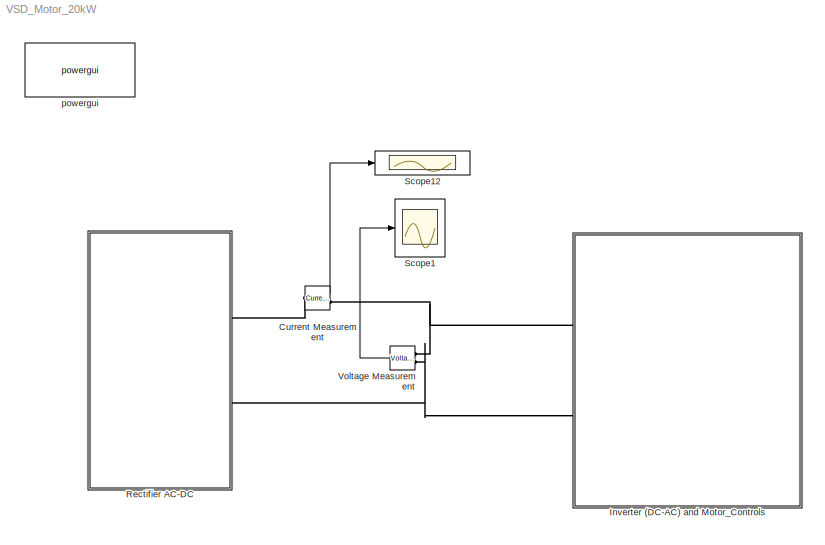
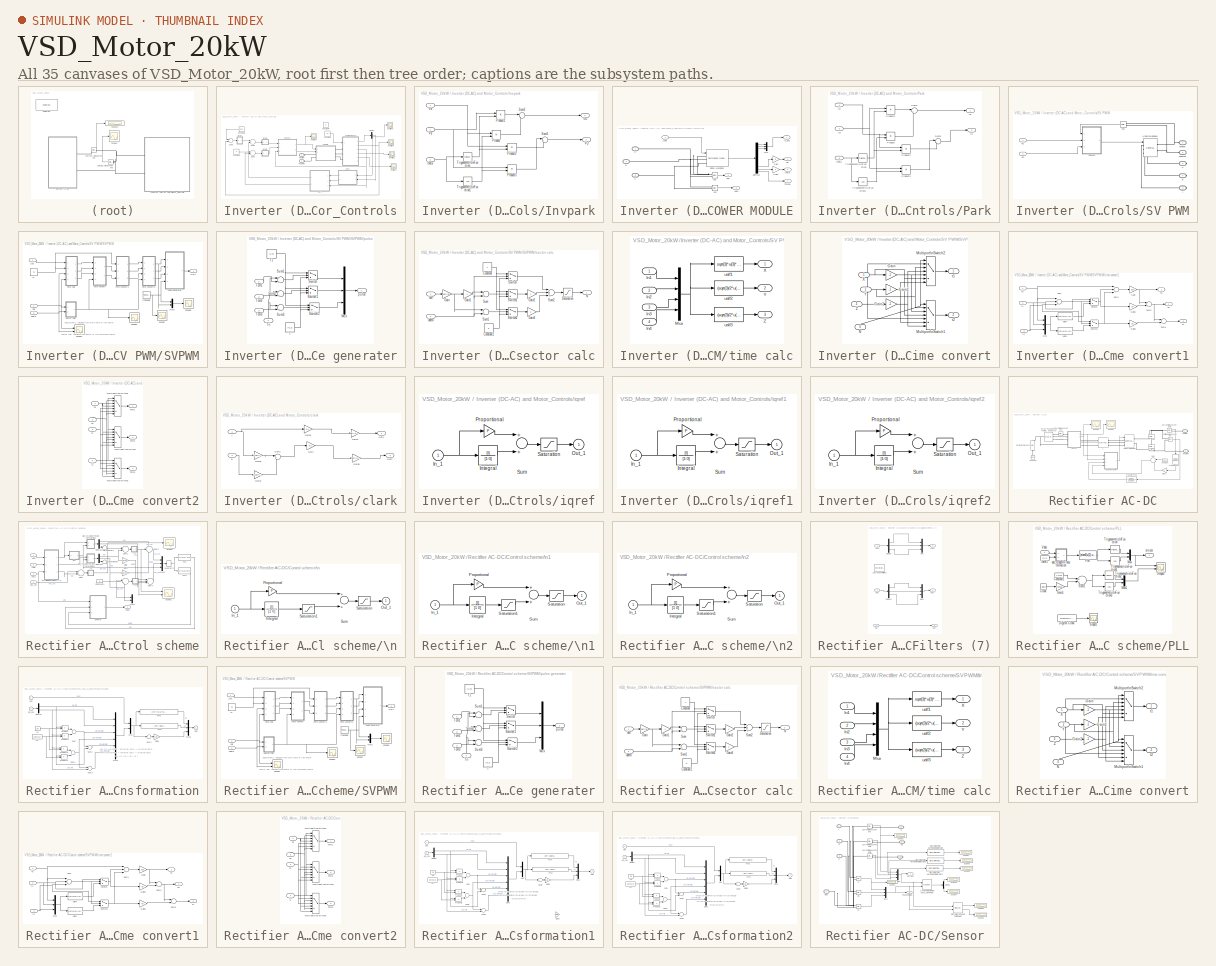
[diagram: thumbnail index - all 35 canvases of the model, root first then tree order]
MODEL VSD_Motor_20kW
KIND model
BLOCK [Reference] Current Measurement  REF=powerlib/Measurements/Current Measurement
  OutputType = Complex
  PSBequivalent = 0
  PhasorSimulation = off
  Ports = [0, 1, 0, 0, 0, 1, 1]
  SID = 329
  SourceBlock = powerlib/Measurements/Current Measurement
  SourceProductBaseCode = PS
  SourceProductName = Simscape Electrical
  SourceType = Current Measurement
BLOCK [SubSystem] Inverter (DC-AC) and Motor_Controls
  Ports = [0, 0, 0, 0, 0, 2]
  RequestExecContextInheritance = off
  SID = 335
BLOCK [Constant] Inverter (DC-AC) and Motor_Controls/Constant1
  SID = 336
  Value = -2
BLOCK [Constant] Inverter (DC-AC) and Motor_Controls/Constant2
  SID = 337
  Value = 500
BLOCK [Constant] Inverter (DC-AC) and Motor_Controls/Constant3
  SID = 338
  Value = 16
BLOCK [Constant] Inverter (DC-AC) and Motor_Controls/Constant4
  SID = 545
  Value = 8
BLOCK [Demux] Inverter (DC-AC) and Motor_Controls/Demux
  DisplayOption = bar
  Outputs = 3
  Ports = [1, 3]
  SID = 339
BLOCK [SubSystem] Inverter (DC-AC) and Motor_Controls/Invpark
  Ports = [3, 2]
  RequestExecContextInheritance = off
  SID = 340
BLOCK [Product] Inverter (DC-AC) and Motor_Controls/Invpark/Product
  InputSameDT = off
  OutDataTypeStr = Inherit: Inherit via internal rule
  Ports = [2, 1]
  SID = 344
  SaturateOnIntegerOverflow = off
BLOCK [Product] Inverter (DC-AC) and Motor_Controls/Invpark/Product1
  InputSameDT = off
  OutDataTypeStr = Inherit: Inherit via internal rule
  Ports = [2, 1]
  SID = 345
  SaturateOnIntegerOverflow = off
BLOCK [Product] Inverter (DC-AC) and Motor_Controls/Invpark/Product2
  InputSameDT = off
  OutDataTypeStr = Inherit: Inherit via internal rule
  Ports = [2, 1]
  SID = 346
  SaturateOnIntegerOverflow = off
BLOCK [Product] Inverter (DC-AC) and Motor_Controls/Invpark/Product3
  InputSameDT = off
  OutDataTypeStr = Inherit: Inherit via internal rule
  Ports = [2, 1]
  SID = 347
  SaturateOnIntegerOverflow = off
BLOCK [Sum] Inverter (DC-AC) and Motor_Controls/Invpark/Sum2
  IconShape = round
  InputSameDT = off
  Inputs = |-+
  OutDataTypeStr = Inherit: Inherit via internal rule
  Ports = [2, 1]
  SID = 348
  SaturateOnIntegerOverflow = off
BLOCK [Sum] Inverter (DC-AC) and Motor_Controls/Invpark/Sum3
  IconShape = round
  InputSameDT = off
  Inputs = |++
  OutDataTypeStr = Inherit: Inherit via internal rule
  Ports = [2, 1]
  SID = 349
  SaturateOnIntegerOverflow = off
BLOCK [Trigonometry] Inverter (DC-AC) and Motor_Controls/Invpark/Trigonometric\nFunction
  Ports = [1, 1]
  SID = 350
BLOCK [Trigonometry] Inverter (DC-AC) and Motor_Controls/Invpark/Trigonometric\nFunction1
  Operator = cos
  Ports = [1, 1]
  SID = 351
BLOCK [Outport] Inverter (DC-AC) and Motor_Controls/Invpark/VD
  IconDisplay = Port number
  SID = 352
BLOCK [Outport] Inverter (DC-AC) and Motor_Controls/Invpark/VQ
  IconDisplay = Port number
  Port = 2
  SID = 353
BLOCK [Inport] Inverter (DC-AC) and Motor_Controls/Invpark/Vd
  IconDisplay = Port number
  SID = 341
BLOCK [Inport] Inverter (DC-AC) and Motor_Controls/Invpark/Vq
  IconDisplay = Port number
  Port = 2
  SID = 342
BLOCK [Inport] Inverter (DC-AC) and Motor_Controls/Invpark/theta
  IconDisplay = Port number
  Port = 3
  SID = 343
BLOCK [PMIOPort] Inverter (DC-AC) and Motor_Controls/Negative
  Port = 2
  SID = 537
  Side = Left
  Tag = PMCPort
BLOCK [SubSystem] Inverter (DC-AC) and Motor_Controls/POWER MODULE
  Ports = [1, 6, 0, 0, 0, 3]
  RequestExecContextInheritance = off
  SID = 354
BLOCK [PMIOPort] Inverter (DC-AC) and Motor_Controls/POWER MODULE/A
  SID = 363
  Side = Left
  Tag = PMCPort
BLOCK [PMIOPort] Inverter (DC-AC) and Motor_Controls/POWER MODULE/B
  Port = 2
  SID = 364
  Side = Left
  Tag = PMCPort
BLOCK [PMIOPort] Inverter (DC-AC) and Motor_Controls/POWER MODULE/C
  Port = 3
  SID = 365
  Side = Left
  Tag = PMCPort
BLOCK [Demux] Inverter (DC-AC) and Motor_Controls/POWER MODULE/Demux2
  DisplayOption = bar
  Outputs = 13
  Ports = [1, 13]
  SID = 356
BLOCK [Gain] Inverter (DC-AC) and Motor_Controls/POWER MODULE/Gain
  Gain = 8
  OutDataTypeStr = Inherit: Inherit via internal rule
  ParamDataTypeStr = Inherit: Inherit via internal rule
  SID = 357
  SaturateOnIntegerOverflow = off
BLOCK [Gain] Inverter (DC-AC) and Motor_Controls/POWER MODULE/Gain1
  Gain = 8
  OutDataTypeStr = Inherit: Inherit via internal rule
  ParamDataTypeStr = Inherit: Inherit via internal rule
  SID = 358
  SaturateOnIntegerOverflow = off
BLOCK [Outport] Inverter (DC-AC) and Motor_Controls/POWER MODULE/Is_abc
  IconDisplay = Port number
  SID = 366
BLOCK [Inport] Inverter (DC-AC) and Motor_Controls/POWER MODULE/Load
  IconDisplay = Port number
  SID = 355
BLOCK [Mux] Inverter (DC-AC) and Motor_Controls/POWER MODULE/Mux
  DisplayOption = bar
  Inputs = 3
  Ports = [3, 1]
  SID = 359
BLOCK [Reference] Inverter (DC-AC) and Motor_Controls/POWER MODULE/SRPM Machine2  REF=powerlib/Machines/Permanent Magnet\nSynchronous Machine
  AttributesFormatString = \\n
  Flat = 120
  Flux = 0.1
  FluxDistribution = Sinusoidal
  Inductance = 8.5e-3
  InitialConditions = [0,0, 0,0]
  InitialConditions5ph = [0 0 0 0 0 0]
  La = 0.000395
  MachineConstant = Flux linkage established by magnets (V.s)
  MeasurementBus = off
  Mechanical = [ 2e-4, 0,  8 ]
  MechanicalLoad = Torque Tm
  NbPhases = 3
  PolePairs = 4
  Ports = [1, 1, 0, 0, 0, 3]
  PresetModel = No
  RefAngle = 90 degrees behind phase A axis (modified Park)
  Resistance = 0.7
  RotorType = Round
  SID = 360
  ShowDetailedParameters = on
  SourceBlock = powerlib/Machines/Permanent Magnet\nSynchronous Machine
  SourceProductBaseCode = PS
  SourceProductName = Simscape Electrical
  SourceType = Permanent Magnet Synchronous Machine
  TorqueCst = 1.2
  TsBlock = -1
  TsPowergui = 0
  VoltageCst = 145.1039
  dqInductances = [0.01 0.01]
BLOCK [Outport] Inverter (DC-AC) and Motor_Controls/POWER MODULE/Torque
  IconDisplay = Port number
  Port = 4
  SID = 369
BLOCK [Outport] Inverter (DC-AC) and Motor_Controls/POWER MODULE/Uab
  IconDisplay = Port number
  Port = 5
  SID = 370
BLOCK [Outport] Inverter (DC-AC) and Motor_Controls/POWER MODULE/Uabc
  IconDisplay = Port number
  Port = 6
  SID = 371
BLOCK [Outport] Inverter (DC-AC) and Motor_Controls/POWER MODULE/theta
  IconDisplay = Port number
  Port = 3
  SID = 368
BLOCK [Reference] Inverter (DC-AC) and Motor_Controls/POWER MODULE/vab  REF=powerlib/Measurements/Voltage Measurement
  AttributesFormatString = \\n
  OutputType = Magnitude
  PSBequivalent = 0
  PhasorSimulation = off
  Ports = [0, 1, 0, 0, 0, 2]
  SID = 361
  SourceBlock = powerlib/Measurements/Voltage Measurement
  SourceProductBaseCode = PS
  SourceProductName = Simscape Electrical
  SourceType = Voltage Measurement
  Tag = PoWeRsYsTeMmEaSuReMeNt
BLOCK [Reference] Inverter (DC-AC) and Motor_Controls/POWER MODULE/vbc  REF=powerlib/Measurements/Voltage Measurement
  AttributesFormatString = \\n
  OutputType = Magnitude
  PSBequivalent = 0
  PhasorSimulation = off
  Ports = [0, 1, 0, 0, 0, 2]
  SID = 362
  SourceBlock = powerlib/Measurements/Voltage Measurement
  SourceProductBaseCode = PS
  SourceProductName = Simscape Electrical
  SourceType = Voltage Measurement
  Tag = PoWeRsYsTeMmEaSuReMeNt
BLOCK [Outport] Inverter (DC-AC) and Motor_Controls/POWER MODULE/we
  IconDisplay = Port number
  Port = 2
  SID = 367
BLOCK [SubSystem] Inverter (DC-AC) and Motor_Controls/Park
  Ports = [3, 2]
  RequestExecContextInheritance = off
  SID = 372
BLOCK [Inport] Inverter (DC-AC) and Motor_Controls/Park/IQ
  IconDisplay = Port number
  Port = 2
  SID = 374
BLOCK [Product] Inverter (DC-AC) and Motor_Controls/Park/Product
  InputSameDT = off
  OutDataTypeStr = Inherit: Inherit via internal rule
  Ports = [2, 1]
  SID = 376
  SaturateOnIntegerOverflow = off
BLOCK [Product] Inverter (DC-AC) and Motor_Controls/Park/Product1
  InputSameDT = off
  OutDataTypeStr = Inherit: Inherit via internal rule
  Ports = [2, 1]
  SID = 377
  SaturateOnIntegerOverflow = off
BLOCK [Product] Inverter (DC-AC) and Motor_Controls/Park/Product2
  InputSameDT = off
  OutDataTypeStr = Inherit: Inherit via internal rule
  Ports = [2, 1]
  SID = 378
  SaturateOnIntegerOverflow = off
BLOCK [Product] Inverter (DC-AC) and Motor_Controls/Park/Product3
  InputSameDT = off
  OutDataTypeStr = Inherit: Inherit via internal rule
  Ports = [2, 1]
  SID = 379
  SaturateOnIntegerOverflow = off
BLOCK [Sum] Inverter (DC-AC) and Motor_Controls/Park/Sum1
  IconShape = round
  InputSameDT = off
  Inputs = |++
  OutDataTypeStr = Inherit: Inherit via internal rule
  Ports = [2, 1]
  SID = 380
  SaturateOnIntegerOverflow = off
BLOCK [Sum] Inverter (DC-AC) and Motor_Controls/Park/Sum2
  IconShape = round
  InputSameDT = off
  Inputs = |+-
  OutDataTypeStr = Inherit: Inherit via internal rule
  Ports = [2, 1]
  SID = 381
  SaturateOnIntegerOverflow = off
BLOCK [Trigonometry] Inverter (DC-AC) and Motor_Controls/Park/Trigonometric\nFunction
  Ports = [1, 1]
  SID = 382
BLOCK [Trigonometry] Inverter (DC-AC) and Motor_Controls/Park/Trigonometric\nFunction1
  Operator = cos
  Ports = [1, 1]
  SID = 383
BLOCK [Inport] Inverter (DC-AC) and Motor_Controls/Park/iD
  IconDisplay = Port number
  SID = 373
BLOCK [Outport] Inverter (DC-AC) and Motor_Controls/Park/id
  IconDisplay = Port number
  SID = 384
BLOCK [Outport] Inverter (DC-AC) and Motor_Controls/Park/iq
  IconDisplay = Port number
  Port = 2
  SID = 385
BLOCK [Inport] Inverter (DC-AC) and Motor_Controls/Park/theta
  IconDisplay = Port number
  Port = 3
  SID = 375
BLOCK [PMIOPort] Inverter (DC-AC) and Motor_Controls/Positive
  SID = 536
  Side = Left
  Tag = PMCPort
BLOCK [SubSystem] Inverter (DC-AC) and Motor_Controls/SV PWM
  Ports = [2, 0, 0, 0, 0, 2, 3]
  RequestExecContextInheritance = off
  SID = 386
BLOCK [PMIOPort] Inverter (DC-AC) and Motor_Controls/SV PWM/A
  Port = 3
  SID = 493
  Side = Right
  Tag = PMCPort
BLOCK [PMIOPort] Inverter (DC-AC) and Motor_Controls/SV PWM/B
  Port = 4
  SID = 494
  Side = Right
  Tag = PMCPort
BLOCK [PMIOPort] Inverter (DC-AC) and Motor_Controls/SV PWM/C
  Port = 5
  SID = 495
  Side = Right
  Tag = PMCPort
BLOCK [PMIOPort] Inverter (DC-AC) and Motor_Controls/SV PWM/Positive
  SID = 491
  Side = Left
  Tag = PMCPort
BLOCK [SubSystem] Inverter (DC-AC) and Motor_Controls/SV PWM/SVPWM
  Ports = [3, 1]
  RequestExecContextInheritance = off
  SID = 389
BLOCK [Mux] Inverter (DC-AC) and Motor_Controls/SV PWM/SVPWM/Mux1
  DisplayOption = bar
  Inputs = 2
  Ports = [2, 1]
  SID = 393
BLOCK [Outport] Inverter (DC-AC) and Motor_Controls/SV PWM/SVPWM/Out1
  IconDisplay = Port number
  SID = 486
BLOCK [Scope] Inverter (DC-AC) and Motor_Controls/SV PWM/SVPWM/Scope1
  Floating = off
  NumInputPorts = 2
  Ports = [2]
  SID = 394
  ScopeSpecificationString = C++SS(StrPVP('Location','[39, 79, 529, 703]'),StrPVP('Open','off'),StrPVP('ZoomMode','yonly'),MxPVP('AxesTitles',53,'struct(''axes1'',''%<SignalLabel>'',''axes2'',''%<SignalLabel>'')'),StrPVP('TimeRange','0.1'),StrPVP('YMin','-150~-100'),StrPVP('YMax','150~100'),StrPVP('SaveName','psb1phPWM2_str1'),StrPVP('DataFormat','StructureWithTime'),StrPVP('LimitDataPoints','off'),StrPVP('MaxDataPoints','500...<+104ch>
BLOCK [Scope] Inverter (DC-AC) and Motor_Controls/SV PWM/SVPWM/Scope2
  Floating = off
  NumInputPorts = 1
  Ports = [1]
  SID = 395
  ScopeSpecificationString = C++SS(StrPVP('Location','[137, 235, 825, 600]'),StrPVP('Open','off'),StrPVP('ZoomMode','xonly'),MxPVP('AxesTitles',53,'struct(''axes1'',''%<SignalLabel>'')'),StrPVP('TimeRange','0.4'),StrPVP('YMin','1'),StrPVP('YMax','6'),StrPVP('SaveName','psb1phPWM2_str'),StrPVP('DataFormat','StructureWithTime'),StrPVP('LimitDataPoints','off'),StrPVP('MaxDataPoints','500000'),StrPVP('BlockParamSampleTime','0'),S...<+62ch>
BLOCK [Scope] Inverter (DC-AC) and Motor_Controls/SV PWM/SVPWM/Scope5
  Floating = off
  NumInputPorts = 1
  Ports = [1]
  SID = 396
  ScopeSpecificationString = C++SS(StrPVP('Location','[39, 79, 744, 507]'),StrPVP('Open','off'),StrPVP('ZoomMode','xonly'),MxPVP('AxesTitles',53,'struct(''axes1'',''%<SignalLabel>'')'),StrPVP('TimeRange','0.1'),StrPVP('YMin','-5e-005'),StrPVP('YMax','0.00025'),StrPVP('SaveName','psb1phPWM2_str4'),StrPVP('DataFormat','StructureWithTime'),StrPVP('LimitDataPoints','off'),StrPVP('MaxDataPoints','500000'),StrPVP('BlockParamSampleT...<+73ch>
BLOCK [Scope] Inverter (DC-AC) and Motor_Controls/SV PWM/SVPWM/Scope7
  Floating = off
  NumInputPorts = 1
  Ports = [1]
  SID = 397
  ScopeSpecificationString = C++SS(StrPVP('Location','[94, 208, 486, 425]'),StrPVP('Open','off'),StrPVP('ZoomMode','xonly'),MxPVP('AxesTitles',53,'struct(''axes1'',''%<SignalLabel>'')'),StrPVP('TimeRange','0.1'),StrPVP('YMin','-1e-005'),StrPVP('YMax','0.0002'),StrPVP('SaveName','psb1phPWM2_str6'),StrPVP('DataFormat','StructureWithTime'),StrPVP('LimitDataPoints','off'),StrPVP('MaxDataPoints','500000'),StrPVP('BlockParamSampleT...<+73ch>
BLOCK [Constant] Inverter (DC-AC) and Motor_Controls/SV PWM/SVPWM/T1
  SID = 398
  Value = Ts
BLOCK [Inport] Inverter (DC-AC) and Motor_Controls/SV PWM/SVPWM/Udc
  IconDisplay = Port number
  SID = 390
BLOCK [Inport] Inverter (DC-AC) and Motor_Controls/SV PWM/SVPWM/Valf
  IconDisplay = Port number
  Port = 2
  SID = 391
BLOCK [Inport] Inverter (DC-AC) and Motor_Controls/SV PWM/SVPWM/Vbeta
  IconDisplay = Port number
  Port = 3
  SID = 392
BLOCK [SubSystem] Inverter (DC-AC) and Motor_Controls/SV PWM/SVPWM/pulse generater
  Ports = [4, 1]
  RequestExecContextInheritance = off
  SID = 399
BLOCK [Mux] Inverter (DC-AC) and Motor_Controls/SV PWM/SVPWM/pulse generater/Mux
  DisplayOption = bar
  Inputs = 3
  Ports = [3, 1]
  SID = 404
BLOCK [Sum] Inverter (DC-AC) and Motor_Controls/SV PWM/SVPWM/pulse generater/Sum1
  InputSameDT = off
  Inputs = |+-
  OutDataTypeStr = Inherit: Inherit via internal rule
  Ports = [2, 1]
  SID = 405
  SaturateOnIntegerOverflow = off
BLOCK [Sum] Inverter (DC-AC) and Motor_Controls/SV PWM/SVPWM/pulse generater/Sum2
  InputSameDT = off
  Inputs = |+-
  OutDataTypeStr = Inherit: Inherit via internal rule
  Ports = [2, 1]
  SID = 406
  SaturateOnIntegerOverflow = off
BLOCK [Sum] Inverter (DC-AC) and Motor_Controls/SV PWM/SVPWM/pulse generater/Sum3
  InputSameDT = off
  Inputs = |+-
  OutDataTypeStr = Inherit: Inherit via internal rule
  Ports = [2, 1]
  SID = 407
  SaturateOnIntegerOverflow = off
BLOCK [Switch] Inverter (DC-AC) and Motor_Controls/SV PWM/SVPWM/pulse generater/Switch
  InputSameDT = off
  SID = 408
  SaturateOnIntegerOverflow = off
BLOCK [Switch] Inverter (DC-AC) and Motor_Controls/SV PWM/SVPWM/pulse generater/Switch1
  InputSameDT = off
  SID = 409
  SaturateOnIntegerOverflow = off
BLOCK [Switch] Inverter (DC-AC) and Motor_Controls/SV PWM/SVPWM/pulse generater/Switch2
  InputSameDT = off
  SID = 410
  SaturateOnIntegerOverflow = off
BLOCK [Constant] Inverter (DC-AC) and Motor_Controls/SV PWM/SVPWM/pulse generater/T
  SID = 411
  Value = [0,1]
BLOCK [Constant] Inverter (DC-AC) and Motor_Controls/SV PWM/SVPWM/pulse generater/T1
  SID = 412
  Value = [1,0]
BLOCK [Inport] Inverter (DC-AC) and Motor_Controls/SV PWM/SVPWM/pulse generater/Tcm1
  IconDisplay = Port number
  SID = 400
BLOCK [Inport] Inverter (DC-AC) and Motor_Controls/SV PWM/SVPWM/pulse generater/Tcm2
  IconDisplay = Port number
  Port = 2
  SID = 401
BLOCK [Inport] Inverter (DC-AC) and Motor_Controls/SV PWM/SVPWM/pulse generater/Tcm3
  IconDisplay = Port number
  Port = 3
  SID = 402
BLOCK [Inport] Inverter (DC-AC) and Motor_Controls/SV PWM/SVPWM/pulse generater/Tri
  IconDisplay = Port number
  Port = 4
  SID = 403
BLOCK [Outport] Inverter (DC-AC) and Motor_Controls/SV PWM/SVPWM/pulse generater/pulse
  IconDisplay = Port number
  SID = 413
BLOCK [SubSystem] Inverter (DC-AC) and Motor_Controls/SV PWM/SVPWM/sector calc
  Ports = [2, 1]
  RequestExecContextInheritance = off
  SID = 414
BLOCK [Constant] Inverter (DC-AC) and Motor_Controls/SV PWM/SVPWM/sector calc/Constant
  SID = 417
BLOCK [Constant] Inverter (DC-AC) and Motor_Controls/SV PWM/SVPWM/sector calc/Constant1
  SID = 418
  Value = 0
BLOCK [Gain] Inverter (DC-AC) and Motor_Controls/SV PWM/SVPWM/sector calc/Gain
  Gain = sqrt(3)
  OutDataTypeStr = Inherit: Inherit via internal rule
  ParamDataTypeStr = Inherit: Inherit via internal rule
  SID = 419
  SaturateOnIntegerOverflow = off
BLOCK [Gain] Inverter (DC-AC) and Motor_Controls/SV PWM/SVPWM/sector calc/Gain1
  Gain = -1
  OutDataTypeStr = Inherit: Inherit via internal rule
  ParamDataTypeStr = Inherit: Inherit via internal rule
  SID = 420
  SaturateOnIntegerOverflow = off
BLOCK [Gain] Inverter (DC-AC) and Motor_Controls/SV PWM/SVPWM/sector calc/Gain2
  Gain = 4
  OutDataTypeStr = Inherit: Inherit via internal rule
  ParamDataTypeStr = Inherit: Inherit via internal rule
  SID = 421
  SaturateOnIntegerOverflow = off
BLOCK [Gain] Inverter (DC-AC) and Motor_Controls/SV PWM/SVPWM/sector calc/Gain3
  Gain = 2
  OutDataTypeStr = Inherit: Inherit via internal rule
  ParamDataTypeStr = Inherit: Inherit via internal rule
  SID = 422
  SaturateOnIntegerOverflow = off
BLOCK [Outport] Inverter (DC-AC) and Motor_Controls/SV PWM/SVPWM/sector calc/N
  IconDisplay = Port number
  SID = 430
BLOCK [Saturate] Inverter (DC-AC) and Motor_Controls/SV PWM/SVPWM/sector calc/Saturation
  InputPortMap = u0
  LowerLimit = 0
  Ports = [1, 1]
  SID = 423
  UpperLimit = 6
BLOCK [Sum] Inverter (DC-AC) and Motor_Controls/SV PWM/SVPWM/sector calc/Sum
  InputSameDT = off
  Inputs = |+-
  OutDataTypeStr = Inherit: Inherit via internal rule
  Ports = [2, 1]
  SID = 424
  SaturateOnIntegerOverflow = off
BLOCK [Sum] Inverter (DC-AC) and Motor_Controls/SV PWM/SVPWM/sector calc/Sum1
  InputSameDT = off
  Inputs = |+-
  OutDataTypeStr = Inherit: Inherit via internal rule
  Ports = [2, 1]
  SID = 425
  SaturateOnIntegerOverflow = off
BLOCK [Sum] Inverter (DC-AC) and Motor_Controls/SV PWM/SVPWM/sector calc/Sum2
  InputSameDT = off
  Inputs = |+++
  OutDataTypeStr = Inherit: Inherit via internal rule
  Ports = [3, 1]
  SID = 426
  SaturateOnIntegerOverflow = off
BLOCK [Switch] Inverter (DC-AC) and Motor_Controls/SV PWM/SVPWM/sector calc/Switch
  InputSameDT = off
  SID = 427
  SaturateOnIntegerOverflow = off
BLOCK [Switch] Inverter (DC-AC) and Motor_Controls/SV PWM/SVPWM/sector calc/Switch1
  InputSameDT = off
  SID = 428
  SaturateOnIntegerOverflow = off
BLOCK [Switch] Inverter (DC-AC) and Motor_Controls/SV PWM/SVPWM/sector calc/Switch2
  InputSameDT = off
  SID = 429
  SaturateOnIntegerOverflow = off
BLOCK [Inport] Inverter (DC-AC) and Motor_Controls/SV PWM/SVPWM/sector calc/ualf
  IconDisplay = Port number
  SID = 415
BLOCK [Inport] Inverter (DC-AC) and Motor_Controls/SV PWM/SVPWM/sector calc/ubeta
  IconDisplay = Port number
  Port = 2
  SID = 416
BLOCK [SubSystem] Inverter (DC-AC) and Motor_Controls/SV PWM/SVPWM/time calc
  Ports = [4, 3]
  RequestExecContextInheritance = off
  SID = 431
BLOCK [Inport] Inverter (DC-AC) and Motor_Controls/SV PWM/SVPWM/time calc/In1
  IconDisplay = Port number
  SID = 432
BLOCK [Inport] Inverter (DC-AC) and Motor_Controls/SV PWM/SVPWM/time calc/In2
  IconDisplay = Port number
  Port = 2
  SID = 433
BLOCK [Inport] Inverter (DC-AC) and Motor_Controls/SV PWM/SVPWM/time calc/In3
  IconDisplay = Port number
  Port = 3
  SID = 434
BLOCK [Inport] Inverter (DC-AC) and Motor_Controls/SV PWM/SVPWM/time calc/In4
  IconDisplay = Port number
  Port = 4
  SID = 435
BLOCK [Mux] Inverter (DC-AC) and Motor_Controls/SV PWM/SVPWM/time calc/Mux
  DisplayOption = bar
  Ports = [4, 1]
  SID = 436
BLOCK [Outport] Inverter (DC-AC) and Motor_Controls/SV PWM/SVPWM/time calc/X
  IconDisplay = Port number
  SID = 440
BLOCK [Outport] Inverter (DC-AC) and Motor_Controls/SV PWM/SVPWM/time calc/Y
  IconDisplay = Port number
  Port = 2
  SID = 441
BLOCK [Outport] Inverter (DC-AC) and Motor_Controls/SV PWM/SVPWM/time calc/Z
  IconDisplay = Port number
  Port = 3
  SID = 442
BLOCK [Fcn] Inverter (DC-AC) and Motor_Controls/SV PWM/SVPWM/time calc/ualf1
  Expr = sqrt(3)*u(3)*u(2)/u(1)
  SID = 437
BLOCK [Fcn] Inverter (DC-AC) and Motor_Controls/SV PWM/SVPWM/time calc/ualf2
  Expr = (sqrt(3)/2*u(3)+1.5*u(4))*u(2)/u(1)
  SID = 438
BLOCK [Fcn] Inverter (DC-AC) and Motor_Controls/SV PWM/SVPWM/time calc/ualf3
  Expr = (sqrt(3)/2*u(3)-1.5*u(4))*u(2)/u(1)
  SID = 439
BLOCK [SubSystem] Inverter (DC-AC) and Motor_Controls/SV PWM/SVPWM/time convert
  Ports = [4, 2]
  RequestExecContextInheritance = off
  SID = 443
BLOCK [Gain] Inverter (DC-AC) and Motor_Controls/SV PWM/SVPWM/time convert/Gain
  Gain = -1
  OutDataTypeStr = Inherit: Inherit via internal rule
  ParamDataTypeStr = Inherit: Inherit via internal rule
  SID = 448
  SaturateOnIntegerOverflow = off
BLOCK [Gain] Inverter (DC-AC) and Motor_Controls/SV PWM/SVPWM/time convert/Gain1
  Gain = -1
  OutDataTypeStr = Inherit: Inherit via internal rule
  ParamDataTypeStr = Inherit: Inherit via internal rule
  SID = 449
  SaturateOnIntegerOverflow = off
BLOCK [Gain] Inverter (DC-AC) and Motor_Controls/SV PWM/SVPWM/time convert/Gain2
  Gain = -1
  OutDataTypeStr = Inherit: Inherit via internal rule
  ParamDataTypeStr = Inherit: Inherit via internal rule
  SID = 450
  SaturateOnIntegerOverflow = off
BLOCK [MultiPortSwitch] Inverter (DC-AC) and Motor_Controls/SV PWM/SVPWM/time convert/Multiport\nSwitch1
  InputSameDT = off
  Inputs = 6
  Ports = [7, 1]
  SID = 451
  SaturateOnIntegerOverflow = off
BLOCK [MultiPortSwitch] Inverter (DC-AC) and Motor_Controls/SV PWM/SVPWM/time convert/Multiport\nSwitch2
  InputSameDT = off
  Inputs = 6
  Ports = [7, 1]
  SID = 452
  SaturateOnIntegerOverflow = off
BLOCK [Inport] Inverter (DC-AC) and Motor_Controls/SV PWM/SVPWM/time convert/N
  IconDisplay = Port number
  Port = 4
  SID = 447
BLOCK [Inport] Inverter (DC-AC) and Motor_Controls/SV PWM/SVPWM/time convert/X
  IconDisplay = Port number
  SID = 444
BLOCK [Inport] Inverter (DC-AC) and Motor_Controls/SV PWM/SVPWM/time convert/Y
  IconDisplay = Port number
  Port = 2
  SID = 445
BLOCK [Inport] Inverter (DC-AC) and Motor_Controls/SV PWM/SVPWM/time convert/Z
  IconDisplay = Port number
  Port = 3
  SID = 446
BLOCK [Outport] Inverter (DC-AC) and Motor_Controls/SV PWM/SVPWM/time convert/t1
  IconDisplay = Port number
  SID = 453
BLOCK [Outport] Inverter (DC-AC) and Motor_Controls/SV PWM/SVPWM/time convert/t2
  IconDisplay = Port number
  Port = 2
  SID = 454
BLOCK [SubSystem] Inverter (DC-AC) and Motor_Controls/SV PWM/SVPWM/time convert1
  Ports = [3, 3]
  RequestExecContextInheritance = off
  SID = 455
BLOCK [Gain] Inverter (DC-AC) and Motor_Controls/SV PWM/SVPWM/time convert1/Gain
  Gain = 0.25
  OutDataTypeStr = Inherit: Inherit via internal rule
  ParamDataTypeStr = Inherit: Inherit via internal rule
  SID = 459
  SaturateOnIntegerOverflow = off
BLOCK [Gain] Inverter (DC-AC) and Motor_Controls/SV PWM/SVPWM/time convert1/Gain1
  Gain = 0.5
  OutDataTypeStr = Inherit: Inherit via internal rule
  ParamDataTypeStr = Inherit: Inherit via internal rule
  SID = 460
  SaturateOnIntegerOverflow = off
BLOCK [Gain] Inverter (DC-AC) and Motor_Controls/SV PWM/SVPWM/time convert1/Gain2
  Gain = 0.5
  OutDataTypeStr = Inherit: Inherit via internal rule
  ParamDataTypeStr = Inherit: Inherit via internal rule
  SID = 461
  SaturateOnIntegerOverflow = off
BLOCK [Mux] Inverter (DC-AC) and Motor_Controls/SV PWM/SVPWM/time convert1/Mux
  DisplayOption = bar
  Inputs = 3
  Ports = [3, 1]
  SID = 462
BLOCK [Sum] Inverter (DC-AC) and Motor_Controls/SV PWM/SVPWM/time convert1/Sum
  InputSameDT = off
  Inputs = |+--
  OutDataTypeStr = Inherit: Inherit via internal rule
  Ports = [3, 1]
  SID = 463
  SaturateOnIntegerOverflow = off
BLOCK [Sum] Inverter (DC-AC) and Motor_Controls/SV PWM/SVPWM/time convert1/Sum1
  InputSameDT = off
  Inputs = |+--
  OutDataTypeStr = Inherit: Inherit via internal rule
  Ports = [3, 1]
  SID = 464
  SaturateOnIntegerOverflow = off
BLOCK [Sum] Inverter (DC-AC) and Motor_Controls/SV PWM/SVPWM/time convert1/Sum2
  InputSameDT = off
  Inputs = |++
  OutDataTypeStr = Inherit: Inherit via internal rule
  Ports = [2, 1]
  SID = 465
  SaturateOnIntegerOverflow = off
BLOCK [Sum] Inverter (DC-AC) and Motor_Controls/SV PWM/SVPWM/time convert1/Sum3
  InputSameDT = off
  Inputs = |++
  OutDataTypeStr = Inherit: Inherit via internal rule
  Ports = [2, 1]
  SID = 466
  SaturateOnIntegerOverflow = off
BLOCK [Switch] Inverter (DC-AC) and Motor_Controls/SV PWM/SVPWM/time convert1/Switch
  InputSameDT = off
  SID = 467
  SaturateOnIntegerOverflow = off
BLOCK [Switch] Inverter (DC-AC) and Motor_Controls/SV PWM/SVPWM/time convert1/Switch1
  InputSameDT = off
  SID = 468
  SaturateOnIntegerOverflow = off
BLOCK [Outport] Inverter (DC-AC) and Motor_Controls/SV PWM/SVPWM/time convert1/Ta
  IconDisplay = Port number
  SID = 471
BLOCK [Outport] Inverter (DC-AC) and Motor_Controls/SV PWM/SVPWM/time convert1/Tb
  IconDisplay = Port number
  Port = 2
  SID = 472
BLOCK [Outport] Inverter (DC-AC) and Motor_Controls/SV PWM/SVPWM/time convert1/Tc
  IconDisplay = Port number
  Port = 3
  SID = 473
BLOCK [Inport] Inverter (DC-AC) and Motor_Controls/SV PWM/SVPWM/time convert1/Ts
  IconDisplay = Port number
  SID = 456
BLOCK [Inport] Inverter (DC-AC) and Motor_Controls/SV PWM/SVPWM/time convert1/t1
  IconDisplay = Port number
  Port = 2
  SID = 457
BLOCK [Inport] Inverter (DC-AC) and Motor_Controls/SV PWM/SVPWM/time convert1/t2
  IconDisplay = Port number
  Port = 3
  SID = 458
BLOCK [Fcn] Inverter (DC-AC) and Motor_Controls/SV PWM/SVPWM/time convert1/ualf1
  Expr = u(3)*u(1)/(u(2)+u(3))
  SID = 469
BLOCK [Fcn] Inverter (DC-AC) and Motor_Controls/SV PWM/SVPWM/time convert1/ualf4
  Expr = u(2)*u(1)/(u(2)+u(3))
  SID = 470
BLOCK [SubSystem] Inverter (DC-AC) and Motor_Controls/SV PWM/SVPWM/time convert2
  Ports = [4, 3]
  RequestExecContextInheritance = off
  SID = 474
BLOCK [MultiPortSwitch] Inverter (DC-AC) and Motor_Controls/SV PWM/SVPWM/time convert2/Multiport\nSwitch1
  InputSameDT = off
  Inputs = 6
  Ports = [7, 1]
  SID = 479
  SaturateOnIntegerOverflow = off
BLOCK [MultiPortSwitch] Inverter (DC-AC) and Motor_Controls/SV PWM/SVPWM/time convert2/Multiport\nSwitch2
  InputSameDT = off
  Inputs = 6
  Ports = [7, 1]
  SID = 480
  SaturateOnIntegerOverflow = off
BLOCK [MultiPortSwitch] Inverter (DC-AC) and Motor_Controls/SV PWM/SVPWM/time convert2/Multiport\nSwitch3
  InputSameDT = off
  Inputs = 6
  Ports = [7, 1]
  SID = 481
  SaturateOnIntegerOverflow = off
BLOCK [Inport] Inverter (DC-AC) and Motor_Controls/SV PWM/SVPWM/time convert2/N
  IconDisplay = Port number
  Port = 4
  SID = 478
BLOCK [Inport] Inverter (DC-AC) and Motor_Controls/SV PWM/SVPWM/time convert2/Ta
  IconDisplay = Port number
  SID = 475
BLOCK [Inport] Inverter (DC-AC) and Motor_Controls/SV PWM/SVPWM/time convert2/Tb
  IconDisplay = Port number
  Port = 2
  SID = 476
BLOCK [Inport] Inverter (DC-AC) and Motor_Controls/SV PWM/SVPWM/time convert2/Tc
  IconDisplay = Port number
  Port = 3
  SID = 477
BLOCK [Outport] Inverter (DC-AC) and Motor_Controls/SV PWM/SVPWM/time convert2/Tcm1
  IconDisplay = Port number
  SID = 482
BLOCK [Outport] Inverter (DC-AC) and Motor_Controls/SV PWM/SVPWM/time convert2/Tcm2
  IconDisplay = Port number
  Port = 2
  SID = 483
BLOCK [Outport] Inverter (DC-AC) and Motor_Controls/SV PWM/SVPWM/time convert2/Tcm3
  IconDisplay = Port number
  Port = 3
  SID = 484
BLOCK [Reference] Inverter (DC-AC) and Motor_Controls/SV PWM/SVPWM/triangular  REF=simulink/Sources/Repeating\nSequence
  Ports = [0, 1]
  SID = 485
  SourceBlock = simulink/Sources/Repeating\nSequence
  SourceProductBaseCode = SL
  SourceProductName = Simulink
  SourceType = Repeating table
  rep_seq_t = [0 0.5 1]*Ts
  rep_seq_y = [0 0.5 0]*Ts
BLOCK [Reference] Inverter (DC-AC) and Motor_Controls/SV PWM/Universal Bridge1  REF=powerlib/Power\nElectronics/Universal Bridge
  Arms = 3
  Device = MOSFET / Diodes
  ForwardVoltage = 0
  ForwardVoltages = [  0  0  ]
  GTOparameters = [ 10e-6 , 20e-6 ]
  IGBTparameters = [ 1e-6 , 2e-6 ]
  Lon = 0
  Measurements = None
  Measurements_2 = None
  Ports = [1, 0, 0, 0, 0, 3, 2]
  Ron = 1e-3
  SID = 489
  SnubberCapacitance = inf
  SnubberResistance = 1e5
  SourceBlock = powerlib/Power\nElectronics/Universal Bridge
  SourceProductBaseCode = PS
  SourceProductName = Simscape Electrical
  SourceType = Universal Bridge
  converterType = Rectifier
BLOCK [Inport] Inverter (DC-AC) and Motor_Controls/SV PWM/VD
  IconDisplay = Port number
  SID = 387
BLOCK [Inport] Inverter (DC-AC) and Motor_Controls/SV PWM/VQ
  IconDisplay = Port number
  Port = 2
  SID = 388
BLOCK [PMIOPort] Inverter (DC-AC) and Motor_Controls/SV PWM/negative
  Port = 2
  SID = 492
  Side = Left
  Tag = PMCPort
BLOCK [Reference] Inverter (DC-AC) and Motor_Controls/SV PWM/vdc  REF=powerlib/Measurements/Voltage Measurement
  AttributesFormatString = \\n
  OutputType = Magnitude
  PSBequivalent = 0
  PhasorSimulation = off
  Ports = [0, 1, 0, 0, 0, 2]
  SID = 490
  SourceBlock = powerlib/Measurements/Voltage Measurement
  SourceProductBaseCode = PS
  SourceProductName = Simscape Electrical
  SourceType = Voltage Measurement
  Tag = PoWeRsYsTeMmEaSuReMeNt
BLOCK [Sum] Inverter (DC-AC) and Motor_Controls/Sum1
  Inputs = +-
  Ports = [2, 1]
  SID = 496
BLOCK [Sum] Inverter (DC-AC) and Motor_Controls/Sum2
  Inputs = +-
  Ports = [2, 1]
  SID = 497
BLOCK [Sum] Inverter (DC-AC) and Motor_Controls/Sum3
  Inputs = +-
  Ports = [2, 1]
  SID = 498
BLOCK [SubSystem] Inverter (DC-AC) and Motor_Controls/clark
  Ports = [2, 2]
  RequestExecContextInheritance = off
  SID = 499
BLOCK [Inport] Inverter (DC-AC) and Motor_Controls/clark/A
  IconDisplay = Port number
  SID = 500
BLOCK [Inport] Inverter (DC-AC) and Motor_Controls/clark/B
  IconDisplay = Port number
  Port = 2
  SID = 501
BLOCK [Gain] Inverter (DC-AC) and Motor_Controls/clark/Gain
  Gain = 3/2
  OutDataTypeStr = Inherit: Inherit via internal rule
  ParamDataTypeStr = Inherit: Inherit via internal rule
  SID = 502
  SaturateOnIntegerOverflow = off
BLOCK [Gain] Inverter (DC-AC) and Motor_Controls/clark/Gain1
  Gain = 2/sqrt(3)
  OutDataTypeStr = Inherit: Inherit via internal rule
  ParamDataTypeStr = Inherit: Inherit via internal rule
  SID = 503
  SaturateOnIntegerOverflow = off
BLOCK [Gain] Inverter (DC-AC) and Motor_Controls/clark/Gain2
  Gain = 1/sqrt(3)
  OutDataTypeStr = Inherit: Inherit via internal rule
  ParamDataTypeStr = Inherit: Inherit via internal rule
  SID = 504
  SaturateOnIntegerOverflow = off
BLOCK [Gain] Inverter (DC-AC) and Motor_Controls/clark/Gain3
  Gain = 3/2
  OutDataTypeStr = Inherit: Inherit via internal rule
  ParamDataTypeStr = Inherit: Inherit via internal rule
  SID = 505
  SaturateOnIntegerOverflow = off
BLOCK [Gain] Inverter (DC-AC) and Motor_Controls/clark/Gain4
  Gain = sqrt(2/3)
  OutDataTypeStr = Inherit: Inherit via internal rule
  ParamDataTypeStr = Inherit: Inherit via internal rule
  SID = 506
  SaturateOnIntegerOverflow = off
BLOCK [Gain] Inverter (DC-AC) and Motor_Controls/clark/Gain5
  Gain = sqrt(2/3)
  OutDataTypeStr = Inherit: Inherit via internal rule
  ParamDataTypeStr = Inherit: Inherit via internal rule
  SID = 507
  SaturateOnIntegerOverflow = off
BLOCK [Outport] Inverter (DC-AC) and Motor_Controls/clark/Out1
  IconDisplay = Port number
  SID = 509
BLOCK [Outport] Inverter (DC-AC) and Motor_Controls/clark/Out2
  IconDisplay = Port number
  Port = 2
  SID = 510
BLOCK [Sum] Inverter (DC-AC) and Motor_Controls/clark/Sum1
  IconShape = round
  InputSameDT = off
  Inputs = |++
  OutDataTypeStr = Inherit: Inherit via internal rule
  Ports = [2, 1]
  SID = 508
  SaturateOnIntegerOverflow = off
BLOCK [SubSystem] Inverter (DC-AC) and Motor_Controls/iqref
  Ports = [1, 1]
  RequestExecContextInheritance = off
  SID = 511
BLOCK [Inport] Inverter (DC-AC) and Motor_Controls/iqref/In_1
  IconDisplay = Port number
  SID = 512
BLOCK [TransferFcn] Inverter (DC-AC) and Motor_Controls/iqref/Integral
  Denominator = [1 0]
  Numerator = [I]
  SID = 513
BLOCK [Outport] Inverter (DC-AC) and Motor_Controls/iqref/Out_1
  IconDisplay = Port number
  InitialOutput = 0
  SID = 517
BLOCK [Gain] Inverter (DC-AC) and Motor_Controls/iqref/Proportional
  Gain = P
  SID = 514
BLOCK [Saturate] Inverter (DC-AC) and Motor_Controls/iqref/Saturation
  InputPortMap = u0
  LowerLimit = min
  Ports = [1, 1]
  SID = 515
  UpperLimit = max
BLOCK [Sum] Inverter (DC-AC) and Motor_Controls/iqref/Sum
  Ports = [2, 1]
  SID = 516
BLOCK [SubSystem] Inverter (DC-AC) and Motor_Controls/iqref1
  Ports = [1, 1]
  RequestExecContextInheritance = off
  SID = 518
BLOCK [Inport] Inverter (DC-AC) and Motor_Controls/iqref1/In_1
  IconDisplay = Port number
  SID = 519
BLOCK [TransferFcn] Inverter (DC-AC) and Motor_Controls/iqref1/Integral
  Denominator = [1 0]
  Numerator = [I]
  SID = 520
BLOCK [Outport] Inverter (DC-AC) and Motor_Controls/iqref1/Out_1
  IconDisplay = Port number
  InitialOutput = 0
  SID = 524
BLOCK [Gain] Inverter (DC-AC) and Motor_Controls/iqref1/Proportional
  Gain = P
  SID = 521
BLOCK [Saturate] Inverter (DC-AC) and Motor_Controls/iqref1/Saturation
  InputPortMap = u0
  LowerLimit = min
  Ports = [1, 1]
  SID = 522
  UpperLimit = max
BLOCK [Sum] Inverter (DC-AC) and Motor_Controls/iqref1/Sum
  Ports = [2, 1]
  SID = 523
BLOCK [SubSystem] Inverter (DC-AC) and Motor_Controls/iqref2
  Ports = [1, 1]
  RequestExecContextInheritance = off
  SID = 525
BLOCK [Inport] Inverter (DC-AC) and Motor_Controls/iqref2/In_1
  IconDisplay = Port number
  SID = 526
BLOCK [TransferFcn] Inverter (DC-AC) and Motor_Controls/iqref2/Integral
  Denominator = [1 0]
  Numerator = [I]
  SID = 527
BLOCK [Outport] Inverter (DC-AC) and Motor_Controls/iqref2/Out_1
  IconDisplay = Port number
  InitialOutput = 0
  SID = 531
BLOCK [Gain] Inverter (DC-AC) and Motor_Controls/iqref2/Proportional
  Gain = P
  SID = 528
BLOCK [Saturate] Inverter (DC-AC) and Motor_Controls/iqref2/Saturation
  InputPortMap = u0
  LowerLimit = min
  Ports = [1, 1]
  SID = 529
  UpperLimit = max
BLOCK [Sum] Inverter (DC-AC) and Motor_Controls/iqref2/Sum
  Ports = [2, 1]
  SID = 530
BLOCK [Scope] Inverter (DC-AC) and Motor_Controls/position1
  Floating = off
  NumInputPorts = 1
  Ports = [1]
  SID = 532
  ScopeSpecificationString = Simulink.scopes.TimeScopeBlockCfg('CurrentConfiguration', extmgr.ConfigurationSet(extmgr.Configuration('Core','General UI',true),extmgr.Configuration('Core','Source UI',true),extmgr.Configuration('Sources','WiredSimulink',true,'DataLoggingVariableName','ScopeData1','DataLoggingSaveFormat','Structure','DataLoggingDecimation','1','DataLoggingDecimateData',true),extmgr.Configuration('Visuals','Time D...<+1783ch>
BLOCK [Scope] Inverter (DC-AC) and Motor_Controls/position2
  Floating = off
  NumInputPorts = 1
  Ports = [1]
  SID = 533
  ScopeSpecificationString = Simulink.scopes.TimeScopeBlockCfg('CurrentConfiguration', extmgr.ConfigurationSet(extmgr.Configuration('Core','General UI',true),extmgr.Configuration('Core','Source UI',true),extmgr.Configuration('Sources','WiredSimulink',true,'DataLoggingVariableName','ScopeData4','DataLoggingSaveFormat','Structure','DataLoggingDecimation','1','DataLoggingDecimateData',true),extmgr.Configuration('Visuals','Time D...<+1748ch>
BLOCK [Scope] Inverter (DC-AC) and Motor_Controls/position3
  Floating = off
  NumInputPorts = 1
  Ports = [1]
  SID = 534
  ScopeSpecificationString = Simulink.scopes.TimeScopeBlockCfg('CurrentConfiguration', extmgr.ConfigurationSet(extmgr.Configuration('Core','General UI',true),extmgr.Configuration('Core','Source UI',true),extmgr.Configuration('Sources','WiredSimulink',true,'DataLoggingVariableName','ScopeData3','DataLoggingSaveFormat','Structure','DataLoggingDecimation','1','DataLoggingDecimateData',true),extmgr.Configuration('Visuals','Time D...<+1720ch>
BLOCK [Scope] Inverter (DC-AC) and Motor_Controls/position4
  Floating = off
  NumInputPorts = 1
  Ports = [1]
  SID = 544
  ScopeSpecificationString = Simulink.scopes.TimeScopeBlockCfg('CurrentConfiguration', extmgr.ConfigurationSet(extmgr.Configuration('Core','General UI',true),extmgr.Configuration('Core','Source UI',true),extmgr.Configuration('Sources','WiredSimulink',true,'DataLoggingVariableName','ScopeData2','DataLoggingSaveFormat','Structure','DataLoggingDecimation','1','DataLoggingDecimateData',true),extmgr.Configuration('Visuals','Time D...<+1801ch>
BLOCK [Scope] Inverter (DC-AC) and Motor_Controls/position5
  Floating = off
  NumInputPorts = 1
  Ports = [1]
  SID = 535
  ScopeSpecificationString = Simulink.scopes.TimeScopeBlockCfg('CurrentConfiguration', extmgr.ConfigurationSet(extmgr.Configuration('Core','General UI',true),extmgr.Configuration('Core','Source UI',true),extmgr.Configuration('Sources','WiredSimulink',true,'DataLoggingSaveFormat','Structure','DataLoggingDecimation','1','DataLoggingDecimateData',true),extmgr.Configuration('Visuals','Time Domain',true,'SerializedDisplays',{struc...<+1725ch>
BLOCK [SubSystem] Rectifier AC-DC
  Ports = [0, 0, 0, 0, 0, 0, 2]
  RequestExecContextInheritance = off
  SID = 1
BLOCK [Reference] Rectifier AC-DC/C2  REF=powerlib/Elements/Series RLC Branch
  AttributesFormatString = \\n
  BranchType = C
  Capacitance = 6e-04
  Inductance = 1.0
  InitialCurrent = 0
  InitialVoltage = 100
  LConnTagsString = __new0
  Measurements = None
  Ports = [0, 0, 0, 0, 0, 1, 1]
  RConnTagsString = __new0
  Resistance = 1.0
  SID = 2
  SetiL0 = off
  Setx0 = on
  SourceBlock = powerlib/Elements/Series RLC Branch
  SourceProductBaseCode = PS
  SourceProductName = Simscape Electrical
  SourceType = Series RLC Branch
BLOCK [Reference] Rectifier AC-DC/C5  REF=powerlib/Elements/Series RLC Branch
  AttributesFormatString = \\n
  BranchType = C
  Capacitance = 6e-04
  Inductance = 1.0
  InitialCurrent = 0
  InitialVoltage = 100
  LConnTagsString = __new0
  Measurements = None
  Ports = [0, 0, 0, 0, 0, 1, 1]
  RConnTagsString = __new0
  Resistance = 1.0
  SID = 3
  SetiL0 = off
  Setx0 = on
  SourceBlock = powerlib/Elements/Series RLC Branch
  SourceProductBaseCode = PS
  SourceProductName = Simscape Electrical
  SourceType = Series RLC Branch
BLOCK [Constant] Rectifier AC-DC/Constant
  SID = 4
  Value = 540
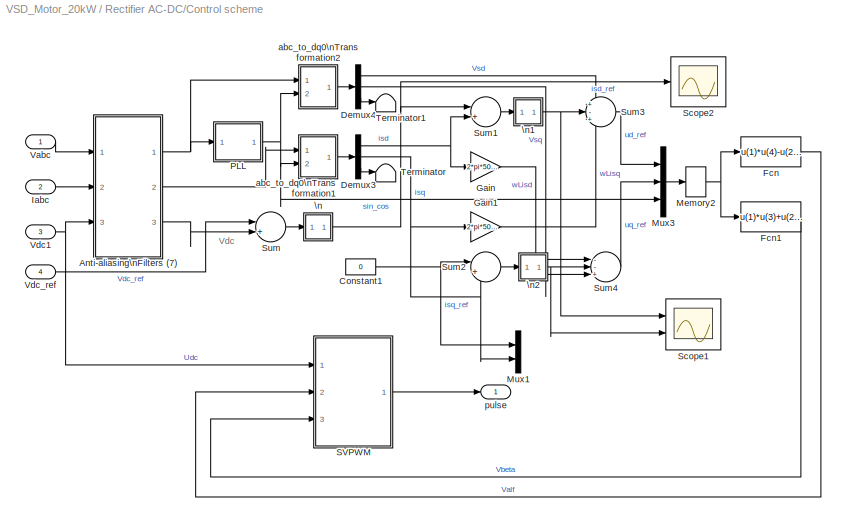
BLOCK [SubSystem] Rectifier AC-DC/Control scheme
  Ports = [4, 1]
  RequestExecContextInheritance = off
  SID = 5
BLOCK [SubSystem] Rectifier AC-DC/Control scheme/Anti-aliasing\nFilters (7)
  Ports = [3, 3]
  RequestExecContextInheritance = off
  SID = 34
BLOCK [Outport] Rectifier AC-DC/Control scheme/Anti-aliasing\nFilters (7)/ Vabc*
  IconDisplay = Port number
  SID = 43
BLOCK [Outport] Rectifier AC-DC/Control scheme/Anti-aliasing\nFilters (7)/ Vdc*
  IconDisplay = Port number
  Port = 3
  SID = 45
BLOCK [Reference] Rectifier AC-DC/Control scheme/Anti-aliasing\nFilters (7)/2nd-Order\nFilter8  REF=powerlib_extras/Control \nBlocks/2nd-Order\nFilter
  FilterType = Lowpass
  Fo = 750
  Initialize = off
  PlotResponse = off
  Ports = [1, 1]
  SID = 38
  SourceBlock = powerlib_extras/Control \nBlocks/2nd-Order\nFilter
  SourceProductBaseCode = PS
  SourceProductName = Simscape Electrical
  SourceType = 2nd-Order Filter
  Vac_Init = [1 45 60]
  Vdc_Init = -0.5
  Zeta = 0.707
  param1 = [1 500 1]
BLOCK [Demux] Rectifier AC-DC/Control scheme/Anti-aliasing\nFilters (7)/Demux
  Outputs = 3
  Ports = [1, 3]
  SID = 39
BLOCK [Demux] Rectifier AC-DC/Control scheme/Anti-aliasing\nFilters (7)/Demux1
  Outputs = 3
  Ports = [1, 3]
  SID = 40
BLOCK [Inport] Rectifier AC-DC/Control scheme/Anti-aliasing\nFilters (7)/Iabc 
  IconDisplay = Port number
  Port = 2
  PortDimensions = 3
  SID = 36
BLOCK [Outport] Rectifier AC-DC/Control scheme/Anti-aliasing\nFilters (7)/Iabc*
  IconDisplay = Port number
  Port = 2
  SID = 44
BLOCK [Mux] Rectifier AC-DC/Control scheme/Anti-aliasing\nFilters (7)/Mux
  DisplayOption = bar
  Inputs = 3
  Ports = [3, 1]
  SID = 41
BLOCK [Mux] Rectifier AC-DC/Control scheme/Anti-aliasing\nFilters (7)/Mux1
  DisplayOption = bar
  Inputs = 3
  Ports = [3, 1]
  SID = 42
BLOCK [Inport] Rectifier AC-DC/Control scheme/Anti-aliasing\nFilters (7)/Vabc
  IconDisplay = Port number
  PortDimensions = 3
  SID = 35
BLOCK [Inport] Rectifier AC-DC/Control scheme/Anti-aliasing\nFilters (7)/Vdc 
  IconDisplay = Port number
  Port = 3
  PortDimensions = 1
  SID = 37
BLOCK [Constant] Rectifier AC-DC/Control scheme/Constant1
  SID = 46
  Value = 0
BLOCK [Demux] Rectifier AC-DC/Control scheme/Demux3
  DisplayOption = bar
  Outputs = 3
  Ports = [1, 3]
  SID = 47
BLOCK [Demux] Rectifier AC-DC/Control scheme/Demux4
  DisplayOption = bar
  Outputs = 3
  Ports = [1, 3]
  SID = 48
BLOCK [Fcn] Rectifier AC-DC/Control scheme/Fcn
  Expr = u(1)*u(4)-u(2)*u(3)
  SID = 49
BLOCK [Fcn] Rectifier AC-DC/Control scheme/Fcn1
  Expr = u(1)*u(3)+u(2)*u(4)
  SID = 50
BLOCK [Gain] Rectifier AC-DC/Control scheme/Gain
  Gain = 2*pi*50*(75e-4)
  OutDataTypeStr = Inherit: Inherit via internal rule
  ParamDataTypeStr = Inherit: Inherit via internal rule
  SID = 51
  SaturateOnIntegerOverflow = off
BLOCK [Gain] Rectifier AC-DC/Control scheme/Gain1
  Gain = 2*pi*50*(75e-4)
  OutDataTypeStr = Inherit: Inherit via internal rule
  ParamDataTypeStr = Inherit: Inherit via internal rule
  SID = 52
  SaturateOnIntegerOverflow = off
BLOCK [Inport] Rectifier AC-DC/Control scheme/Iabc
  IconDisplay = Port number
  Port = 2
  PortDimensions = 3
  SID = 7
BLOCK [Memory] Rectifier AC-DC/Control scheme/Memory2
  SID = 53
BLOCK [Mux] Rectifier AC-DC/Control scheme/Mux1
  DisplayOption = bar
  Inputs = 2
  Ports = [2, 1]
  SID = 54
BLOCK [Mux] Rectifier AC-DC/Control scheme/Mux3
  DisplayOption = bar
  Inputs = 3
  Ports = [3, 1]
  SID = 55
BLOCK [SubSystem] Rectifier AC-DC/Control scheme/PLL
  Ports = [1, 1]
  RequestExecContextInheritance = off
  SID = 56
BLOCK [Clock] Rectifier AC-DC/Control scheme/PLL/Clock
  SID = 58
BLOCK [Constant] Rectifier AC-DC/Control scheme/PLL/Constant1
  SID = 59
  Value = 1.5*pi
BLOCK [DigitalClock] Rectifier AC-DC/Control scheme/PLL/Digital Clock
  SID = 60
BLOCK [Fcn] Rectifier AC-DC/Control scheme/PLL/Fcn
  Expr = (atan2(u(2),u(1)))
  SID = 61
BLOCK [Gain] Rectifier AC-DC/Control scheme/PLL/Gain1
  Gain = 2*pi*60
  OutDataTypeStr = Inherit: Inherit via internal rule
  ParamDataTypeStr = Inherit: Inherit via internal rule
  SID = 62
  SaturateOnIntegerOverflow = off
BLOCK [Mux] Rectifier AC-DC/Control scheme/PLL/Mux
  DisplayOption = bar
  Inputs = 2
  Ports = [2, 1]
  SID = 63
BLOCK [Mux] Rectifier AC-DC/Control scheme/PLL/Mux1
  DisplayOption = bar
  Inputs = 2
  Ports = [2, 1]
  SID = 64
BLOCK [Scope] Rectifier AC-DC/Control scheme/PLL/Scope1
  Floating = off
  NumInputPorts = 1
  Ports = [1]
  SID = 65
  ScopeSpecificationString = C++SS(StrPVP('Location','[188, 390, 512, 629]'),StrPVP('Open','off'),MxPVP('AxesTitles',53,'struct(''axes1'',''%<SignalLabel>'')'),StrPVP('SaveName','ScopeData6'),StrPVP('DataFormat','StructureWithTime'),StrPVP('BlockParamSampleTime','0'),StrPVP('LimitDataPoints','on'),StrPVP('Decimation','1'),StrPVP('BlockParamSampleInput','off'))
BLOCK [Scope] Rectifier AC-DC/Control scheme/PLL/Scope2
  Floating = off
  NumInputPorts = 2
  Ports = [2]
  SID = 66
  ScopeSpecificationString = C++SS(StrPVP('Location','[395, 50, 931, 480]'),StrPVP('Open','off'),StrPVP('ZoomMode','xonly'),MxPVP('AxesTitles',53,'struct(''axes1'',''%<SignalLabel>'',''axes2'',''%<SignalLabel>'')'),StrPVP('YMin','-1~-5'),StrPVP('YMax','1~5'),StrPVP('SaveName','ScopeData7'),StrPVP('DataFormat','StructureWithTime'),StrPVP('LimitDataPoints','off'),StrPVP('BlockParamSampleTime','0'),StrPVP('Decimation','1'),StrPV...<+33ch>
BLOCK [Sum] Rectifier AC-DC/Control scheme/PLL/Sum2
  Ports = [2, 1]
  SID = 67
BLOCK [Trigonometry] Rectifier AC-DC/Control scheme/PLL/Trigonometric\nFunction
  Ports = [1, 1]
  SID = 68
BLOCK [Trigonometry] Rectifier AC-DC/Control scheme/PLL/Trigonometric\nFunction1
  Operator = cos
  Ports = [1, 1]
  SID = 69
BLOCK [Trigonometry] Rectifier AC-DC/Control scheme/PLL/Trigonometric\nFunction2
  Ports = [1, 1]
  SID = 70
BLOCK [Trigonometry] Rectifier AC-DC/Control scheme/PLL/Trigonometric\nFunction3
  Operator = cos
  Ports = [1, 1]
  SID = 71
BLOCK [Inport] Rectifier AC-DC/Control scheme/PLL/Vabc
  IconDisplay = Port number
  SID = 57
BLOCK [SubSystem] Rectifier AC-DC/Control scheme/PLL/abc_to_dq0\nTransformation
  Ports = [2, 1]
  RequestExecContextInheritance = off
  SID = 72
BLOCK [Demux] Rectifier AC-DC/Control scheme/PLL/abc_to_dq0\nTransformation/Demux
  Outputs = 2
  Ports = [1, 2]
  SID = 75
BLOCK [Fcn] Rectifier AC-DC/Control scheme/PLL/abc_to_dq0\nTransformation/Fcn1
  Expr = 2/3*((u[1]*u[5])+(u[2]*u[7])+(u[3]*u[9]))
  SID = 76
BLOCK [Fcn] Rectifier AC-DC/Control scheme/PLL/abc_to_dq0\nTransformation/Fcn2
  Expr = -2/3*((u[1]*u[4])+(u[2]*u[6])+(u[3]*u[8]))
  SID = 77
BLOCK [Gain] Rectifier AC-DC/Control scheme/PLL/abc_to_dq0\nTransformation/Gain1
  Gain = 1/3
  SID = 78
BLOCK [Constant] Rectifier AC-DC/Control scheme/PLL/abc_to_dq0\nTransformation/K1
  SID = 79
  Value = 0.5
BLOCK [Constant] Rectifier AC-DC/Control scheme/PLL/abc_to_dq0\nTransformation/K2
  SID = 80
  Value = sqrt(3)/2
BLOCK [Mux] Rectifier AC-DC/Control scheme/PLL/abc_to_dq0\nTransformation/Mux
  Inputs = 2
  Ports = [2, 1]
  SID = 81
BLOCK [Mux] Rectifier AC-DC/Control scheme/PLL/abc_to_dq0\nTransformation/Mux1
  Inputs = 3
  Ports = [3, 1]
  SID = 82
BLOCK [Mux] Rectifier AC-DC/Control scheme/PLL/abc_to_dq0\nTransformation/Mux2
  Inputs = 6
  Ports = [6, 1]
  SID = 83
BLOCK [Product] Rectifier AC-DC/Control scheme/PLL/abc_to_dq0\nTransformation/Product
  Ports = [2, 1]
  RndMeth = Floor
  SID = 84
BLOCK [Product] Rectifier AC-DC/Control scheme/PLL/abc_to_dq0\nTransformation/Product1
  Ports = [2, 1]
  RndMeth = Floor
  SID = 85
BLOCK [Product] Rectifier AC-DC/Control scheme/PLL/abc_to_dq0\nTransformation/Product2
  Ports = [2, 1]
  RndMeth = Floor
  SID = 86
BLOCK [Product] Rectifier AC-DC/Control scheme/PLL/abc_to_dq0\nTransformation/Product3
  Ports = [2, 1]
  RndMeth = Floor
  SID = 87
BLOCK [Sum] Rectifier AC-DC/Control scheme/PLL/abc_to_dq0\nTransformation/Sum
  Inputs = --
  Ports = [2, 1]
  SID = 88
BLOCK [Sum] Rectifier AC-DC/Control scheme/PLL/abc_to_dq0\nTransformation/Sum1
  Inputs = -+
  Ports = [2, 1]
  SID = 89
BLOCK [Sum] Rectifier AC-DC/Control scheme/PLL/abc_to_dq0\nTransformation/Sum2
  Inputs = --
  Ports = [2, 1]
  SID = 90
BLOCK [Sum] Rectifier AC-DC/Control scheme/PLL/abc_to_dq0\nTransformation/Sum3
  Inputs = --
  Ports = [2, 1]
  SID = 91
BLOCK [Sum] Rectifier AC-DC/Control scheme/PLL/abc_to_dq0\nTransformation/Sum4
  Inputs = 1
  Ports = [1, 1]
  SID = 92
BLOCK [Inport] Rectifier AC-DC/Control scheme/PLL/abc_to_dq0\nTransformation/abc
  IconDisplay = Port number
  PortDimensions = 3
  SID = 73
BLOCK [Outport] Rectifier AC-DC/Control scheme/PLL/abc_to_dq0\nTransformation/dq0
  IconDisplay = Port number
  InitialOutput = 0
  SID = 93
BLOCK [Inport] Rectifier AC-DC/Control scheme/PLL/abc_to_dq0\nTransformation/sin_cos
  IconDisplay = Port number
  Port = 2
  PortDimensions = 2
  SID = 74
BLOCK [Constant] Rectifier AC-DC/Control scheme/PLL/ioref1
  SID = 103
  Value = [0  1]
BLOCK [Outport] Rectifier AC-DC/Control scheme/PLL/sin-cos
  IconDisplay = Port number
  SID = 104
BLOCK [SubSystem] Rectifier AC-DC/Control scheme/SVPWM
  Ports = [3, 1]
  RequestExecContextInheritance = off
  SID = 105
BLOCK [Mux] Rectifier AC-DC/Control scheme/SVPWM/Mux1
  DisplayOption = bar
  Inputs = 2
  Ports = [2, 1]
  SID = 109
BLOCK [Outport] Rectifier AC-DC/Control scheme/SVPWM/Out1
  IconDisplay = Port number
  SID = 202
BLOCK [Scope] Rectifier AC-DC/Control scheme/SVPWM/Scope1
  Floating = off
  NumInputPorts = 2
  Ports = [2]
  SID = 110
  ScopeSpecificationString = C++SS(StrPVP('Location','[39, 79, 529, 703]'),StrPVP('Open','off'),StrPVP('ZoomMode','yonly'),MxPVP('AxesTitles',53,'struct(''axes1'',''%<SignalLabel>'',''axes2'',''%<SignalLabel>'')'),StrPVP('TimeRange','0.1'),StrPVP('YMin','-150~-100'),StrPVP('YMax','150~100'),StrPVP('SaveName','psb1phPWM2_str1'),StrPVP('DataFormat','StructureWithTime'),StrPVP('LimitDataPoints','off'),StrPVP('MaxDataPoints','500...<+104ch>
BLOCK [Scope] Rectifier AC-DC/Control scheme/SVPWM/Scope2
  Floating = off
  NumInputPorts = 1
  Ports = [1]
  SID = 111
  ScopeSpecificationString = C++SS(StrPVP('Location','[137, 235, 825, 600]'),StrPVP('Open','off'),StrPVP('ZoomMode','xonly'),MxPVP('AxesTitles',53,'struct(''axes1'',''%<SignalLabel>'')'),StrPVP('TimeRange','0.4'),StrPVP('YMin','1'),StrPVP('YMax','6'),StrPVP('SaveName','psb1phPWM2_str'),StrPVP('DataFormat','StructureWithTime'),StrPVP('LimitDataPoints','off'),StrPVP('MaxDataPoints','500000'),StrPVP('BlockParamSampleTime','0'),S...<+62ch>
BLOCK [Scope] Rectifier AC-DC/Control scheme/SVPWM/Scope5
  Floating = off
  NumInputPorts = 1
  Ports = [1]
  SID = 112
  ScopeSpecificationString = C++SS(StrPVP('Location','[39, 79, 744, 507]'),StrPVP('Open','off'),StrPVP('ZoomMode','xonly'),MxPVP('AxesTitles',53,'struct(''axes1'',''%<SignalLabel>'')'),StrPVP('TimeRange','0.1'),StrPVP('YMin','-5e-005'),StrPVP('YMax','0.00025'),StrPVP('SaveName','psb1phPWM2_str4'),StrPVP('DataFormat','StructureWithTime'),StrPVP('LimitDataPoints','off'),StrPVP('MaxDataPoints','500000'),StrPVP('BlockParamSampleT...<+73ch>
BLOCK [Scope] Rectifier AC-DC/Control scheme/SVPWM/Scope7
  Floating = off
  NumInputPorts = 1
  Ports = [1]
  SID = 113
  ScopeSpecificationString = C++SS(StrPVP('Location','[94, 208, 486, 425]'),StrPVP('Open','off'),StrPVP('ZoomMode','xonly'),MxPVP('AxesTitles',53,'struct(''axes1'',''%<SignalLabel>'')'),StrPVP('TimeRange','0.1'),StrPVP('YMin','-1e-005'),StrPVP('YMax','0.0002'),StrPVP('SaveName','psb1phPWM2_str6'),StrPVP('DataFormat','StructureWithTime'),StrPVP('LimitDataPoints','off'),StrPVP('MaxDataPoints','500000'),StrPVP('BlockParamSampleT...<+73ch>
BLOCK [Constant] Rectifier AC-DC/Control scheme/SVPWM/T1
  SID = 114
  Value = Ts
BLOCK [Inport] Rectifier AC-DC/Control scheme/SVPWM/Udc
  IconDisplay = Port number
  SID = 106
BLOCK [Inport] Rectifier AC-DC/Control scheme/SVPWM/Valf
  IconDisplay = Port number
  Port = 2
  SID = 107
BLOCK [Inport] Rectifier AC-DC/Control scheme/SVPWM/Vbeta
  IconDisplay = Port number
  Port = 3
  SID = 108
BLOCK [SubSystem] Rectifier AC-DC/Control scheme/SVPWM/pulse generater
  Ports = [4, 1]
  RequestExecContextInheritance = off
  SID = 115
BLOCK [Mux] Rectifier AC-DC/Control scheme/SVPWM/pulse generater/Mux
  DisplayOption = bar
  Inputs = 3
  Ports = [3, 1]
  SID = 120
BLOCK [Sum] Rectifier AC-DC/Control scheme/SVPWM/pulse generater/Sum1
  InputSameDT = off
  Inputs = |+-
  OutDataTypeStr = Inherit: Inherit via internal rule
  Ports = [2, 1]
  SID = 121
  SaturateOnIntegerOverflow = off
BLOCK [Sum] Rectifier AC-DC/Control scheme/SVPWM/pulse generater/Sum2
  InputSameDT = off
  Inputs = |+-
  OutDataTypeStr = Inherit: Inherit via internal rule
  Ports = [2, 1]
  SID = 122
  SaturateOnIntegerOverflow = off
BLOCK [Sum] Rectifier AC-DC/Control scheme/SVPWM/pulse generater/Sum3
  InputSameDT = off
  Inputs = |+-
  OutDataTypeStr = Inherit: Inherit via internal rule
  Ports = [2, 1]
  SID = 123
  SaturateOnIntegerOverflow = off
BLOCK [Switch] Rectifier AC-DC/Control scheme/SVPWM/pulse generater/Switch
  InputSameDT = off
  SID = 124
  SaturateOnIntegerOverflow = off
BLOCK [Switch] Rectifier AC-DC/Control scheme/SVPWM/pulse generater/Switch1
  InputSameDT = off
  SID = 125
  SaturateOnIntegerOverflow = off
BLOCK [Switch] Rectifier AC-DC/Control scheme/SVPWM/pulse generater/Switch2
  InputSameDT = off
  SID = 126
  SaturateOnIntegerOverflow = off
BLOCK [Constant] Rectifier AC-DC/Control scheme/SVPWM/pulse generater/T
  SID = 127
  Value = [0,1]
BLOCK [Constant] Rectifier AC-DC/Control scheme/SVPWM/pulse generater/T1
  SID = 128
  Value = [1,0]
BLOCK [Inport] Rectifier AC-DC/Control scheme/SVPWM/pulse generater/Tcm1
  IconDisplay = Port number
  SID = 116
BLOCK [Inport] Rectifier AC-DC/Control scheme/SVPWM/pulse generater/Tcm2
  IconDisplay = Port number
  Port = 2
  SID = 117
BLOCK [Inport] Rectifier AC-DC/Control scheme/SVPWM/pulse generater/Tcm3
  IconDisplay = Port number
  Port = 3
  SID = 118
BLOCK [Inport] Rectifier AC-DC/Control scheme/SVPWM/pulse generater/Tri
  IconDisplay = Port number
  Port = 4
  SID = 119
BLOCK [Outport] Rectifier AC-DC/Control scheme/SVPWM/pulse generater/pulse
  IconDisplay = Port number
  SID = 129
BLOCK [SubSystem] Rectifier AC-DC/Control scheme/SVPWM/sector calc
  Ports = [2, 1]
  RequestExecContextInheritance = off
  SID = 130
BLOCK [Constant] Rectifier AC-DC/Control scheme/SVPWM/sector calc/Constant
  SID = 133
BLOCK [Constant] Rectifier AC-DC/Control scheme/SVPWM/sector calc/Constant1
  SID = 134
  Value = 0
BLOCK [Gain] Rectifier AC-DC/Control scheme/SVPWM/sector calc/Gain
  Gain = sqrt(3)
  OutDataTypeStr = Inherit: Inherit via internal rule
  ParamDataTypeStr = Inherit: Inherit via internal rule
  SID = 135
  SaturateOnIntegerOverflow = off
BLOCK [Gain] Rectifier AC-DC/Control scheme/SVPWM/sector calc/Gain1
  Gain = -1
  OutDataTypeStr = Inherit: Inherit via internal rule
  ParamDataTypeStr = Inherit: Inherit via internal rule
  SID = 136
  SaturateOnIntegerOverflow = off
BLOCK [Gain] Rectifier AC-DC/Control scheme/SVPWM/sector calc/Gain2
  Gain = 4
  OutDataTypeStr = Inherit: Inherit via internal rule
  ParamDataTypeStr = Inherit: Inherit via internal rule
  SID = 137
  SaturateOnIntegerOverflow = off
BLOCK [Gain] Rectifier AC-DC/Control scheme/SVPWM/sector calc/Gain3
  Gain = 2
  OutDataTypeStr = Inherit: Inherit via internal rule
  ParamDataTypeStr = Inherit: Inherit via internal rule
  SID = 138
  SaturateOnIntegerOverflow = off
BLOCK [Outport] Rectifier AC-DC/Control scheme/SVPWM/sector calc/N
  IconDisplay = Port number
  SID = 146
BLOCK [Saturate] Rectifier AC-DC/Control scheme/SVPWM/sector calc/Saturation
  InputPortMap = u0
  LowerLimit = 0
  Ports = [1, 1]
  SID = 139
  UpperLimit = 6
BLOCK [Sum] Rectifier AC-DC/Control scheme/SVPWM/sector calc/Sum
  InputSameDT = off
  Inputs = |+-
  OutDataTypeStr = Inherit: Inherit via internal rule
  Ports = [2, 1]
  SID = 140
  SaturateOnIntegerOverflow = off
BLOCK [Sum] Rectifier AC-DC/Control scheme/SVPWM/sector calc/Sum1
  InputSameDT = off
  Inputs = |+-
  OutDataTypeStr = Inherit: Inherit via internal rule
  Ports = [2, 1]
  SID = 141
  SaturateOnIntegerOverflow = off
BLOCK [Sum] Rectifier AC-DC/Control scheme/SVPWM/sector calc/Sum2
  InputSameDT = off
  Inputs = |+++
  OutDataTypeStr = Inherit: Inherit via internal rule
  Ports = [3, 1]
  SID = 142
  SaturateOnIntegerOverflow = off
BLOCK [Switch] Rectifier AC-DC/Control scheme/SVPWM/sector calc/Switch
  InputSameDT = off
  SID = 143
  SaturateOnIntegerOverflow = off
BLOCK [Switch] Rectifier AC-DC/Control scheme/SVPWM/sector calc/Switch1
  InputSameDT = off
  SID = 144
  SaturateOnIntegerOverflow = off
BLOCK [Switch] Rectifier AC-DC/Control scheme/SVPWM/sector calc/Switch2
  InputSameDT = off
  SID = 145
  SaturateOnIntegerOverflow = off
BLOCK [Inport] Rectifier AC-DC/Control scheme/SVPWM/sector calc/ualf
  IconDisplay = Port number
  SID = 131
BLOCK [Inport] Rectifier AC-DC/Control scheme/SVPWM/sector calc/ubeta
  IconDisplay = Port number
  Port = 2
  SID = 132
BLOCK [SubSystem] Rectifier AC-DC/Control scheme/SVPWM/time calc
  Ports = [4, 3]
  RequestExecContextInheritance = off
  SID = 147
BLOCK [Inport] Rectifier AC-DC/Control scheme/SVPWM/time calc/In1
  IconDisplay = Port number
  SID = 148
BLOCK [Inport] Rectifier AC-DC/Control scheme/SVPWM/time calc/In2
  IconDisplay = Port number
  Port = 2
  SID = 149
BLOCK [Inport] Rectifier AC-DC/Control scheme/SVPWM/time calc/In3
  IconDisplay = Port number
  Port = 3
  SID = 150
BLOCK [Inport] Rectifier AC-DC/Control scheme/SVPWM/time calc/In4
  IconDisplay = Port number
  Port = 4
  SID = 151
BLOCK [Mux] Rectifier AC-DC/Control scheme/SVPWM/time calc/Mux
  DisplayOption = bar
  Ports = [4, 1]
  SID = 152
BLOCK [Outport] Rectifier AC-DC/Control scheme/SVPWM/time calc/X
  IconDisplay = Port number
  SID = 156
BLOCK [Outport] Rectifier AC-DC/Control scheme/SVPWM/time calc/Y
  IconDisplay = Port number
  Port = 2
  SID = 157
BLOCK [Outport] Rectifier AC-DC/Control scheme/SVPWM/time calc/Z
  IconDisplay = Port number
  Port = 3
  SID = 158
BLOCK [Fcn] Rectifier AC-DC/Control scheme/SVPWM/time calc/ualf1
  Expr = sqrt(3)*u(3)*u(2)/u(1)
  SID = 153
BLOCK [Fcn] Rectifier AC-DC/Control scheme/SVPWM/time calc/ualf2
  Expr = (sqrt(3)/2*u(3)+1.5*u(4))*u(2)/u(1)
  SID = 154
BLOCK [Fcn] Rectifier AC-DC/Control scheme/SVPWM/time calc/ualf3
  Expr = (sqrt(3)/2*u(3)-1.5*u(4))*u(2)/u(1)
  SID = 155
BLOCK [SubSystem] Rectifier AC-DC/Control scheme/SVPWM/time convert
  Ports = [4, 2]
  RequestExecContextInheritance = off
  SID = 159
BLOCK [Gain] Rectifier AC-DC/Control scheme/SVPWM/time convert/Gain
  Gain = -1
  OutDataTypeStr = Inherit: Inherit via internal rule
  ParamDataTypeStr = Inherit: Inherit via internal rule
  SID = 164
  SaturateOnIntegerOverflow = off
BLOCK [Gain] Rectifier AC-DC/Control scheme/SVPWM/time convert/Gain1
  Gain = -1
  OutDataTypeStr = Inherit: Inherit via internal rule
  ParamDataTypeStr = Inherit: Inherit via internal rule
  SID = 165
  SaturateOnIntegerOverflow = off
BLOCK [Gain] Rectifier AC-DC/Control scheme/SVPWM/time convert/Gain2
  Gain = -1
  OutDataTypeStr = Inherit: Inherit via internal rule
  ParamDataTypeStr = Inherit: Inherit via internal rule
  SID = 166
  SaturateOnIntegerOverflow = off
BLOCK [MultiPortSwitch] Rectifier AC-DC/Control scheme/SVPWM/time convert/Multiport\nSwitch1
  InputSameDT = off
  Inputs = 6
  Ports = [7, 1]
  SID = 167
  SaturateOnIntegerOverflow = off
BLOCK [MultiPortSwitch] Rectifier AC-DC/Control scheme/SVPWM/time convert/Multiport\nSwitch2
  InputSameDT = off
  Inputs = 6
  Ports = [7, 1]
  SID = 168
  SaturateOnIntegerOverflow = off
BLOCK [Inport] Rectifier AC-DC/Control scheme/SVPWM/time convert/N
  IconDisplay = Port number
  Port = 4
  SID = 163
BLOCK [Inport] Rectifier AC-DC/Control scheme/SVPWM/time convert/X
  IconDisplay = Port number
  SID = 160
BLOCK [Inport] Rectifier AC-DC/Control scheme/SVPWM/time convert/Y
  IconDisplay = Port number
  Port = 2
  SID = 161
BLOCK [Inport] Rectifier AC-DC/Control scheme/SVPWM/time convert/Z
  IconDisplay = Port number
  Port = 3
  SID = 162
BLOCK [Outport] Rectifier AC-DC/Control scheme/SVPWM/time convert/t1
  IconDisplay = Port number
  SID = 169
BLOCK [Outport] Rectifier AC-DC/Control scheme/SVPWM/time convert/t2
  IconDisplay = Port number
  Port = 2
  SID = 170
BLOCK [SubSystem] Rectifier AC-DC/Control scheme/SVPWM/time convert1
  Ports = [3, 3]
  RequestExecContextInheritance = off
  SID = 171
BLOCK [Gain] Rectifier AC-DC/Control scheme/SVPWM/time convert1/Gain
  Gain = 0.25
  OutDataTypeStr = Inherit: Inherit via internal rule
  ParamDataTypeStr = Inherit: Inherit via internal rule
  SID = 175
  SaturateOnIntegerOverflow = off
BLOCK [Gain] Rectifier AC-DC/Control scheme/SVPWM/time convert1/Gain1
  Gain = 0.5
  OutDataTypeStr = Inherit: Inherit via internal rule
  ParamDataTypeStr = Inherit: Inherit via internal rule
  SID = 176
  SaturateOnIntegerOverflow = off
BLOCK [Gain] Rectifier AC-DC/Control scheme/SVPWM/time convert1/Gain2
  Gain = 0.5
  OutDataTypeStr = Inherit: Inherit via internal rule
  ParamDataTypeStr = Inherit: Inherit via internal rule
  SID = 177
  SaturateOnIntegerOverflow = off
BLOCK [Mux] Rectifier AC-DC/Control scheme/SVPWM/time convert1/Mux
  DisplayOption = bar
  Inputs = 3
  Ports = [3, 1]
  SID = 178
BLOCK [Sum] Rectifier AC-DC/Control scheme/SVPWM/time convert1/Sum
  InputSameDT = off
  Inputs = |+--
  OutDataTypeStr = Inherit: Inherit via internal rule
  Ports = [3, 1]
  SID = 179
  SaturateOnIntegerOverflow = off
BLOCK [Sum] Rectifier AC-DC/Control scheme/SVPWM/time convert1/Sum1
  InputSameDT = off
  Inputs = |+--
  OutDataTypeStr = Inherit: Inherit via internal rule
  Ports = [3, 1]
  SID = 180
  SaturateOnIntegerOverflow = off
BLOCK [Sum] Rectifier AC-DC/Control scheme/SVPWM/time convert1/Sum2
  InputSameDT = off
  Inputs = |++
  OutDataTypeStr = Inherit: Inherit via internal rule
  Ports = [2, 1]
  SID = 181
  SaturateOnIntegerOverflow = off
BLOCK [Sum] Rectifier AC-DC/Control scheme/SVPWM/time convert1/Sum3
  InputSameDT = off
  Inputs = |++
  OutDataTypeStr = Inherit: Inherit via internal rule
  Ports = [2, 1]
  SID = 182
  SaturateOnIntegerOverflow = off
BLOCK [Switch] Rectifier AC-DC/Control scheme/SVPWM/time convert1/Switch
  InputSameDT = off
  SID = 183
  SaturateOnIntegerOverflow = off
BLOCK [Switch] Rectifier AC-DC/Control scheme/SVPWM/time convert1/Switch1
  InputSameDT = off
  SID = 184
  SaturateOnIntegerOverflow = off
BLOCK [Outport] Rectifier AC-DC/Control scheme/SVPWM/time convert1/Ta
  IconDisplay = Port number
  SID = 187
BLOCK [Outport] Rectifier AC-DC/Control scheme/SVPWM/time convert1/Tb
  IconDisplay = Port number
  Port = 2
  SID = 188
BLOCK [Outport] Rectifier AC-DC/Control scheme/SVPWM/time convert1/Tc
  IconDisplay = Port number
  Port = 3
  SID = 189
BLOCK [Inport] Rectifier AC-DC/Control scheme/SVPWM/time convert1/Ts
  IconDisplay = Port number
  SID = 172
BLOCK [Inport] Rectifier AC-DC/Control scheme/SVPWM/time convert1/t1
  IconDisplay = Port number
  Port = 2
  SID = 173
BLOCK [Inport] Rectifier AC-DC/Control scheme/SVPWM/time convert1/t2
  IconDisplay = Port number
  Port = 3
  SID = 174
BLOCK [Fcn] Rectifier AC-DC/Control scheme/SVPWM/time convert1/ualf1
  Expr = u(3)*u(1)/(u(2)+u(3))
  SID = 185
BLOCK [Fcn] Rectifier AC-DC/Control scheme/SVPWM/time convert1/ualf4
  Expr = u(2)*u(1)/(u(2)+u(3))
  SID = 186
BLOCK [SubSystem] Rectifier AC-DC/Control scheme/SVPWM/time convert2
  Ports = [4, 3]
  RequestExecContextInheritance = off
  SID = 190
BLOCK [MultiPortSwitch] Rectifier AC-DC/Control scheme/SVPWM/time convert2/Multiport\nSwitch1
  InputSameDT = off
  Inputs = 6
  Ports = [7, 1]
  SID = 195
  SaturateOnIntegerOverflow = off
BLOCK [MultiPortSwitch] Rectifier AC-DC/Control scheme/SVPWM/time convert2/Multiport\nSwitch2
  InputSameDT = off
  Inputs = 6
  Ports = [7, 1]
  SID = 196
  SaturateOnIntegerOverflow = off
BLOCK [MultiPortSwitch] Rectifier AC-DC/Control scheme/SVPWM/time convert2/Multiport\nSwitch3
  InputSameDT = off
  Inputs = 6
  Ports = [7, 1]
  SID = 197
  SaturateOnIntegerOverflow = off
BLOCK [Inport] Rectifier AC-DC/Control scheme/SVPWM/time convert2/N
  IconDisplay = Port number
  Port = 4
  SID = 194
BLOCK [Inport] Rectifier AC-DC/Control scheme/SVPWM/time convert2/Ta
  IconDisplay = Port number
  SID = 191
BLOCK [Inport] Rectifier AC-DC/Control scheme/SVPWM/time convert2/Tb
  IconDisplay = Port number
  Port = 2
  SID = 192
BLOCK [Inport] Rectifier AC-DC/Control scheme/SVPWM/time convert2/Tc
  IconDisplay = Port number
  Port = 3
  SID = 193
BLOCK [Outport] Rectifier AC-DC/Control scheme/SVPWM/time convert2/Tcm1
  IconDisplay = Port number
  SID = 198
BLOCK [Outport] Rectifier AC-DC/Control scheme/SVPWM/time convert2/Tcm2
  IconDisplay = Port number
  Port = 2
  SID = 199
BLOCK [Outport] Rectifier AC-DC/Control scheme/SVPWM/time convert2/Tcm3
  IconDisplay = Port number
  Port = 3
  SID = 200
BLOCK [Reference] Rectifier AC-DC/Control scheme/SVPWM/triangular  REF=simulink/Sources/Repeating\nSequence
  Ports = [0, 1]
  SID = 201
  SourceBlock = simulink/Sources/Repeating\nSequence
  SourceProductBaseCode = SL
  SourceProductName = Simulink
  SourceType = Repeating table
  rep_seq_t = [0 0.5 1]*Ts
  rep_seq_y = [0 0.5 0]*Ts
BLOCK [Scope] Rectifier AC-DC/Control scheme/Scope1
  Floating = off
  NumInputPorts = 2
  Ports = [2]
  SID = 205
  ScopeSpecificationString = C++SS(StrPVP('Location','[181, 193, 1077, 779]'),StrPVP('Open','off'),MxPVP('AxesTitles',53,'struct(''axes1'',''%<SignalLabel>'',''axes2'',''%<SignalLabel>'')'),StrPVP('YMin','-25~-27.5'),StrPVP('YMax','20~25'),StrPVP('SaveName','V_p2'),StrPVP('DataFormat','Array'),StrPVP('LimitDataPoints','off'),StrPVP('Decimation','5'),StrPVP('BlockParamSampleTime','0'),StrPVP('BlockParamSampleInput','off'))
BLOCK [Scope] Rectifier AC-DC/Control scheme/Scope2
  Floating = off
  NumInputPorts = 1
  Ports = [1]
  SID = 206
  ScopeSpecificationString = C++SS(StrPVP('Location','[181, 193, 1077, 779]'),StrPVP('Open','off'),MxPVP('AxesTitles',53,'struct(''axes1'',''%<SignalLabel>'')'),StrPVP('YMin','-40'),StrPVP('YMax','12.5'),StrPVP('SaveName','V_p'),StrPVP('DataFormat','Array'),StrPVP('LimitDataPoints','off'),StrPVP('Decimation','5'),StrPVP('BlockParamSampleTime','0'),StrPVP('BlockParamSampleInput','off'))
BLOCK [Sum] Rectifier AC-DC/Control scheme/Sum
  IconShape = round
  Inputs = |+-
  Ports = [2, 1]
  SID = 207
BLOCK [Sum] Rectifier AC-DC/Control scheme/Sum1
  IconShape = round
  Inputs = |+-
  Ports = [2, 1]
  SID = 208
BLOCK [Sum] Rectifier AC-DC/Control scheme/Sum2
  IconShape = round
  Inputs = |+-
  Ports = [2, 1]
  SID = 209
BLOCK [Sum] Rectifier AC-DC/Control scheme/Sum3
  IconShape = round
  Inputs = +-+
  Ports = [3, 1]
  SID = 210
BLOCK [Sum] Rectifier AC-DC/Control scheme/Sum4
  IconShape = round
  Inputs = --+
  Ports = [3, 1]
  SID = 211
BLOCK [Terminator] Rectifier AC-DC/Control scheme/Terminator
  SID = 212
BLOCK [Terminator] Rectifier AC-DC/Control scheme/Terminator1
  SID = 213
BLOCK [Inport] Rectifier AC-DC/Control scheme/Vabc
  IconDisplay = Port number
  PortDimensions = 3
  SID = 6
BLOCK [Inport] Rectifier AC-DC/Control scheme/Vdc1
  IconDisplay = Port number
  Port = 3
  PortDimensions = 1
  SID = 8
BLOCK [Inport] Rectifier AC-DC/Control scheme/Vdc_ref
  IconDisplay = Port number
  Port = 4
  PortDimensions = 1
  SID = 9
BLOCK [SubSystem] Rectifier AC-DC/Control scheme/\n
  Ports = [1, 1]
  RequestExecContextInheritance = off
  SID = 10
BLOCK [Inport] Rectifier AC-DC/Control scheme/\n/In_1
  IconDisplay = Port number
  SID = 11
BLOCK [TransferFcn] Rectifier AC-DC/Control scheme/\n/Integral
  Denominator = [1 0]
  Numerator = [I]
  SID = 12
BLOCK [Outport] Rectifier AC-DC/Control scheme/\n/Out_1
  IconDisplay = Port number
  InitialOutput = 0
  SID = 17
BLOCK [Gain] Rectifier AC-DC/Control scheme/\n/Proportional
  Gain = P
  SID = 13
BLOCK [Saturate] Rectifier AC-DC/Control scheme/\n/Saturation
  InputPortMap = u0
  LowerLimit = min
  Ports = [1, 1]
  SID = 14
  UpperLimit = max
BLOCK [Saturate] Rectifier AC-DC/Control scheme/\n/Saturation1
  InputPortMap = u0
  LowerLimit = min
  Ports = [1, 1]
  SID = 15
  UpperLimit = max
BLOCK [Sum] Rectifier AC-DC/Control scheme/\n/Sum
  Ports = [2, 1]
  SID = 16
BLOCK [SubSystem] Rectifier AC-DC/Control scheme/\n1
  Ports = [1, 1]
  RequestExecContextInheritance = off
  SID = 18
BLOCK [Inport] Rectifier AC-DC/Control scheme/\n1/In_1
  IconDisplay = Port number
  SID = 19
BLOCK [TransferFcn] Rectifier AC-DC/Control scheme/\n1/Integral
  Denominator = [1 0]
  Numerator = [I]
  SID = 20
BLOCK [Outport] Rectifier AC-DC/Control scheme/\n1/Out_1
  IconDisplay = Port number
  InitialOutput = 0
  SID = 25
BLOCK [Gain] Rectifier AC-DC/Control scheme/\n1/Proportional
  Gain = P
  SID = 21
BLOCK [Saturate] Rectifier AC-DC/Control scheme/\n1/Saturation
  InputPortMap = u0
  LowerLimit = min
  Ports = [1, 1]
  SID = 22
  UpperLimit = max
BLOCK [Saturate] Rectifier AC-DC/Control scheme/\n1/Saturation1
  InputPortMap = u0
  LowerLimit = min
  Ports = [1, 1]
  SID = 23
  UpperLimit = max
BLOCK [Sum] Rectifier AC-DC/Control scheme/\n1/Sum
  Ports = [2, 1]
  SID = 24
BLOCK [SubSystem] Rectifier AC-DC/Control scheme/\n2
  Ports = [1, 1]
  RequestExecContextInheritance = off
  SID = 26
BLOCK [Inport] Rectifier AC-DC/Control scheme/\n2/In_1
  IconDisplay = Port number
  SID = 27
BLOCK [TransferFcn] Rectifier AC-DC/Control scheme/\n2/Integral
  Denominator = [1 0]
  Numerator = [I]
  SID = 28
BLOCK [Outport] Rectifier AC-DC/Control scheme/\n2/Out_1
  IconDisplay = Port number
  InitialOutput = 0
  SID = 33
BLOCK [Gain] Rectifier AC-DC/Control scheme/\n2/Proportional
  Gain = P
  SID = 29
BLOCK [Saturate] Rectifier AC-DC/Control scheme/\n2/Saturation
  InputPortMap = u0
  LowerLimit = min
  Ports = [1, 1]
  SID = 30
  UpperLimit = max
BLOCK [Saturate] Rectifier AC-DC/Control scheme/\n2/Saturation1
  InputPortMap = u0
  LowerLimit = min
  Ports = [1, 1]
  SID = 31
  UpperLimit = max
BLOCK [Sum] Rectifier AC-DC/Control scheme/\n2/Sum
  Ports = [2, 1]
  SID = 32
BLOCK [SubSystem] Rectifier AC-DC/Control scheme/abc_to_dq0\nTransformation1
  Ports = [2, 1]
  RequestExecContextInheritance = off
  SID = 214
BLOCK [Demux] Rectifier AC-DC/Control scheme/abc_to_dq0\nTransformation1/Demux
  Outputs = 2
  Ports = [1, 2]
  SID = 217
BLOCK [Fcn] Rectifier AC-DC/Control scheme/abc_to_dq0\nTransformation1/Fcn1
  Expr = 2/3*((u[1]*u[5])+(u[2]*u[7])+(u[3]*u[9]))
  SID = 218
BLOCK [Fcn] Rectifier AC-DC/Control scheme/abc_to_dq0\nTransformation1/Fcn2
  Expr = -2/3*((u[1]*u[4])+(u[2]*u[6])+(u[3]*u[8]))
  SID = 219
BLOCK [Gain] Rectifier AC-DC/Control scheme/abc_to_dq0\nTransformation1/Gain1
  Gain = 1/3
  SID = 220
BLOCK [Gain] Rectifier AC-DC/Control scheme/abc_to_dq0\nTransformation1/Gain2
  Gain = sqrt(3/2)
  SID = 221
BLOCK [Constant] Rectifier AC-DC/Control scheme/abc_to_dq0\nTransformation1/K1
  SID = 222
  Value = 0.5
BLOCK [Constant] Rectifier AC-DC/Control scheme/abc_to_dq0\nTransformation1/K2
  SID = 223
  Value = sqrt(3)/2
BLOCK [Mux] Rectifier AC-DC/Control scheme/abc_to_dq0\nTransformation1/Mux
  Inputs = 2
  Ports = [2, 1]
  SID = 224
BLOCK [Mux] Rectifier AC-DC/Control scheme/abc_to_dq0\nTransformation1/Mux1
  Inputs = 3
  Ports = [3, 1]
  SID = 225
BLOCK [Mux] Rectifier AC-DC/Control scheme/abc_to_dq0\nTransformation1/Mux2
  Inputs = 6
  Ports = [6, 1]
  SID = 226
BLOCK [Product] Rectifier AC-DC/Control scheme/abc_to_dq0\nTransformation1/Product
  Ports = [2, 1]
  RndMeth = Floor
  SID = 227
BLOCK [Product] Rectifier AC-DC/Control scheme/abc_to_dq0\nTransformation1/Product1
  Ports = [2, 1]
  RndMeth = Floor
  SID = 228
BLOCK [Product] Rectifier AC-DC/Control scheme/abc_to_dq0\nTransformation1/Product2
  Ports = [2, 1]
  RndMeth = Floor
  SID = 229
BLOCK [Product] Rectifier AC-DC/Control scheme/abc_to_dq0\nTransformation1/Product3
  Ports = [2, 1]
  RndMeth = Floor
  SID = 230
BLOCK [Sum] Rectifier AC-DC/Control scheme/abc_to_dq0\nTransformation1/Sum
  Inputs = --
  Ports = [2, 1]
  SID = 231
BLOCK [Sum] Rectifier AC-DC/Control scheme/abc_to_dq0\nTransformation1/Sum1
  Inputs = -+
  Ports = [2, 1]
  SID = 232
BLOCK [Sum] Rectifier AC-DC/Control scheme/abc_to_dq0\nTransformation1/Sum2
  Inputs = --
  Ports = [2, 1]
  SID = 233
BLOCK [Sum] Rectifier AC-DC/Control scheme/abc_to_dq0\nTransformation1/Sum3
  Inputs = --
  Ports = [2, 1]
  SID = 234
BLOCK [Sum] Rectifier AC-DC/Control scheme/abc_to_dq0\nTransformation1/Sum4
  Inputs = 1
  Ports = [1, 1]
  SID = 235
BLOCK [Inport] Rectifier AC-DC/Control scheme/abc_to_dq0\nTransformation1/abc
  IconDisplay = Port number
  PortDimensions = 3
  SID = 215
BLOCK [Outport] Rectifier AC-DC/Control scheme/abc_to_dq0\nTransformation1/dq0
  IconDisplay = Port number
  InitialOutput = 0
  SID = 236
BLOCK [Inport] Rectifier AC-DC/Control scheme/abc_to_dq0\nTransformation1/sin_cos
  IconDisplay = Port number
  Port = 2
  PortDimensions = 2
  SID = 216
BLOCK [SubSystem] Rectifier AC-DC/Control scheme/abc_to_dq0\nTransformation2
  Ports = [2, 1]
  RequestExecContextInheritance = off
  SID = 246
BLOCK [Demux] Rectifier AC-DC/Control scheme/abc_to_dq0\nTransformation2/Demux
  Outputs = 2
  Ports = [1, 2]
  SID = 249
BLOCK [Fcn] Rectifier AC-DC/Control scheme/abc_to_dq0\nTransformation2/Fcn1
  Expr = 2/3*((u[1]*u[5])+(u[2]*u[7])+(u[3]*u[9]))
  SID = 250
BLOCK [Fcn] Rectifier AC-DC/Control scheme/abc_to_dq0\nTransformation2/Fcn2
  Expr = -2/3*((u[1]*u[4])+(u[2]*u[6])+(u[3]*u[8]))
  SID = 251
BLOCK [Gain] Rectifier AC-DC/Control scheme/abc_to_dq0\nTransformation2/Gain1
  Gain = 1/3
  SID = 252
BLOCK [Constant] Rectifier AC-DC/Control scheme/abc_to_dq0\nTransformation2/K1
  SID = 253
  Value = 0.5
BLOCK [Constant] Rectifier AC-DC/Control scheme/abc_to_dq0\nTransformation2/K2
  SID = 254
  Value = sqrt(3)/2
BLOCK [Mux] Rectifier AC-DC/Control scheme/abc_to_dq0\nTransformation2/Mux
  Inputs = 2
  Ports = [2, 1]
  SID = 255
BLOCK [Mux] Rectifier AC-DC/Control scheme/abc_to_dq0\nTransformation2/Mux1
  Inputs = 3
  Ports = [3, 1]
  SID = 256
BLOCK [Mux] Rectifier AC-DC/Control scheme/abc_to_dq0\nTransformation2/Mux2
  Inputs = 6
  Ports = [6, 1]
  SID = 257
BLOCK [Product] Rectifier AC-DC/Control scheme/abc_to_dq0\nTransformation2/Product
  Ports = [2, 1]
  RndMeth = Floor
  SID = 258
BLOCK [Product] Rectifier AC-DC/Control scheme/abc_to_dq0\nTransformation2/Product1
  Ports = [2, 1]
  RndMeth = Floor
  SID = 259
BLOCK [Product] Rectifier AC-DC/Control scheme/abc_to_dq0\nTransformation2/Product2
  Ports = [2, 1]
  RndMeth = Floor
  SID = 260
BLOCK [Product] Rectifier AC-DC/Control scheme/abc_to_dq0\nTransformation2/Product3
  Ports = [2, 1]
  RndMeth = Floor
  SID = 261
BLOCK [Sum] Rectifier AC-DC/Control scheme/abc_to_dq0\nTransformation2/Sum
  Inputs = --
  Ports = [2, 1]
  SID = 262
BLOCK [Sum] Rectifier AC-DC/Control scheme/abc_to_dq0\nTransformation2/Sum1
  Inputs = -+
  Ports = [2, 1]
  SID = 263
BLOCK [Sum] Rectifier AC-DC/Control scheme/abc_to_dq0\nTransformation2/Sum2
  Inputs = --
  Ports = [2, 1]
  SID = 264
BLOCK [Sum] Rectifier AC-DC/Control scheme/abc_to_dq0\nTransformation2/Sum3
  Inputs = --
  Ports = [2, 1]
  SID = 265
BLOCK [Sum] Rectifier AC-DC/Control scheme/abc_to_dq0\nTransformation2/Sum4
  Inputs = 1
  Ports = [1, 1]
  SID = 266
BLOCK [Inport] Rectifier AC-DC/Control scheme/abc_to_dq0\nTransformation2/abc
  IconDisplay = Port number
  PortDimensions = 3
  SID = 247
BLOCK [Outport] Rectifier AC-DC/Control scheme/abc_to_dq0\nTransformation2/dq0
  IconDisplay = Port number
  InitialOutput = 0
  SID = 267
BLOCK [Inport] Rectifier AC-DC/Control scheme/abc_to_dq0\nTransformation2/sin_cos
  IconDisplay = Port number
  Port = 2
  PortDimensions = 2
  SID = 248
BLOCK [Outport] Rectifier AC-DC/Control scheme/pulse
  IconDisplay = Port number
  SID = 277
BLOCK [Reference] Rectifier AC-DC/Current Measurement  REF=powerlib/Measurements/Current Measurement
  OutputType = Complex
  PSBequivalent = 0
  PhasorSimulation = off
  Ports = [0, 1, 0, 0, 0, 1, 1]
  SID = 279
  SourceBlock = powerlib/Measurements/Current Measurement
  SourceProductBaseCode = PS
  SourceProductName = Simscape Electrical
  SourceType = Current Measurement
BLOCK [Reference] Rectifier AC-DC/Current Measurement1  REF=powerlib/Measurements/Current Measurement
  OutputType = Complex
  PSBequivalent = 0
  PhasorSimulation = off
  Ports = [0, 1, 0, 0, 0, 1, 1]
  SID = 280
  SourceBlock = powerlib/Measurements/Current Measurement
  SourceProductBaseCode = PS
  SourceProductName = Simscape Electrical
  SourceType = Current Measurement
BLOCK [Gain] Rectifier AC-DC/Gain1
  Gain = 0
  OutDataTypeStr = Inherit: Inherit via internal rule
  ParamDataTypeStr = Inherit: Inherit via internal rule
  SID = 281
  SaturateOnIntegerOverflow = off
BLOCK [Reference] Rectifier AC-DC/Ground1  REF=powerlib/Elements/Ground
  LConnTagsString = a
  Ports = [0, 0, 0, 0, 0, 1]
  SID = 282
  SourceBlock = powerlib/Elements/Ground
  SourceProductBaseCode = PS
  SourceProductName = Simscape Electrical
  SourceType = Ground
BLOCK [Reference] Rectifier AC-DC/L  REF=powerlib/Elements/Three-Phase\nSeries RLC Branch
  AttributesFormatString = \\n
  BranchType = RL
  Capacitance = 1.0
  Inductance = 3.5e-3
  LConnTagsString = A|B|C
  Measurements = None
  Ports = [0, 0, 0, 0, 0, 3, 3]
  RConnTagsString = A|B|C
  Resistance = 0.0001
  SID = 283
  SourceBlock = powerlib/Elements/Three-Phase\nSeries RLC Branch
  SourceProductBaseCode = PS
  SourceProductName = Simscape Electrical
  SourceType = Three-Phase Series RLC Branch
BLOCK [PMIOPort] Rectifier AC-DC/Negative
  Port = 2
  SID = 327
  Side = Right
  Tag = PMCPort
BLOCK [PMIOPort] Rectifier AC-DC/Positive
  SID = 326
  Side = Right
  Tag = PMCPort
BLOCK [Scope] Rectifier AC-DC/Scope1
  Floating = off
  NumInputPorts = 1
  Ports = [1]
  SID = 284
  ScopeSpecificationString = Simulink.scopes.TimeScopeBlockCfg('CurrentConfiguration', extmgr.ConfigurationSet(extmgr.Configuration('Core','General UI',true),extmgr.Configuration('Core','Source UI',true),extmgr.Configuration('Sources','WiredSimulink',true,'DataLogging',true,'DataLoggingVariableName','I_p1','DataLoggingSaveFormat','Array','DataLoggingDecimation','5','DataLoggingDecimateData',true),extmgr.Configuration('Visuals...<+1764ch>
BLOCK [Scope] Rectifier AC-DC/Scope2
  Floating = off
  NumInputPorts = 1
  Ports = [1]
  SID = 285
  ScopeSpecificationString = Simulink.scopes.TimeScopeBlockCfg('CurrentConfiguration', extmgr.ConfigurationSet(extmgr.Configuration('Core','General UI',true),extmgr.Configuration('Core','Source UI',true),extmgr.Configuration('Sources','WiredSimulink',true,'DataLogging',true,'DataLoggingVariableName','V_p1','DataLoggingSaveFormat','Array','DataLoggingDecimation','5','DataLoggingDecimateData',true),extmgr.Configuration('Visuals...<+1773ch>
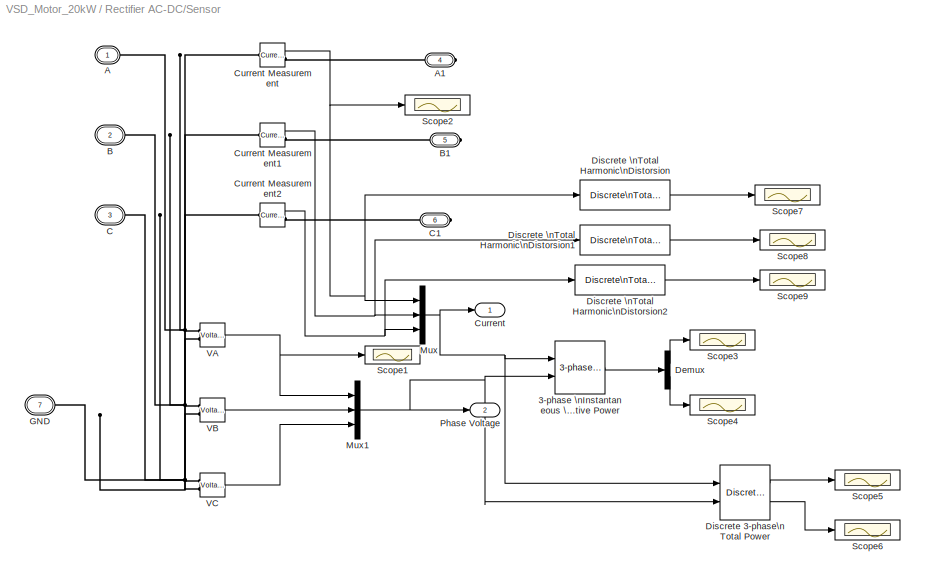
BLOCK [SubSystem] Rectifier AC-DC/Sensor
  Ports = [0, 2, 0, 0, 0, 4, 3]
  RequestExecContextInheritance = off
  SID = 286
BLOCK [Reference] Rectifier AC-DC/Sensor/3-phase \nInstantaneous \nActive & Reactive Power  REF=powerlib_extras/Measurements/3-phase \nInstantaneous \nActive & Reactive Power
  Ports = [2, 1]
  SID = 287
  SourceBlock = powerlib_extras/Measurements/3-phase \nInstantaneous \nActive & Reactive Power
  SourceProductBaseCode = PS
  SourceProductName = Simscape Electrical
  SourceType = 3-phase instantaneous active and reactive power
BLOCK [PMIOPort] Rectifier AC-DC/Sensor/A
  SID = 310
  Side = Left
BLOCK [PMIOPort] Rectifier AC-DC/Sensor/A1
  Port = 4
  SID = 313
  Side = Right
BLOCK [PMIOPort] Rectifier AC-DC/Sensor/B
  Port = 2
  SID = 311
  Side = Left
BLOCK [PMIOPort] Rectifier AC-DC/Sensor/B1
  Port = 5
  SID = 314
  Side = Right
BLOCK [PMIOPort] Rectifier AC-DC/Sensor/C
  Port = 3
  SID = 312
  Side = Left
BLOCK [PMIOPort] Rectifier AC-DC/Sensor/C1
  Port = 6
  SID = 315
  Side = Right
BLOCK [Outport] Rectifier AC-DC/Sensor/Current
  IconDisplay = Port number
  SID = 317
BLOCK [Reference] Rectifier AC-DC/Sensor/Current Measurement  REF=powerlib/Measurements/Current Measurement
  OutputType = Complex
  PSBequivalent = 0
  PhasorSimulation = off
  Ports = [0, 1, 0, 0, 0, 1, 1]
  SID = 288
  SourceBlock = powerlib/Measurements/Current Measurement
  SourceProductBaseCode = PS
  SourceProductName = Simscape Electrical
  SourceType = Current Measurement
BLOCK [Reference] Rectifier AC-DC/Sensor/Current Measurement1  REF=powerlib/Measurements/Current Measurement
  OutputType = Complex
  PSBequivalent = 0
  PhasorSimulation = off
  Ports = [0, 1, 0, 0, 0, 1, 1]
  SID = 289
  SourceBlock = powerlib/Measurements/Current Measurement
  SourceProductBaseCode = PS
  SourceProductName = Simscape Electrical
  SourceType = Current Measurement
BLOCK [Reference] Rectifier AC-DC/Sensor/Current Measurement2  REF=powerlib/Measurements/Current Measurement
  OutputType = Complex
  PSBequivalent = 0
  PhasorSimulation = off
  Ports = [0, 1, 0, 0, 0, 1, 1]
  SID = 290
  SourceBlock = powerlib/Measurements/Current Measurement
  SourceProductBaseCode = PS
  SourceProductName = Simscape Electrical
  SourceType = Current Measurement
BLOCK [Demux] Rectifier AC-DC/Sensor/Demux
  DisplayOption = bar
  Outputs = 2
  Ports = [1, 2]
  SID = 291
BLOCK [Reference] Rectifier AC-DC/Sensor/Discrete 3-phase\nTotal Power  REF=powerlib_extras/Discrete\nMeasurements/Discrete 3-phase\nTotal Power
  Freq = 50
  Par_Iinit = [0 0]
  Par_Vinit = [0 0]
  Ports = [2, 2]
  SID = 295
  SourceBlock = powerlib_extras/Discrete\nMeasurements/Discrete 3-phase\nTotal Power
  SourceProductBaseCode = PS
  SourceProductName = Simscape Electrical
  SourceType = Discrete 3-phase Total Power
  Ts = 5e-6
BLOCK [Reference] Rectifier AC-DC/Sensor/Discrete \nTotal  Harmonic\nDistorsion  REF=powerlib_extras/Discrete\nMeasurements/Discrete\nTotal Harmonic\nDistortion
  Freq = 50
  Ports = [1, 1]
  SID = 292
  SourceBlock = powerlib_extras/Discrete\nMeasurements/Discrete\nTotal Harmonic\nDistortion
  SourceProductBaseCode = PS
  SourceProductName = Simscape Electrical
  SourceType = Discrete Total Harmonic Distortion
  Ts = 5e-6
BLOCK [Reference] Rectifier AC-DC/Sensor/Discrete \nTotal  Harmonic\nDistorsion1  REF=powerlib_extras/Discrete\nMeasurements/Discrete\nTotal Harmonic\nDistortion
  Freq = 50
  Ports = [1, 1]
  SID = 293
  SourceBlock = powerlib_extras/Discrete\nMeasurements/Discrete\nTotal Harmonic\nDistortion
  SourceProductBaseCode = PS
  SourceProductName = Simscape Electrical
  SourceType = Discrete Total Harmonic Distortion
  Ts = 5e-6
BLOCK [Reference] Rectifier AC-DC/Sensor/Discrete \nTotal  Harmonic\nDistorsion2  REF=powerlib_extras/Discrete\nMeasurements/Discrete\nTotal Harmonic\nDistortion
  Freq = 50
  Ports = [1, 1]
  SID = 294
  SourceBlock = powerlib_extras/Discrete\nMeasurements/Discrete\nTotal Harmonic\nDistortion
  SourceProductBaseCode = PS
  SourceProductName = Simscape Electrical
  SourceType = Discrete Total Harmonic Distortion
  Ts = 5e-6
BLOCK [PMIOPort] Rectifier AC-DC/Sensor/GND
  Port = 7
  SID = 316
  Side = Left
BLOCK [Mux] Rectifier AC-DC/Sensor/Mux
  DisplayOption = bar
  Inputs = 3
  Ports = [3, 1]
  SID = 296
BLOCK [Mux] Rectifier AC-DC/Sensor/Mux1
  DisplayOption = bar
  Inputs = 3
  Ports = [3, 1]
  SID = 297
BLOCK [Outport] Rectifier AC-DC/Sensor/Phase Voltage
  IconDisplay = Port number
  Port = 2
  SID = 318
BLOCK [Scope] Rectifier AC-DC/Sensor/Scope1
  Floating = off
  NumInputPorts = 1
  Ports = [1]
  SID = 298
  ScopeSpecificationString = C++SS(StrPVP('Location','[210, 187, 1106, 773]'),StrPVP('Open','off'),MxPVP('AxesTitles',53,'struct(''axes1'',''%<SignalLabel>'')'),StrPVP('YMin','-100'),StrPVP('YMax','100'),StrPVP('SaveToWorkspace','on'),StrPVP('SaveName','V_a'),StrPVP('DataFormat','Array'),StrPVP('LimitDataPoints','off'),StrPVP('Decimation','5'),StrPVP('BlockParamSampleTime','0'),StrPVP('BlockParamSampleInput','off'))
BLOCK [Scope] Rectifier AC-DC/Sensor/Scope2
  Floating = off
  NumInputPorts = 1
  Ports = [1]
  SID = 299
  ScopeSpecificationString = C++SS(StrPVP('Location','[181, 193, 1077, 779]'),StrPVP('Open','off'),MxPVP('AxesTitles',53,'struct(''axes1'',''%<SignalLabel>'')'),StrPVP('YMin','-7.25'),StrPVP('YMax','-2.25'),StrPVP('SaveToWorkspace','on'),StrPVP('SaveName','I_a'),StrPVP('DataFormat','Array'),StrPVP('LimitDataPoints','off'),StrPVP('Decimation','5'),StrPVP('BlockParamSampleTime','0'),StrPVP('BlockParamSampleInput','off'))
BLOCK [Scope] Rectifier AC-DC/Sensor/Scope3
  Floating = off
  NumInputPorts = 1
  Ports = [1]
  SID = 300
  ScopeSpecificationString = C++SS(StrPVP('Location','[357, 249, 1253, 835]'),StrPVP('Open','off'),MxPVP('AxesTitles',53,'struct(''axes1'',''%<SignalLabel>'')'),StrPVP('YMin','-1050'),StrPVP('YMax','-965'),StrPVP('SaveToWorkspace','on'),StrPVP('SaveName','P'),StrPVP('DataFormat','Array'),StrPVP('LimitDataPoints','off'),StrPVP('Decimation','5'),StrPVP('BlockParamSampleTime','0'),StrPVP('BlockParamSampleInput','off'))
BLOCK [Scope] Rectifier AC-DC/Sensor/Scope4
  Floating = off
  NumInputPorts = 1
  Ports = [1]
  SID = 301
  ScopeSpecificationString = C++SS(StrPVP('Location','[181, 193, 1077, 779]'),StrPVP('Open','off'),MxPVP('AxesTitles',53,'struct(''axes1'',''%<SignalLabel>'')'),StrPVP('YMin','-100'),StrPVP('YMax','100'),StrPVP('SaveToWorkspace','on'),StrPVP('SaveName','Q'),StrPVP('DataFormat','Array'),StrPVP('LimitDataPoints','off'),StrPVP('Decimation','5'),StrPVP('BlockParamSampleTime','0'),StrPVP('BlockParamSampleInput','off'))
BLOCK [Scope] Rectifier AC-DC/Sensor/Scope5
  Floating = off
  NumInputPorts = 1
  Ports = [1]
  SID = 302
  ScopeSpecificationString = C++SS(StrPVP('Location','[181, 193, 1077, 779]'),StrPVP('Open','off'),MxPVP('AxesTitles',53,'struct(''axes1'',''%<SignalLabel>'')'),StrPVP('YMin','14475'),StrPVP('YMax','14900'),StrPVP('SaveToWorkspace','on'),StrPVP('SaveName','P_inst'),StrPVP('DataFormat','Array'),StrPVP('LimitDataPoints','off'),StrPVP('Decimation','5'),StrPVP('BlockParamSampleTime','0'),StrPVP('BlockParamSampleInput','off'))
BLOCK [Scope] Rectifier AC-DC/Sensor/Scope6
  Floating = off
  NumInputPorts = 1
  Ports = [1]
  SID = 303
  ScopeSpecificationString = C++SS(StrPVP('Location','[339, 224, 1235, 810]'),StrPVP('Open','off'),MxPVP('AxesTitles',53,'struct(''axes1'',''%<SignalLabel>'')'),StrPVP('YMin','-1400'),StrPVP('YMax','-1000'),StrPVP('SaveToWorkspace','on'),StrPVP('SaveName','P_ave'),StrPVP('DataFormat','Array'),StrPVP('LimitDataPoints','off'),StrPVP('Decimation','5'),StrPVP('BlockParamSampleTime','0'),StrPVP('BlockParamSampleInput','off'))
BLOCK [Scope] Rectifier AC-DC/Sensor/Scope7
  Floating = off
  NumInputPorts = 1
  Ports = [1]
  SID = 304
  ScopeSpecificationString = C++SS(StrPVP('Location','[181, 193, 1077, 779]'),StrPVP('Open','off'),MxPVP('AxesTitles',53,'struct(''axes1'',''%<SignalLabel>'')'),StrPVP('YMin','925'),StrPVP('YMax','1425'),StrPVP('SaveToWorkspace','on'),StrPVP('SaveName','THD_A'),StrPVP('DataFormat','Array'),StrPVP('LimitDataPoints','off'),StrPVP('Decimation','5'),StrPVP('BlockParamSampleTime','0'),StrPVP('BlockParamSampleInput','off'))
BLOCK [Scope] Rectifier AC-DC/Sensor/Scope8
  Floating = off
  NumInputPorts = 1
  Ports = [1]
  SID = 305
  ScopeSpecificationString = C++SS(StrPVP('Location','[181, 193, 1077, 779]'),StrPVP('Open','off'),MxPVP('AxesTitles',53,'struct(''axes1'',''%<SignalLabel>'')'),StrPVP('YMin','925'),StrPVP('YMax','1425'),StrPVP('SaveToWorkspace','on'),StrPVP('SaveName','THD_B'),StrPVP('DataFormat','Array'),StrPVP('LimitDataPoints','off'),StrPVP('Decimation','5'),StrPVP('BlockParamSampleTime','0'),StrPVP('BlockParamSampleInput','off'))
BLOCK [Scope] Rectifier AC-DC/Sensor/Scope9
  Floating = off
  NumInputPorts = 1
  Ports = [1]
  SID = 306
  ScopeSpecificationString = C++SS(StrPVP('Location','[181, 193, 1077, 779]'),StrPVP('Open','off'),MxPVP('AxesTitles',53,'struct(''axes1'',''%<SignalLabel>'')'),StrPVP('YMin','925'),StrPVP('YMax','1425'),StrPVP('SaveToWorkspace','on'),StrPVP('SaveName','THD_C'),StrPVP('DataFormat','Array'),StrPVP('LimitDataPoints','off'),StrPVP('Decimation','5'),StrPVP('BlockParamSampleTime','0'),StrPVP('BlockParamSampleInput','off'))
BLOCK [Reference] Rectifier AC-DC/Sensor/VA  REF=powerlib/Measurements/Voltage Measurement
  OutputType = Complex
  PSBequivalent = 0
  PhasorSimulation = off
  Ports = [0, 1, 0, 0, 0, 2]
  SID = 307
  SourceBlock = powerlib/Measurements/Voltage Measurement
  SourceProductBaseCode = PS
  SourceProductName = Simscape Electrical
  SourceType = Voltage Measurement
BLOCK [Reference] Rectifier AC-DC/Sensor/VB  REF=powerlib/Measurements/Voltage Measurement
  OutputType = Complex
  PSBequivalent = 0
  PhasorSimulation = off
  Ports = [0, 1, 0, 0, 0, 2]
  SID = 308
  SourceBlock = powerlib/Measurements/Voltage Measurement
  SourceProductBaseCode = PS
  SourceProductName = Simscape Electrical
  SourceType = Voltage Measurement
BLOCK [Reference] Rectifier AC-DC/Sensor/VC  REF=powerlib/Measurements/Voltage Measurement
  OutputType = Complex
  PSBequivalent = 0
  PhasorSimulation = off
  Ports = [0, 1, 0, 0, 0, 2]
  SID = 309
  SourceBlock = powerlib/Measurements/Voltage Measurement
  SourceProductBaseCode = PS
  SourceProductName = Simscape Electrical
  SourceType = Voltage Measurement
BLOCK [Reference] Rectifier AC-DC/Series RLC Branch  REF=powerlib/Elements/Series RLC Branch
  BranchType = R
  Capacitance = 1e-6
  Inductance = 1e-3
  InitialCurrent = 0
  InitialVoltage = 0
  LConnTagsString = __new0
  Measurements = None
  Ports = [0, 0, 0, 0, 0, 1, 1]
  RConnTagsString = __new0
  Resistance = 1e5
  SID = 319
  SetiL0 = off
  Setx0 = off
  SourceBlock = powerlib/Elements/Series RLC Branch
  SourceProductBaseCode = PS
  SourceProductName = Simscape Electrical
  SourceType = Series RLC Branch
BLOCK [Sum] Rectifier AC-DC/Sum
  IconShape = round
  Inputs = |+-
  Ports = [2, 1]
  SID = 320
BLOCK [Reference] Rectifier AC-DC/Three-Phase\nProgrammable\nVoltage Source  REF=powerlib/Electrical\nSources/Three-Phase\nProgrammable\nVoltage Source
  Amplitudes = [1 0.8 1.2 1.0]
  BusType = swing
  HarmonicA = [3 0.2 -25 0]
  HarmonicB = [2 0.15 35 2]
  HarmonicGeneration = off
  Ports = [0, 0, 0, 0, 0, 1, 3]
  PositiveSequence = [400 0 60]
  Pref = 0
  Qmax = inf
  Qmin = -inf
  Qref = 0
  SID = 321
  SourceBlock = powerlib/Electrical\nSources/Three-Phase\nProgrammable\nVoltage Source
  SourceProductBaseCode = PS
  SourceProductName = Simscape Electrical
  SourceType = Three-Phase Programmable Voltage Source
  TimeValues = [0 0.1 0.15 0.2]
  Timing = [0.05  3]
  VariationEntity = None
  VariationFrequency = 2
  VariationMagnitude = 0.3
  VariationPhaseA = off
  VariationRate = 10
  VariationStep = 0.5
  VariationTiming = [1 2]
  VariationType = Step
  VariationTypeAlt = Step
BLOCK [TransferFcn] Rectifier AC-DC/Transfer Fcn
  Denominator = [1 200]
  Numerator = [200]
  SID = 322
BLOCK [TransferFcn] Rectifier AC-DC/Transfer Fcn1
  Denominator = [1 2000]
  Numerator = [2000]
  SID = 323
BLOCK [Reference] Rectifier AC-DC/Universal Bridge  REF=powerlib/Power\nElectronics/Universal Bridge
  Arms = 3
  Device = MOSFET / Diodes
  ForwardVoltage = 0
  ForwardVoltages = [  2 1  ]
  GTOparameters = [ 10e-6 , 20e-6 ]
  IGBTparameters = [ 1e-6 , 2e-6 ]
  Lon = 0
  Measurements = None
  Measurements_2 = None
  Ports = [1, 0, 0, 0, 0, 3, 2]
  Ron = 0.2e-4
  SID = 324
  SnubberCapacitance = 1e-8
  SnubberResistance = 50000
  SourceBlock = powerlib/Power\nElectronics/Universal Bridge
  SourceProductBaseCode = PS
  SourceProductName = Simscape Electrical
  SourceType = Universal Bridge
  converterType = Rectifier
BLOCK [Reference] Rectifier AC-DC/Voltage Measurement  REF=powerlib/Measurements/Voltage Measurement
  OutputType = Complex
  PSBequivalent = 0
  PhasorSimulation = off
  Ports = [0, 1, 0, 0, 0, 2]
  SID = 325
  SourceBlock = powerlib/Measurements/Voltage Measurement
  SourceProductBaseCode = PS
  SourceProductName = Simscape Electrical
  SourceType = Voltage Measurement
BLOCK [Scope] Scope1
  Floating = off
  NumInputPorts = 1
  Ports = [1]
  SID = 330
  ScopeSpecificationString = Simulink.scopes.TimeScopeBlockCfg('CurrentConfiguration', extmgr.ConfigurationSet(extmgr.Configuration('Core','General UI',true),extmgr.Configuration('Core','Source UI',true),extmgr.Configuration('Sources','WiredSimulink',true,'DataLogging',true,'DataLoggingVariableName','Udc','DataLoggingSaveFormat','Array','DataLoggingDecimation','5','DataLoggingDecimateData',true),extmgr.Configuration('Visuals'...<+1755ch>
BLOCK [Scope] Scope12
  Floating = off
  NumInputPorts = 1
  Ports = [1]
  SID = 331
  ScopeSpecificationString = C++SS(StrPVP('Location','[273, 151, 1169, 930]'),StrPVP('Open','off'),MxPVP('AxesTitles',53,'struct(''axes1'',''%<SignalLabel>'')'),StrPVP('YMin','-4.5'),StrPVP('YMax','4.5'),StrPVP('SaveToWorkspace','on'),StrPVP('SaveName','Idc_1'),StrPVP('DataFormat','Array'),StrPVP('LimitDataPoints','off'),StrPVP('Decimation','5'),StrPVP('BlockParamSampleTime','0'),StrPVP('BlockParamSampleInput','off'))
BLOCK [Reference] Voltage Measurement  REF=powerlib/Measurements/Voltage Measurement
  OutputType = Complex
  PSBequivalent = 0
  PhasorSimulation = off
  Ports = [0, 1, 0, 0, 0, 2]
  SID = 332
  SourceBlock = powerlib/Measurements/Voltage Measurement
  SourceProductBaseCode = PS
  SourceProductName = Simscape Electrical
  SourceType = Voltage Measurement
BLOCK [Reference] powergui  REF=powerlib/powergui
  AutomaticDiscreteSolvers = off
  ContinueOnMaxIteration = off
  CurrentSourceSwitches = off
  DisableRonSwitches = off
  DisableSnubberDevices = off
  DisableVfSwitches = off
  DisplayEquations = off
  DisplayStyle = 1
  EnableUseOfTLC = off
  ErrMax = 1e-4
  ExternalGateDelay = off
  Frange = [0:2:500]
  FreqAxis = off
  FunctionMessages = off
  HookPort = off
  Interpol = off
  Iterations = 50
  MaxFrequency = 1000
  NonlinearTolerance = 0
  Pbase = 100e6
  Ports = []
  ResistiveCurrentMeasurement = off
  RestoreLinks = warning
  RmsSteady = 1
  SID = 333
  SPID = off
  SampleTime = 2e-6
  ShowGrid = off
  SolverType = Tustin/Backward Euler (TBE)
  SourceBlock = powerlib/powergui
  SourceProductBaseCode = PS
  SourceProductName = Simscape Electrical
  SourceType = PSB option menu block
  StartTime = 0.0
  SwTol = 0
  Ts = 0
  UnitsV = kV
  UnitsW = MW
  Xlog = on
  Ylog = off
  ZoomFFT = on
  buscounter = 0
  cycles = 1
  display = off
  echomessages = off
  frequency = 60
  frequencyindice = 0
  frequencyindicesteady = 1
  fundamental = 60
  methode = off
  nMaxIteration = 15
  save = off
  structure = 0
  variable = ZData
  x0status = blocks
ANNOTATION Inverter (DC-AC) and Motor_Controls/SV PWM/SVPWM: Subsystem1: calculate the work time of the vector
ANNOTATION Inverter (DC-AC) and Motor_Controls/SV PWM/SVPWM: sector calc: calculate the sector of the reference vector
ANNOTATION Rectifier AC-DC/Control scheme: Vdc
ANNOTATION Rectifier AC-DC/Control scheme/PLL/abc_to_dq0\nTransformation: V0= 1/3 (Va + Vb + Vc )
ANNOTATION Rectifier AC-DC/Control scheme/PLL/abc_to_dq0\nTransformation: Vd= 2/3 (Va*coswt + Vb*cos(wt-2pi/3) + Vc*cos(wt+2pi/3)
ANNOTATION Rectifier AC-DC/Control scheme/PLL/abc_to_dq0\nTransformation: Vq= -2/3 (Va*sinwt + Vb*sin(wt-2pi/3) + Vc*sin(wt+2pi/3)
ANNOTATION Rectifier AC-DC/Control scheme/SVPWM: Subsystem1: calculate the work time of the vector
ANNOTATION Rectifier AC-DC/Control scheme/SVPWM: sector calc: calculate the sector of the reference vector
ANNOTATION Rectifier AC-DC/Control scheme/abc_to_dq0\nTransformation1: V0= 1/3 (Va + Vb + Vc )
ANNOTATION Rectifier AC-DC/Control scheme/abc_to_dq0\nTransformation1: Vd= 2/3 (Va*coswt + Vb*cos(wt-2pi/3) + Vc*cos(wt+2pi/3)
ANNOTATION Rectifier AC-DC/Control scheme/abc_to_dq0\nTransformation1: Vq= -2/3 (Va*sinwt + Vb*sin(wt-2pi/3) + Vc*sin(wt+2pi/3)
ANNOTATION Rectifier AC-DC/Control scheme/abc_to_dq0\nTransformation2: V0= 1/3 (Va + Vb + Vc )
ANNOTATION Rectifier AC-DC/Control scheme/abc_to_dq0\nTransformation2: Vd= 2/3 (Va*coswt + Vb*cos(wt-2pi/3) + Vc*cos(wt+2pi/3)
ANNOTATION Rectifier AC-DC/Control scheme/abc_to_dq0\nTransformation2: Vq= -2/3 (Va*sinwt + Vb*sin(wt-2pi/3) + Vc*sin(wt+2pi/3)
LINE Current Measurement:1 -> Scope12:1
LINE Inverter (DC-AC) and Motor_Controls/Constant1:1 -> Inverter (DC-AC) and Motor_Controls/Sum3:1
LINE Inverter (DC-AC) and Motor_Controls/Constant2:1 -> Inverter (DC-AC) and Motor_Controls/Sum1:1
LINE Inverter (DC-AC) and Motor_Controls/Constant3:1 -> Inverter (DC-AC) and Motor_Controls/POWER MODULE:1
LINE Inverter (DC-AC) and Motor_Controls/Demux:1 -> Inverter (DC-AC) and Motor_Controls/clark:1
LINE Inverter (DC-AC) and Motor_Controls/Demux:2 -> Inverter (DC-AC) and Motor_Controls/clark:2
LINE Inverter (DC-AC) and Motor_Controls/Demux:3 -> Inverter (DC-AC) and Motor_Controls/position5:1
LINE Inverter (DC-AC) and Motor_Controls/Invpark/Product1:1 -> Inverter (DC-AC) and Motor_Controls/Invpark/Sum2:1
LINE Inverter (DC-AC) and Motor_Controls/Invpark/Product2:1 -> Inverter (DC-AC) and Motor_Controls/Invpark/Sum3:2
LINE Inverter (DC-AC) and Motor_Controls/Invpark/Product3:1 -> Inverter (DC-AC) and Motor_Controls/Invpark/Sum3:1
LINE Inverter (DC-AC) and Motor_Controls/Invpark/Product:1 -> Inverter (DC-AC) and Motor_Controls/Invpark/Sum2:2
LINE Inverter (DC-AC) and Motor_Controls/Invpark/Sum2:1 -> Inverter (DC-AC) and Motor_Controls/Invpark/VD:1
LINE Inverter (DC-AC) and Motor_Controls/Invpark/Sum3:1 -> Inverter (DC-AC) and Motor_Controls/Invpark/VQ:1
NET Inverter (DC-AC) and Motor_Controls/Invpark/Trigonometric\nFunction1:1 -> Inverter (DC-AC) and Motor_Controls/Invpark/Product3:2, Inverter (DC-AC) and Motor_Controls/Invpark/Product:2
NET Inverter (DC-AC) and Motor_Controls/Invpark/Trigonometric\nFunction:1 -> Inverter (DC-AC) and Motor_Controls/Invpark/Product1:2, Inverter (DC-AC) and Motor_Controls/Invpark/Product2:2
NET Inverter (DC-AC) and Motor_Controls/Invpark/Vd:1 -> Inverter (DC-AC) and Motor_Controls/Invpark/Product2:1, Inverter (DC-AC) and Motor_Controls/Invpark/Product:1
NET Inverter (DC-AC) and Motor_Controls/Invpark/Vq:1 -> Inverter (DC-AC) and Motor_Controls/Invpark/Product1:1, Inverter (DC-AC) and Motor_Controls/Invpark/Product3:1
NET Inverter (DC-AC) and Motor_Controls/Invpark/theta:1 -> Inverter (DC-AC) and Motor_Controls/Invpark/Trigonometric\nFunction1:1, Inverter (DC-AC) and Motor_Controls/Invpark/Trigonometric\nFunction:1
NET Inverter (DC-AC) and Motor_Controls/Invpark:1 -> Inverter (DC-AC) and Motor_Controls/SV PWM:1, Inverter (DC-AC) and Motor_Controls/position3:1
LINE Inverter (DC-AC) and Motor_Controls/Invpark:2 -> Inverter (DC-AC) and Motor_Controls/SV PWM:2
LINE Inverter (DC-AC) and Motor_Controls/POWER MODULE/Demux2:1 -> Inverter (DC-AC) and Motor_Controls/POWER MODULE/Mux:1
LINE Inverter (DC-AC) and Motor_Controls/POWER MODULE/Demux2:11 -> Inverter (DC-AC) and Motor_Controls/POWER MODULE/Gain:1
LINE Inverter (DC-AC) and Motor_Controls/POWER MODULE/Demux2:12 -> Inverter (DC-AC) and Motor_Controls/POWER MODULE/Gain1:1
LINE Inverter (DC-AC) and Motor_Controls/POWER MODULE/Demux2:13 -> Inverter (DC-AC) and Motor_Controls/POWER MODULE/Torque:1
LINE Inverter (DC-AC) and Motor_Controls/POWER MODULE/Demux2:2 -> Inverter (DC-AC) and Motor_Controls/POWER MODULE/Mux:2
LINE Inverter (DC-AC) and Motor_Controls/POWER MODULE/Demux2:3 -> Inverter (DC-AC) and Motor_Controls/POWER MODULE/Mux:3
LINE Inverter (DC-AC) and Motor_Controls/POWER MODULE/Gain1:1 -> Inverter (DC-AC) and Motor_Controls/POWER MODULE/theta:1
LINE Inverter (DC-AC) and Motor_Controls/POWER MODULE/Gain:1 -> Inverter (DC-AC) and Motor_Controls/POWER MODULE/we:1
LINE Inverter (DC-AC) and Motor_Controls/POWER MODULE/Load:1 -> Inverter (DC-AC) and Motor_Controls/POWER MODULE/SRPM Machine2:1
LINE Inverter (DC-AC) and Motor_Controls/POWER MODULE/Mux:1 -> Inverter (DC-AC) and Motor_Controls/POWER MODULE/Is_abc:1
LINE Inverter (DC-AC) and Motor_Controls/POWER MODULE/SRPM Machine2:1 -> Inverter (DC-AC) and Motor_Controls/POWER MODULE/Demux2:1
LINE Inverter (DC-AC) and Motor_Controls/POWER MODULE/vab:1 -> Inverter (DC-AC) and Motor_Controls/POWER MODULE/Uab:1
LINE Inverter (DC-AC) and Motor_Controls/POWER MODULE/vbc:1 -> Inverter (DC-AC) and Motor_Controls/POWER MODULE/Uabc:1
LINE Inverter (DC-AC) and Motor_Controls/POWER MODULE:1 -> Inverter (DC-AC) and Motor_Controls/Demux:1
NET Inverter (DC-AC) and Motor_Controls/POWER MODULE:2 -> Inverter (DC-AC) and Motor_Controls/Sum1:2, Inverter (DC-AC) and Motor_Controls/position2:1
NET Inverter (DC-AC) and Motor_Controls/POWER MODULE:3 -> Inverter (DC-AC) and Motor_Controls/Invpark:3, Inverter (DC-AC) and Motor_Controls/Park:3
LINE Inverter (DC-AC) and Motor_Controls/POWER MODULE:4 -> Inverter (DC-AC) and Motor_Controls/position1:1
LINE Inverter (DC-AC) and Motor_Controls/POWER MODULE:5 -> Inverter (DC-AC) and Motor_Controls/position4:1
NET Inverter (DC-AC) and Motor_Controls/Park/IQ:1 -> Inverter (DC-AC) and Motor_Controls/Park/Product1:1, Inverter (DC-AC) and Motor_Controls/Park/Product3:1
LINE Inverter (DC-AC) and Motor_Controls/Park/Product1:1 -> Inverter (DC-AC) and Motor_Controls/Park/Sum1:1
LINE Inverter (DC-AC) and Motor_Controls/Park/Product2:1 -> Inverter (DC-AC) and Motor_Controls/Park/Sum2:2
LINE Inverter (DC-AC) and Motor_Controls/Park/Product3:1 -> Inverter (DC-AC) and Motor_Controls/Park/Sum2:1
LINE Inverter (DC-AC) and Motor_Controls/Park/Product:1 -> Inverter (DC-AC) and Motor_Controls/Park/Sum1:2
LINE Inverter (DC-AC) and Motor_Controls/Park/Sum1:1 -> Inverter (DC-AC) and Motor_Controls/Park/id:1
LINE Inverter (DC-AC) and Motor_Controls/Park/Sum2:1 -> Inverter (DC-AC) and Motor_Controls/Park/iq:1
NET Inverter (DC-AC) and Motor_Controls/Park/Trigonometric\nFunction1:1 -> Inverter (DC-AC) and Motor_Controls/Park/Product3:2, Inverter (DC-AC) and Motor_Controls/Park/Product:2
NET Inverter (DC-AC) and Motor_Controls/Park/Trigonometric\nFunction:1 -> Inverter (DC-AC) and Motor_Controls/Park/Product1:2, Inverter (DC-AC) and Motor_Controls/Park/Product2:2
NET Inverter (DC-AC) and Motor_Controls/Park/iD:1 -> Inverter (DC-AC) and Motor_Controls/Park/Product2:1, Inverter (DC-AC) and Motor_Controls/Park/Product:1
NET Inverter (DC-AC) and Motor_Controls/Park/theta:1 -> Inverter (DC-AC) and Motor_Controls/Park/Trigonometric\nFunction1:1, Inverter (DC-AC) and Motor_Controls/Park/Trigonometric\nFunction:1
LINE Inverter (DC-AC) and Motor_Controls/Park:1 -> Inverter (DC-AC) and Motor_Controls/Sum2:2
LINE Inverter (DC-AC) and Motor_Controls/Park:2 -> Inverter (DC-AC) and Motor_Controls/Sum3:2
LINE Inverter (DC-AC) and Motor_Controls/SV PWM/SVPWM/Mux1:1 -> Inverter (DC-AC) and Motor_Controls/SV PWM/SVPWM/Scope5:1
NET Inverter (DC-AC) and Motor_Controls/SV PWM/SVPWM/T1:1 -> Inverter (DC-AC) and Motor_Controls/SV PWM/SVPWM/time calc:2, Inverter (DC-AC) and Motor_Controls/SV PWM/SVPWM/time convert1:1
LINE Inverter (DC-AC) and Motor_Controls/SV PWM/SVPWM/Udc:1 -> Inverter (DC-AC) and Motor_Controls/SV PWM/SVPWM/time calc:1
NET Inverter (DC-AC) and Motor_Controls/SV PWM/SVPWM/Valf:1 -> Inverter (DC-AC) and Motor_Controls/SV PWM/SVPWM/Scope1:1, Inverter (DC-AC) and Motor_Controls/SV PWM/SVPWM/sector calc:1, Inverter (DC-AC) and Motor_Controls/SV PWM/SVPWM/time calc:4
NET Inverter (DC-AC) and Motor_Controls/SV PWM/SVPWM/Vbeta:1 -> Inverter (DC-AC) and Motor_Controls/SV PWM/SVPWM/Scope1:2, Inverter (DC-AC) and Motor_Controls/SV PWM/SVPWM/sector calc:2, Inverter (DC-AC) and Motor_Controls/SV PWM/SVPWM/time calc:3
LINE Inverter (DC-AC) and Motor_Controls/SV PWM/SVPWM/pulse generater/Mux:1 -> Inverter (DC-AC) and Motor_Controls/SV PWM/SVPWM/pulse generater/pulse:1
LINE Inverter (DC-AC) and Motor_Controls/SV PWM/SVPWM/pulse generater/Sum1:1 -> Inverter (DC-AC) and Motor_Controls/SV PWM/SVPWM/pulse generater/Switch:2
LINE Inverter (DC-AC) and Motor_Controls/SV PWM/SVPWM/pulse generater/Sum2:1 -> Inverter (DC-AC) and Motor_Controls/SV PWM/SVPWM/pulse generater/Switch1:2
LINE Inverter (DC-AC) and Motor_Controls/SV PWM/SVPWM/pulse generater/Sum3:1 -> Inverter (DC-AC) and Motor_Controls/SV PWM/SVPWM/pulse generater/Switch2:2
LINE Inverter (DC-AC) and Motor_Controls/SV PWM/SVPWM/pulse generater/Switch1:1 -> Inverter (DC-AC) and Motor_Controls/SV PWM/SVPWM/pulse generater/Mux:2
LINE Inverter (DC-AC) and Motor_Controls/SV PWM/SVPWM/pulse generater/Switch2:1 -> Inverter (DC-AC) and Motor_Controls/SV PWM/SVPWM/pulse generater/Mux:3
LINE Inverter (DC-AC) and Motor_Controls/SV PWM/SVPWM/pulse generater/Switch:1 -> Inverter (DC-AC) and Motor_Controls/SV PWM/SVPWM/pulse generater/Mux:1
NET Inverter (DC-AC) and Motor_Controls/SV PWM/SVPWM/pulse generater/T1:1 -> Inverter (DC-AC) and Motor_Controls/SV PWM/SVPWM/pulse generater/Switch1:1, Inverter (DC-AC) and Motor_Controls/SV PWM/SVPWM/pulse generater/Switch2:1, Inverter (DC-AC) and Motor_Controls/SV PWM/SVPWM/pulse generater/Switch:1
NET Inverter (DC-AC) and Motor_Controls/SV PWM/SVPWM/pulse generater/T:1 -> Inverter (DC-AC) and Motor_Controls/SV PWM/SVPWM/pulse generater/Switch1:3, Inverter (DC-AC) and Motor_Controls/SV PWM/SVPWM/pulse generater/Switch2:3, Inverter (DC-AC) and Motor_Controls/SV PWM/SVPWM/pulse generater/Switch:3
LINE Inverter (DC-AC) and Motor_Controls/SV PWM/SVPWM/pulse generater/Tcm1:1 -> Inverter (DC-AC) and Motor_Controls/SV PWM/SVPWM/pulse generater/Sum1:2
LINE Inverter (DC-AC) and Motor_Controls/SV PWM/SVPWM/pulse generater/Tcm2:1 -> Inverter (DC-AC) and Motor_Controls/SV PWM/SVPWM/pulse generater/Sum2:2
LINE Inverter (DC-AC) and Motor_Controls/SV PWM/SVPWM/pulse generater/Tcm3:1 -> Inverter (DC-AC) and Motor_Controls/SV PWM/SVPWM/pulse generater/Sum3:2
NET Inverter (DC-AC) and Motor_Controls/SV PWM/SVPWM/pulse generater/Tri:1 -> Inverter (DC-AC) and Motor_Controls/SV PWM/SVPWM/pulse generater/Sum1:1, Inverter (DC-AC) and Motor_Controls/SV PWM/SVPWM/pulse generater/Sum2:1, Inverter (DC-AC) and Motor_Controls/SV PWM/SVPWM/pulse generater/Sum3:1
LINE Inverter (DC-AC) and Motor_Controls/SV PWM/SVPWM/pulse generater:1 -> Inverter (DC-AC) and Motor_Controls/SV PWM/SVPWM/Out1:1
NET Inverter (DC-AC) and Motor_Controls/SV PWM/SVPWM/sector calc/Constant1:1 -> Inverter (DC-AC) and Motor_Controls/SV PWM/SVPWM/sector calc/Switch1:3, Inverter (DC-AC) and Motor_Controls/SV PWM/SVPWM/sector calc/Switch2:3, Inverter (DC-AC) and Motor_Controls/SV PWM/SVPWM/sector calc/Switch:3
NET Inverter (DC-AC) and Motor_Controls/SV PWM/SVPWM/sector calc/Constant:1 -> Inverter (DC-AC) and Motor_Controls/SV PWM/SVPWM/sector calc/Switch1:1, Inverter (DC-AC) and Motor_Controls/SV PWM/SVPWM/sector calc/Switch2:1, Inverter (DC-AC) and Motor_Controls/SV PWM/SVPWM/sector calc/Switch:1
LINE Inverter (DC-AC) and Motor_Controls/SV PWM/SVPWM/sector calc/Gain1:1 -> Inverter (DC-AC) and Motor_Controls/SV PWM/SVPWM/sector calc/Sum:1
LINE Inverter (DC-AC) and Motor_Controls/SV PWM/SVPWM/sector calc/Gain2:1 -> Inverter (DC-AC) and Motor_Controls/SV PWM/SVPWM/sector calc/Sum2:2
LINE Inverter (DC-AC) and Motor_Controls/SV PWM/SVPWM/sector calc/Gain3:1 -> Inverter (DC-AC) and Motor_Controls/SV PWM/SVPWM/sector calc/Sum2:3
NET Inverter (DC-AC) and Motor_Controls/SV PWM/SVPWM/sector calc/Gain:1 -> Inverter (DC-AC) and Motor_Controls/SV PWM/SVPWM/sector calc/Gain1:1, Inverter (DC-AC) and Motor_Controls/SV PWM/SVPWM/sector calc/Sum1:1
LINE Inverter (DC-AC) and Motor_Controls/SV PWM/SVPWM/sector calc/Saturation:1 -> Inverter (DC-AC) and Motor_Controls/SV PWM/SVPWM/sector calc/N:1
LINE Inverter (DC-AC) and Motor_Controls/SV PWM/SVPWM/sector calc/Sum1:1 -> Inverter (DC-AC) and Motor_Controls/SV PWM/SVPWM/sector calc/Switch2:2
LINE Inverter (DC-AC) and Motor_Controls/SV PWM/SVPWM/sector calc/Sum2:1 -> Inverter (DC-AC) and Motor_Controls/SV PWM/SVPWM/sector calc/Saturation:1
LINE Inverter (DC-AC) and Motor_Controls/SV PWM/SVPWM/sector calc/Sum:1 -> Inverter (DC-AC) and Motor_Controls/SV PWM/SVPWM/sector calc/Switch1:2
LINE Inverter (DC-AC) and Motor_Controls/SV PWM/SVPWM/sector calc/Switch1:1 -> Inverter (DC-AC) and Motor_Controls/SV PWM/SVPWM/sector calc/Gain2:1
LINE Inverter (DC-AC) and Motor_Controls/SV PWM/SVPWM/sector calc/Switch2:1 -> Inverter (DC-AC) and Motor_Controls/SV PWM/SVPWM/sector calc/Gain3:1
LINE Inverter (DC-AC) and Motor_Controls/SV PWM/SVPWM/sector calc/Switch:1 -> Inverter (DC-AC) and Motor_Controls/SV PWM/SVPWM/sector calc/Sum2:1
LINE Inverter (DC-AC) and Motor_Controls/SV PWM/SVPWM/sector calc/ualf:1 -> Inverter (DC-AC) and Motor_Controls/SV PWM/SVPWM/sector calc/Gain:1
NET Inverter (DC-AC) and Motor_Controls/SV PWM/SVPWM/sector calc/ubeta:1 -> Inverter (DC-AC) and Motor_Controls/SV PWM/SVPWM/sector calc/Sum1:2, Inverter (DC-AC) and Motor_Controls/SV PWM/SVPWM/sector calc/Sum:2, Inverter (DC-AC) and Motor_Controls/SV PWM/SVPWM/sector calc/Switch:2
NET Inverter (DC-AC) and Motor_Controls/SV PWM/SVPWM/sector calc:1 -> Inverter (DC-AC) and Motor_Controls/SV PWM/SVPWM/Scope2:1, Inverter (DC-AC) and Motor_Controls/SV PWM/SVPWM/time convert2:4, Inverter (DC-AC) and Motor_Controls/SV PWM/SVPWM/time convert:4
LINE Inverter (DC-AC) and Motor_Controls/SV PWM/SVPWM/time calc/In1:1 -> Inverter (DC-AC) and Motor_Controls/SV PWM/SVPWM/time calc/Mux:1
LINE Inverter (DC-AC) and Motor_Controls/SV PWM/SVPWM/time calc/In2:1 -> Inverter (DC-AC) and Motor_Controls/SV PWM/SVPWM/time calc/Mux:2
LINE Inverter (DC-AC) and Motor_Controls/SV PWM/SVPWM/time calc/In3:1 -> Inverter (DC-AC) and Motor_Controls/SV PWM/SVPWM/time calc/Mux:3
LINE Inverter (DC-AC) and Motor_Controls/SV PWM/SVPWM/time calc/In4:1 -> Inverter (DC-AC) and Motor_Controls/SV PWM/SVPWM/time calc/Mux:4
NET Inverter (DC-AC) and Motor_Controls/SV PWM/SVPWM/time calc/Mux:1 -> Inverter (DC-AC) and Motor_Controls/SV PWM/SVPWM/time calc/ualf1:1, Inverter (DC-AC) and Motor_Controls/SV PWM/SVPWM/time calc/ualf2:1, Inverter (DC-AC) and Motor_Controls/SV PWM/SVPWM/time calc/ualf3:1
LINE Inverter (DC-AC) and Motor_Controls/SV PWM/SVPWM/time calc/ualf1:1 -> Inverter (DC-AC) and Motor_Controls/SV PWM/SVPWM/time calc/X:1
LINE Inverter (DC-AC) and Motor_Controls/SV PWM/SVPWM/time calc/ualf2:1 -> Inverter (DC-AC) and Motor_Controls/SV PWM/SVPWM/time calc/Y:1
LINE Inverter (DC-AC) and Motor_Controls/SV PWM/SVPWM/time calc/ualf3:1 -> Inverter (DC-AC) and Motor_Controls/SV PWM/SVPWM/time calc/Z:1
LINE Inverter (DC-AC) and Motor_Controls/SV PWM/SVPWM/time calc:1 -> Inverter (DC-AC) and Motor_Controls/SV PWM/SVPWM/time convert:1
LINE Inverter (DC-AC) and Motor_Controls/SV PWM/SVPWM/time calc:2 -> Inverter (DC-AC) and Motor_Controls/SV PWM/SVPWM/time convert:2
LINE Inverter (DC-AC) and Motor_Controls/SV PWM/SVPWM/time calc:3 -> Inverter (DC-AC) and Motor_Controls/SV PWM/SVPWM/time convert:3
NET Inverter (DC-AC) and Motor_Controls/SV PWM/SVPWM/time convert/Gain1:1 -> Inverter (DC-AC) and Motor_Controls/SV PWM/SVPWM/time convert/Multiport\nSwitch1:6, Inverter (DC-AC) and Motor_Controls/SV PWM/SVPWM/time convert/Multiport\nSwitch2:7
NET Inverter (DC-AC) and Motor_Controls/SV PWM/SVPWM/time convert/Gain2:1 -> Inverter (DC-AC) and Motor_Controls/SV PWM/SVPWM/time convert/Multiport\nSwitch1:7, Inverter (DC-AC) and Motor_Controls/SV PWM/SVPWM/time convert/Multiport\nSwitch2:4
NET Inverter (DC-AC) and Motor_Controls/SV PWM/SVPWM/time convert/Gain:1 -> Inverter (DC-AC) and Motor_Controls/SV PWM/SVPWM/time convert/Multiport\nSwitch1:3, Inverter (DC-AC) and Motor_Controls/SV PWM/SVPWM/time convert/Multiport\nSwitch2:5
LINE Inverter (DC-AC) and Motor_Controls/SV PWM/SVPWM/time convert/Multiport\nSwitch1:1 -> Inverter (DC-AC) and Motor_Controls/SV PWM/SVPWM/time convert/t2:1
LINE Inverter (DC-AC) and Motor_Controls/SV PWM/SVPWM/time convert/Multiport\nSwitch2:1 -> Inverter (DC-AC) and Motor_Controls/SV PWM/SVPWM/time convert/t1:1
NET Inverter (DC-AC) and Motor_Controls/SV PWM/SVPWM/time convert/N:1 -> Inverter (DC-AC) and Motor_Controls/SV PWM/SVPWM/time convert/Multiport\nSwitch1:1, Inverter (DC-AC) and Motor_Controls/SV PWM/SVPWM/time convert/Multiport\nSwitch2:1
NET Inverter (DC-AC) and Motor_Controls/SV PWM/SVPWM/time convert/X:1 -> Inverter (DC-AC) and Motor_Controls/SV PWM/SVPWM/time convert/Gain:1, Inverter (DC-AC) and Motor_Controls/SV PWM/SVPWM/time convert/Multiport\nSwitch1:4, Inverter (DC-AC) and Motor_Controls/SV PWM/SVPWM/time convert/Multiport\nSwitch2:6
NET Inverter (DC-AC) and Motor_Controls/SV PWM/SVPWM/time convert/Y:1 -> Inverter (DC-AC) and Motor_Controls/SV PWM/SVPWM/time convert/Gain1:1, Inverter (DC-AC) and Motor_Controls/SV PWM/SVPWM/time convert/Multiport\nSwitch1:2, Inverter (DC-AC) and Motor_Controls/SV PWM/SVPWM/time convert/Multiport\nSwitch2:3
NET Inverter (DC-AC) and Motor_Controls/SV PWM/SVPWM/time convert/Z:1 -> Inverter (DC-AC) and Motor_Controls/SV PWM/SVPWM/time convert/Gain2:1, Inverter (DC-AC) and Motor_Controls/SV PWM/SVPWM/time convert/Multiport\nSwitch1:5, Inverter (DC-AC) and Motor_Controls/SV PWM/SVPWM/time convert/Multiport\nSwitch2:2
LINE Inverter (DC-AC) and Motor_Controls/SV PWM/SVPWM/time convert1/Gain1:1 -> Inverter (DC-AC) and Motor_Controls/SV PWM/SVPWM/time convert1/Sum2:2
LINE Inverter (DC-AC) and Motor_Controls/SV PWM/SVPWM/time convert1/Gain2:1 -> Inverter (DC-AC) and Motor_Controls/SV PWM/SVPWM/time convert1/Sum3:2
NET Inverter (DC-AC) and Motor_Controls/SV PWM/SVPWM/time convert1/Gain:1 -> Inverter (DC-AC) and Motor_Controls/SV PWM/SVPWM/time convert1/Sum2:1, Inverter (DC-AC) and Motor_Controls/SV PWM/SVPWM/time convert1/Ta:1
NET Inverter (DC-AC) and Motor_Controls/SV PWM/SVPWM/time convert1/Mux:1 -> Inverter (DC-AC) and Motor_Controls/SV PWM/SVPWM/time convert1/ualf1:1, Inverter (DC-AC) and Motor_Controls/SV PWM/SVPWM/time convert1/ualf4:1
LINE Inverter (DC-AC) and Motor_Controls/SV PWM/SVPWM/time convert1/Sum1:1 -> Inverter (DC-AC) and Motor_Controls/SV PWM/SVPWM/time convert1/Gain:1
NET Inverter (DC-AC) and Motor_Controls/SV PWM/SVPWM/time convert1/Sum2:1 -> Inverter (DC-AC) and Motor_Controls/SV PWM/SVPWM/time convert1/Sum3:1, Inverter (DC-AC) and Motor_Controls/SV PWM/SVPWM/time convert1/Tb:1
LINE Inverter (DC-AC) and Motor_Controls/SV PWM/SVPWM/time convert1/Sum3:1 -> Inverter (DC-AC) and Motor_Controls/SV PWM/SVPWM/time convert1/Tc:1
NET Inverter (DC-AC) and Motor_Controls/SV PWM/SVPWM/time convert1/Sum:1 -> Inverter (DC-AC) and Motor_Controls/SV PWM/SVPWM/time convert1/Switch1:2, Inverter (DC-AC) and Motor_Controls/SV PWM/SVPWM/time convert1/Switch:2
NET Inverter (DC-AC) and Motor_Controls/SV PWM/SVPWM/time convert1/Switch1:1 -> Inverter (DC-AC) and Motor_Controls/SV PWM/SVPWM/time convert1/Gain2:1, Inverter (DC-AC) and Motor_Controls/SV PWM/SVPWM/time convert1/Sum1:3
NET Inverter (DC-AC) and Motor_Controls/SV PWM/SVPWM/time convert1/Switch:1 -> Inverter (DC-AC) and Motor_Controls/SV PWM/SVPWM/time convert1/Gain1:1, Inverter (DC-AC) and Motor_Controls/SV PWM/SVPWM/time convert1/Sum1:2
NET Inverter (DC-AC) and Motor_Controls/SV PWM/SVPWM/time convert1/Ts:1 -> Inverter (DC-AC) and Motor_Controls/SV PWM/SVPWM/time convert1/Mux:1, Inverter (DC-AC) and Motor_Controls/SV PWM/SVPWM/time convert1/Sum1:1, Inverter (DC-AC) and Motor_Controls/SV PWM/SVPWM/time convert1/Sum:1
NET Inverter (DC-AC) and Motor_Controls/SV PWM/SVPWM/time convert1/t1:1 -> Inverter (DC-AC) and Motor_Controls/SV PWM/SVPWM/time convert1/Mux:2, Inverter (DC-AC) and Motor_Controls/SV PWM/SVPWM/time convert1/Sum:2, Inverter (DC-AC) and Motor_Controls/SV PWM/SVPWM/time convert1/Switch:1
NET Inverter (DC-AC) and Motor_Controls/SV PWM/SVPWM/time convert1/t2:1 -> Inverter (DC-AC) and Motor_Controls/SV PWM/SVPWM/time convert1/Mux:3, Inverter (DC-AC) and Motor_Controls/SV PWM/SVPWM/time convert1/Sum:3, Inverter (DC-AC) and Motor_Controls/SV PWM/SVPWM/time convert1/Switch1:1
LINE Inverter (DC-AC) and Motor_Controls/SV PWM/SVPWM/time convert1/ualf1:1 -> Inverter (DC-AC) and Motor_Controls/SV PWM/SVPWM/time convert1/Switch1:3
LINE Inverter (DC-AC) and Motor_Controls/SV PWM/SVPWM/time convert1/ualf4:1 -> Inverter (DC-AC) and Motor_Controls/SV PWM/SVPWM/time convert1/Switch:3
LINE Inverter (DC-AC) and Motor_Controls/SV PWM/SVPWM/time convert1:1 -> Inverter (DC-AC) and Motor_Controls/SV PWM/SVPWM/time convert2:1
LINE Inverter (DC-AC) and Motor_Controls/SV PWM/SVPWM/time convert1:2 -> Inverter (DC-AC) and Motor_Controls/SV PWM/SVPWM/time convert2:2
LINE Inverter (DC-AC) and Motor_Controls/SV PWM/SVPWM/time convert1:3 -> Inverter (DC-AC) and Motor_Controls/SV PWM/SVPWM/time convert2:3
LINE Inverter (DC-AC) and Motor_Controls/SV PWM/SVPWM/time convert2/Multiport\nSwitch1:1 -> Inverter (DC-AC) and Motor_Controls/SV PWM/SVPWM/time convert2/Tcm2:1
LINE Inverter (DC-AC) and Motor_Controls/SV PWM/SVPWM/time convert2/Multiport\nSwitch2:1 -> Inverter (DC-AC) and Motor_Controls/SV PWM/SVPWM/time convert2/Tcm1:1
LINE Inverter (DC-AC) and Motor_Controls/SV PWM/SVPWM/time convert2/Multiport\nSwitch3:1 -> Inverter (DC-AC) and Motor_Controls/SV PWM/SVPWM/time convert2/Tcm3:1
NET Inverter (DC-AC) and Motor_Controls/SV PWM/SVPWM/time convert2/N:1 -> Inverter (DC-AC) and Motor_Controls/SV PWM/SVPWM/time convert2/Multiport\nSwitch1:1, Inverter (DC-AC) and Motor_Controls/SV PWM/SVPWM/time convert2/Multiport\nSwitch2:1, Inverter (DC-AC) and Motor_Controls/SV PWM/SVPWM/time convert2/Multiport\nSwitch3:1
NET Inverter (DC-AC) and Motor_Controls/SV PWM/SVPWM/time convert2/Ta:1 -> Inverter (DC-AC) and Motor_Controls/SV PWM/SVPWM/time convert2/Multiport\nSwitch1:2, Inverter (DC-AC) and Motor_Controls/SV PWM/SVPWM/time convert2/Multiport\nSwitch1:6, Inverter (DC-AC) and Motor_Controls/SV PWM/SVPWM/time convert2/Multiport\nSwitch2:3, Inverter (DC-AC) and Motor_Controls/SV PWM/SVPWM/time convert2/Multiport\nSwitch2:4, Inverter (DC-AC) and Motor_Controls/SV PWM/SVPWM/time convert2/Multiport\nSwitch3:5, Inverter (DC-AC) and Motor_Controls/SV PWM/SVPWM/time convert2/Multiport\nSwitch3:7
NET Inverter (DC-AC) and Motor_Controls/SV PWM/SVPWM/time convert2/Tb:1 -> Inverter (DC-AC) and Motor_Controls/SV PWM/SVPWM/time convert2/Multiport\nSwitch1:4, Inverter (DC-AC) and Motor_Controls/SV PWM/SVPWM/time convert2/Multiport\nSwitch1:5, Inverter (DC-AC) and Motor_Controls/SV PWM/SVPWM/time convert2/Multiport\nSwitch2:2, Inverter (DC-AC) and Motor_Controls/SV PWM/SVPWM/time convert2/Multiport\nSwitch2:7, Inverter (DC-AC) and Motor_Controls/SV PWM/SVPWM/time convert2/Multiport\nSwitch3:3, Inverter (DC-AC) and Motor_Controls/SV PWM/SVPWM/time convert2/Multiport\nSwitch3:6
NET Inverter (DC-AC) and Motor_Controls/SV PWM/SVPWM/time convert2/Tc:1 -> Inverter (DC-AC) and Motor_Controls/SV PWM/SVPWM/time convert2/Multiport\nSwitch1:3, Inverter (DC-AC) and Motor_Controls/SV PWM/SVPWM/time convert2/Multiport\nSwitch1:7, Inverter (DC-AC) and Motor_Controls/SV PWM/SVPWM/time convert2/Multiport\nSwitch2:5, Inverter (DC-AC) and Motor_Controls/SV PWM/SVPWM/time convert2/Multiport\nSwitch2:6, Inverter (DC-AC) and Motor_Controls/SV PWM/SVPWM/time convert2/Multiport\nSwitch3:2, Inverter (DC-AC) and Motor_Controls/SV PWM/SVPWM/time convert2/Multiport\nSwitch3:4
NET Inverter (DC-AC) and Motor_Controls/SV PWM/SVPWM/time convert2:1 -> Inverter (DC-AC) and Motor_Controls/SV PWM/SVPWM/Mux1:2, Inverter (DC-AC) and Motor_Controls/SV PWM/SVPWM/pulse generater:1
LINE Inverter (DC-AC) and Motor_Controls/SV PWM/SVPWM/time convert2:2 -> Inverter (DC-AC) and Motor_Controls/SV PWM/SVPWM/pulse generater:2
LINE Inverter (DC-AC) and Motor_Controls/SV PWM/SVPWM/time convert2:3 -> Inverter (DC-AC) and Motor_Controls/SV PWM/SVPWM/pulse generater:3
LINE Inverter (DC-AC) and Motor_Controls/SV PWM/SVPWM/time convert:1 -> Inverter (DC-AC) and Motor_Controls/SV PWM/SVPWM/time convert1:2
LINE Inverter (DC-AC) and Motor_Controls/SV PWM/SVPWM/time convert:2 -> Inverter (DC-AC) and Motor_Controls/SV PWM/SVPWM/time convert1:3
NET Inverter (DC-AC) and Motor_Controls/SV PWM/SVPWM/triangular:1 -> Inverter (DC-AC) and Motor_Controls/SV PWM/SVPWM/Mux1:1, Inverter (DC-AC) and Motor_Controls/SV PWM/SVPWM/Scope7:1, Inverter (DC-AC) and Motor_Controls/SV PWM/SVPWM/pulse generater:4
LINE Inverter (DC-AC) and Motor_Controls/SV PWM/SVPWM:1 -> Inverter (DC-AC) and Motor_Controls/SV PWM/Universal Bridge1:1
LINE Inverter (DC-AC) and Motor_Controls/SV PWM/VD:1 -> Inverter (DC-AC) and Motor_Controls/SV PWM/SVPWM:2
LINE Inverter (DC-AC) and Motor_Controls/SV PWM/VQ:1 -> Inverter (DC-AC) and Motor_Controls/SV PWM/SVPWM:3
LINE Inverter (DC-AC) and Motor_Controls/SV PWM/vdc:1 -> Inverter (DC-AC) and Motor_Controls/SV PWM/SVPWM:1
LINE Inverter (DC-AC) and Motor_Controls/Sum1:1 -> Inverter (DC-AC) and Motor_Controls/iqref:1
LINE Inverter (DC-AC) and Motor_Controls/Sum2:1 -> Inverter (DC-AC) and Motor_Controls/iqref1:1
LINE Inverter (DC-AC) and Motor_Controls/Sum3:1 -> Inverter (DC-AC) and Motor_Controls/iqref2:1
NET Inverter (DC-AC) and Motor_Controls/clark/A:1 -> Inverter (DC-AC) and Motor_Controls/clark/Gain2:1, Inverter (DC-AC) and Motor_Controls/clark/Gain3:1
LINE Inverter (DC-AC) and Motor_Controls/clark/B:1 -> Inverter (DC-AC) and Motor_Controls/clark/Gain1:1
LINE Inverter (DC-AC) and Motor_Controls/clark/Gain1:1 -> Inverter (DC-AC) and Motor_Controls/clark/Sum1:2
LINE Inverter (DC-AC) and Motor_Controls/clark/Gain2:1 -> Inverter (DC-AC) and Motor_Controls/clark/Sum1:1
LINE Inverter (DC-AC) and Motor_Controls/clark/Gain3:1 -> Inverter (DC-AC) and Motor_Controls/clark/Gain4:1
LINE Inverter (DC-AC) and Motor_Controls/clark/Gain4:1 -> Inverter (DC-AC) and Motor_Controls/clark/Out1:1
LINE Inverter (DC-AC) and Motor_Controls/clark/Gain5:1 -> Inverter (DC-AC) and Motor_Controls/clark/Out2:1
LINE Inverter (DC-AC) and Motor_Controls/clark/Gain:1 -> Inverter (DC-AC) and Motor_Controls/clark/Gain5:1
LINE Inverter (DC-AC) and Motor_Controls/clark/Sum1:1 -> Inverter (DC-AC) and Motor_Controls/clark/Gain:1
LINE Inverter (DC-AC) and Motor_Controls/clark:1 -> Inverter (DC-AC) and Motor_Controls/Park:1
LINE Inverter (DC-AC) and Motor_Controls/clark:2 -> Inverter (DC-AC) and Motor_Controls/Park:2
NET Inverter (DC-AC) and Motor_Controls/iqref/In_1:1 -> Inverter (DC-AC) and Motor_Controls/iqref/Integral:1, Inverter (DC-AC) and Motor_Controls/iqref/Proportional:1
LINE Inverter (DC-AC) and Motor_Controls/iqref/Integral:1 -> Inverter (DC-AC) and Motor_Controls/iqref/Sum:2
LINE Inverter (DC-AC) and Motor_Controls/iqref/Proportional:1 -> Inverter (DC-AC) and Motor_Controls/iqref/Sum:1
LINE Inverter (DC-AC) and Motor_Controls/iqref/Saturation:1 -> Inverter (DC-AC) and Motor_Controls/iqref/Out_1:1
LINE Inverter (DC-AC) and Motor_Controls/iqref/Sum:1 -> Inverter (DC-AC) and Motor_Controls/iqref/Saturation:1
NET Inverter (DC-AC) and Motor_Controls/iqref1/In_1:1 -> Inverter (DC-AC) and Motor_Controls/iqref1/Integral:1, Inverter (DC-AC) and Motor_Controls/iqref1/Proportional:1
LINE Inverter (DC-AC) and Motor_Controls/iqref1/Integral:1 -> Inverter (DC-AC) and Motor_Controls/iqref1/Sum:2
LINE Inverter (DC-AC) and Motor_Controls/iqref1/Proportional:1 -> Inverter (DC-AC) and Motor_Controls/iqref1/Sum:1
LINE Inverter (DC-AC) and Motor_Controls/iqref1/Saturation:1 -> Inverter (DC-AC) and Motor_Controls/iqref1/Out_1:1
LINE Inverter (DC-AC) and Motor_Controls/iqref1/Sum:1 -> Inverter (DC-AC) and Motor_Controls/iqref1/Saturation:1
LINE Inverter (DC-AC) and Motor_Controls/iqref1:1 -> Inverter (DC-AC) and Motor_Controls/Invpark:1
NET Inverter (DC-AC) and Motor_Controls/iqref2/In_1:1 -> Inverter (DC-AC) and Motor_Controls/iqref2/Integral:1, Inverter (DC-AC) and Motor_Controls/iqref2/Proportional:1
LINE Inverter (DC-AC) and Motor_Controls/iqref2/Integral:1 -> Inverter (DC-AC) and Motor_Controls/iqref2/Sum:2
LINE Inverter (DC-AC) and Motor_Controls/iqref2/Proportional:1 -> Inverter (DC-AC) and Motor_Controls/iqref2/Sum:1
LINE Inverter (DC-AC) and Motor_Controls/iqref2/Saturation:1 -> Inverter (DC-AC) and Motor_Controls/iqref2/Out_1:1
LINE Inverter (DC-AC) and Motor_Controls/iqref2/Sum:1 -> Inverter (DC-AC) and Motor_Controls/iqref2/Saturation:1
LINE Inverter (DC-AC) and Motor_Controls/iqref2:1 -> Inverter (DC-AC) and Motor_Controls/Invpark:2
LINE Inverter (DC-AC) and Motor_Controls/iqref:1 -> Inverter (DC-AC) and Motor_Controls/Sum2:1
LINE Rectifier AC-DC/Constant:1 -> Rectifier AC-DC/Sum:1
LINE Rectifier AC-DC/Control scheme/Anti-aliasing\nFilters (7)/Demux1:1 -> Rectifier AC-DC/Control scheme/Anti-aliasing\nFilters (7)/Mux1:1
LINE Rectifier AC-DC/Control scheme/Anti-aliasing\nFilters (7)/Demux1:2 -> Rectifier AC-DC/Control scheme/Anti-aliasing\nFilters (7)/Mux1:2
LINE Rectifier AC-DC/Control scheme/Anti-aliasing\nFilters (7)/Demux1:3 -> Rectifier AC-DC/Control scheme/Anti-aliasing\nFilters (7)/Mux1:3
LINE Rectifier AC-DC/Control scheme/Anti-aliasing\nFilters (7)/Demux:1 -> Rectifier AC-DC/Control scheme/Anti-aliasing\nFilters (7)/Mux:1
LINE Rectifier AC-DC/Control scheme/Anti-aliasing\nFilters (7)/Demux:2 -> Rectifier AC-DC/Control scheme/Anti-aliasing\nFilters (7)/Mux:2
LINE Rectifier AC-DC/Control scheme/Anti-aliasing\nFilters (7)/Demux:3 -> Rectifier AC-DC/Control scheme/Anti-aliasing\nFilters (7)/Mux:3
LINE Rectifier AC-DC/Control scheme/Anti-aliasing\nFilters (7)/Iabc :1 -> Rectifier AC-DC/Control scheme/Anti-aliasing\nFilters (7)/Demux1:1
LINE Rectifier AC-DC/Control scheme/Anti-aliasing\nFilters (7)/Mux1:1 -> Rectifier AC-DC/Control scheme/Anti-aliasing\nFilters (7)/Iabc*:1
LINE Rectifier AC-DC/Control scheme/Anti-aliasing\nFilters (7)/Mux:1 -> Rectifier AC-DC/Control scheme/Anti-aliasing\nFilters (7)/ Vabc*:1
LINE Rectifier AC-DC/Control scheme/Anti-aliasing\nFilters (7)/Vabc:1 -> Rectifier AC-DC/Control scheme/Anti-aliasing\nFilters (7)/Demux:1
LINE Rectifier AC-DC/Control scheme/Anti-aliasing\nFilters (7)/Vdc :1 -> Rectifier AC-DC/Control scheme/Anti-aliasing\nFilters (7)/ Vdc*:1
NET Rectifier AC-DC/Control scheme/Anti-aliasing\nFilters (7):1 -> Rectifier AC-DC/Control scheme/PLL:1, Rectifier AC-DC/Control scheme/abc_to_dq0\nTransformation2:1
LINE Rectifier AC-DC/Control scheme/Anti-aliasing\nFilters (7):2 -> Rectifier AC-DC/Control scheme/abc_to_dq0\nTransformation1:1
LINE Rectifier AC-DC/Control scheme/Anti-aliasing\nFilters (7):3 -> Rectifier AC-DC/Control scheme/Sum:2
NET Rectifier AC-DC/Control scheme/Constant1:1 -> Rectifier AC-DC/Control scheme/Mux1:1, Rectifier AC-DC/Control scheme/Sum2:1
NET Rectifier AC-DC/Control scheme/Demux3:1 -> Rectifier AC-DC/Control scheme/Gain:1, Rectifier AC-DC/Control scheme/Sum1:2
NET Rectifier AC-DC/Control scheme/Demux3:2 -> Rectifier AC-DC/Control scheme/Gain1:1, Rectifier AC-DC/Control scheme/Mux1:2, Rectifier AC-DC/Control scheme/Sum2:2
LINE Rectifier AC-DC/Control scheme/Demux3:3 -> Rectifier AC-DC/Control scheme/Terminator:1
LINE Rectifier AC-DC/Control scheme/Demux4:1 -> Rectifier AC-DC/Control scheme/Sum3:1
LINE Rectifier AC-DC/Control scheme/Demux4:2 -> Rectifier AC-DC/Control scheme/Sum4:3
LINE Rectifier AC-DC/Control scheme/Demux4:3 -> Rectifier AC-DC/Control scheme/Terminator1:1
LINE Rectifier AC-DC/Control scheme/Fcn1:1 -> Rectifier AC-DC/Control scheme/SVPWM:3
LINE Rectifier AC-DC/Control scheme/Fcn:1 -> Rectifier AC-DC/Control scheme/SVPWM:2
LINE Rectifier AC-DC/Control scheme/Gain1:1 -> Rectifier AC-DC/Control scheme/Sum3:3
LINE Rectifier AC-DC/Control scheme/Gain:1 -> Rectifier AC-DC/Control scheme/Sum4:1
LINE Rectifier AC-DC/Control scheme/Iabc:1 -> Rectifier AC-DC/Control scheme/Anti-aliasing\nFilters (7):2
NET Rectifier AC-DC/Control scheme/Memory2:1 -> Rectifier AC-DC/Control scheme/Fcn1:1, Rectifier AC-DC/Control scheme/Fcn:1
LINE Rectifier AC-DC/Control scheme/Mux3:1 -> Rectifier AC-DC/Control scheme/Memory2:1
LINE Rectifier AC-DC/Control scheme/PLL/Clock:1 -> Rectifier AC-DC/Control scheme/PLL/Gain1:1
LINE Rectifier AC-DC/Control scheme/PLL/Constant1:1 -> Rectifier AC-DC/Control scheme/PLL/Sum2:1
LINE Rectifier AC-DC/Control scheme/PLL/Digital Clock:1 -> Rectifier AC-DC/Control scheme/PLL/Scope1:1
NET Rectifier AC-DC/Control scheme/PLL/Fcn:1 -> Rectifier AC-DC/Control scheme/PLL/Trigonometric\nFunction1:1, Rectifier AC-DC/Control scheme/PLL/Trigonometric\nFunction:1
LINE Rectifier AC-DC/Control scheme/PLL/Gain1:1 -> Rectifier AC-DC/Control scheme/PLL/Sum2:2
LINE Rectifier AC-DC/Control scheme/PLL/Mux1:1 -> Rectifier AC-DC/Control scheme/PLL/Scope2:2
NET Rectifier AC-DC/Control scheme/PLL/Mux:1 -> Rectifier AC-DC/Control scheme/PLL/Scope2:1, Rectifier AC-DC/Control scheme/PLL/sin-cos:1
NET Rectifier AC-DC/Control scheme/PLL/Sum2:1 -> Rectifier AC-DC/Control scheme/PLL/Trigonometric\nFunction2:1, Rectifier AC-DC/Control scheme/PLL/Trigonometric\nFunction3:1
LINE Rectifier AC-DC/Control scheme/PLL/Trigonometric\nFunction1:1 -> Rectifier AC-DC/Control scheme/PLL/Mux:2
LINE Rectifier AC-DC/Control scheme/PLL/Trigonometric\nFunction2:1 -> Rectifier AC-DC/Control scheme/PLL/Mux1:1
LINE Rectifier AC-DC/Control scheme/PLL/Trigonometric\nFunction3:1 -> Rectifier AC-DC/Control scheme/PLL/Mux1:2
LINE Rectifier AC-DC/Control scheme/PLL/Trigonometric\nFunction:1 -> Rectifier AC-DC/Control scheme/PLL/Mux:1
LINE Rectifier AC-DC/Control scheme/PLL/Vabc:1 -> Rectifier AC-DC/Control scheme/PLL/abc_to_dq0\nTransformation:1
NET Rectifier AC-DC/Control scheme/PLL/abc_to_dq0\nTransformation/Demux:1 -> Rectifier AC-DC/Control scheme/PLL/abc_to_dq0\nTransformation/Mux2:1, Rectifier AC-DC/Control scheme/PLL/abc_to_dq0\nTransformation/Product2:1, Rectifier AC-DC/Control scheme/PLL/abc_to_dq0\nTransformation/Product:1, Rectifier AC-DC/Control scheme/PLL/abc_to_dq0\nTransformation/Sum2:2
NET Rectifier AC-DC/Control scheme/PLL/abc_to_dq0\nTransformation/Demux:2 -> Rectifier AC-DC/Control scheme/PLL/abc_to_dq0\nTransformation/Mux2:2, Rectifier AC-DC/Control scheme/PLL/abc_to_dq0\nTransformation/Product1:1, Rectifier AC-DC/Control scheme/PLL/abc_to_dq0\nTransformation/Product3:1, Rectifier AC-DC/Control scheme/PLL/abc_to_dq0\nTransformation/Sum3:2
LINE Rectifier AC-DC/Control scheme/PLL/abc_to_dq0\nTransformation/Fcn1:1 -> Rectifier AC-DC/Control scheme/PLL/abc_to_dq0\nTransformation/Mux1:1
LINE Rectifier AC-DC/Control scheme/PLL/abc_to_dq0\nTransformation/Fcn2:1 -> Rectifier AC-DC/Control scheme/PLL/abc_to_dq0\nTransformation/Mux1:2
LINE Rectifier AC-DC/Control scheme/PLL/abc_to_dq0\nTransformation/Gain1:1 -> Rectifier AC-DC/Control scheme/PLL/abc_to_dq0\nTransformation/Mux1:3
NET Rectifier AC-DC/Control scheme/PLL/abc_to_dq0\nTransformation/K1:1 -> Rectifier AC-DC/Control scheme/PLL/abc_to_dq0\nTransformation/Product3:2, Rectifier AC-DC/Control scheme/PLL/abc_to_dq0\nTransformation/Product:2
NET Rectifier AC-DC/Control scheme/PLL/abc_to_dq0\nTransformation/K2:1 -> Rectifier AC-DC/Control scheme/PLL/abc_to_dq0\nTransformation/Product1:2, Rectifier AC-DC/Control scheme/PLL/abc_to_dq0\nTransformation/Product2:2
LINE Rectifier AC-DC/Control scheme/PLL/abc_to_dq0\nTransformation/Mux1:1 -> Rectifier AC-DC/Control scheme/PLL/abc_to_dq0\nTransformation/dq0:1
LINE Rectifier AC-DC/Control scheme/PLL/abc_to_dq0\nTransformation/Mux2:1 -> Rectifier AC-DC/Control scheme/PLL/abc_to_dq0\nTransformation/Mux:2
NET Rectifier AC-DC/Control scheme/PLL/abc_to_dq0\nTransformation/Mux:1 -> Rectifier AC-DC/Control scheme/PLL/abc_to_dq0\nTransformation/Fcn1:1, Rectifier AC-DC/Control scheme/PLL/abc_to_dq0\nTransformation/Fcn2:1, Rectifier AC-DC/Control scheme/PLL/abc_to_dq0\nTransformation/Sum4:1
LINE Rectifier AC-DC/Control scheme/PLL/abc_to_dq0\nTransformation/Product1:1 -> Rectifier AC-DC/Control scheme/PLL/abc_to_dq0\nTransformation/Sum:2
LINE Rectifier AC-DC/Control scheme/PLL/abc_to_dq0\nTransformation/Product2:1 -> Rectifier AC-DC/Control scheme/PLL/abc_to_dq0\nTransformation/Sum1:2
LINE Rectifier AC-DC/Control scheme/PLL/abc_to_dq0\nTransformation/Product3:1 -> Rectifier AC-DC/Control scheme/PLL/abc_to_dq0\nTransformation/Sum1:1
LINE Rectifier AC-DC/Control scheme/PLL/abc_to_dq0\nTransformation/Product:1 -> Rectifier AC-DC/Control scheme/PLL/abc_to_dq0\nTransformation/Sum:1
NET Rectifier AC-DC/Control scheme/PLL/abc_to_dq0\nTransformation/Sum1:1 -> Rectifier AC-DC/Control scheme/PLL/abc_to_dq0\nTransformation/Mux2:4, Rectifier AC-DC/Control scheme/PLL/abc_to_dq0\nTransformation/Sum3:1
LINE Rectifier AC-DC/Control scheme/PLL/abc_to_dq0\nTransformation/Sum2:1 -> Rectifier AC-DC/Control scheme/PLL/abc_to_dq0\nTransformation/Mux2:5
LINE Rectifier AC-DC/Control scheme/PLL/abc_to_dq0\nTransformation/Sum3:1 -> Rectifier AC-DC/Control scheme/PLL/abc_to_dq0\nTransformation/Mux2:6
LINE Rectifier AC-DC/Control scheme/PLL/abc_to_dq0\nTransformation/Sum4:1 -> Rectifier AC-DC/Control scheme/PLL/abc_to_dq0\nTransformation/Gain1:1
NET Rectifier AC-DC/Control scheme/PLL/abc_to_dq0\nTransformation/Sum:1 -> Rectifier AC-DC/Control scheme/PLL/abc_to_dq0\nTransformation/Mux2:3, Rectifier AC-DC/Control scheme/PLL/abc_to_dq0\nTransformation/Sum2:1
LINE Rectifier AC-DC/Control scheme/PLL/abc_to_dq0\nTransformation/abc:1 -> Rectifier AC-DC/Control scheme/PLL/abc_to_dq0\nTransformation/Mux:1
LINE Rectifier AC-DC/Control scheme/PLL/abc_to_dq0\nTransformation/sin_cos:1 -> Rectifier AC-DC/Control scheme/PLL/abc_to_dq0\nTransformation/Demux:1
LINE Rectifier AC-DC/Control scheme/PLL/abc_to_dq0\nTransformation:1 -> Rectifier AC-DC/Control scheme/PLL/Fcn:1
LINE Rectifier AC-DC/Control scheme/PLL/ioref1:1 -> Rectifier AC-DC/Control scheme/PLL/abc_to_dq0\nTransformation:2
NET Rectifier AC-DC/Control scheme/PLL:1 -> Rectifier AC-DC/Control scheme/Mux3:3, Rectifier AC-DC/Control scheme/abc_to_dq0\nTransformation1:2, Rectifier AC-DC/Control scheme/abc_to_dq0\nTransformation2:2
LINE Rectifier AC-DC/Control scheme/SVPWM/Mux1:1 -> Rectifier AC-DC/Control scheme/SVPWM/Scope5:1
NET Rectifier AC-DC/Control scheme/SVPWM/T1:1 -> Rectifier AC-DC/Control scheme/SVPWM/time calc:2, Rectifier AC-DC/Control scheme/SVPWM/time convert1:1
LINE Rectifier AC-DC/Control scheme/SVPWM/Udc:1 -> Rectifier AC-DC/Control scheme/SVPWM/time calc:1
NET Rectifier AC-DC/Control scheme/SVPWM/Valf:1 -> Rectifier AC-DC/Control scheme/SVPWM/Scope1:1, Rectifier AC-DC/Control scheme/SVPWM/sector calc:1, Rectifier AC-DC/Control scheme/SVPWM/time calc:4
NET Rectifier AC-DC/Control scheme/SVPWM/Vbeta:1 -> Rectifier AC-DC/Control scheme/SVPWM/Scope1:2, Rectifier AC-DC/Control scheme/SVPWM/sector calc:2, Rectifier AC-DC/Control scheme/SVPWM/time calc:3
LINE Rectifier AC-DC/Control scheme/SVPWM/pulse generater/Mux:1 -> Rectifier AC-DC/Control scheme/SVPWM/pulse generater/pulse:1
LINE Rectifier AC-DC/Control scheme/SVPWM/pulse generater/Sum1:1 -> Rectifier AC-DC/Control scheme/SVPWM/pulse generater/Switch:2
LINE Rectifier AC-DC/Control scheme/SVPWM/pulse generater/Sum2:1 -> Rectifier AC-DC/Control scheme/SVPWM/pulse generater/Switch1:2
LINE Rectifier AC-DC/Control scheme/SVPWM/pulse generater/Sum3:1 -> Rectifier AC-DC/Control scheme/SVPWM/pulse generater/Switch2:2
LINE Rectifier AC-DC/Control scheme/SVPWM/pulse generater/Switch1:1 -> Rectifier AC-DC/Control scheme/SVPWM/pulse generater/Mux:2
LINE Rectifier AC-DC/Control scheme/SVPWM/pulse generater/Switch2:1 -> Rectifier AC-DC/Control scheme/SVPWM/pulse generater/Mux:3
LINE Rectifier AC-DC/Control scheme/SVPWM/pulse generater/Switch:1 -> Rectifier AC-DC/Control scheme/SVPWM/pulse generater/Mux:1
NET Rectifier AC-DC/Control scheme/SVPWM/pulse generater/T1:1 -> Rectifier AC-DC/Control scheme/SVPWM/pulse generater/Switch1:1, Rectifier AC-DC/Control scheme/SVPWM/pulse generater/Switch2:1, Rectifier AC-DC/Control scheme/SVPWM/pulse generater/Switch:1
NET Rectifier AC-DC/Control scheme/SVPWM/pulse generater/T:1 -> Rectifier AC-DC/Control scheme/SVPWM/pulse generater/Switch1:3, Rectifier AC-DC/Control scheme/SVPWM/pulse generater/Switch2:3, Rectifier AC-DC/Control scheme/SVPWM/pulse generater/Switch:3
LINE Rectifier AC-DC/Control scheme/SVPWM/pulse generater/Tcm1:1 -> Rectifier AC-DC/Control scheme/SVPWM/pulse generater/Sum1:2
LINE Rectifier AC-DC/Control scheme/SVPWM/pulse generater/Tcm2:1 -> Rectifier AC-DC/Control scheme/SVPWM/pulse generater/Sum2:2
LINE Rectifier AC-DC/Control scheme/SVPWM/pulse generater/Tcm3:1 -> Rectifier AC-DC/Control scheme/SVPWM/pulse generater/Sum3:2
NET Rectifier AC-DC/Control scheme/SVPWM/pulse generater/Tri:1 -> Rectifier AC-DC/Control scheme/SVPWM/pulse generater/Sum1:1, Rectifier AC-DC/Control scheme/SVPWM/pulse generater/Sum2:1, Rectifier AC-DC/Control scheme/SVPWM/pulse generater/Sum3:1
LINE Rectifier AC-DC/Control scheme/SVPWM/pulse generater:1 -> Rectifier AC-DC/Control scheme/SVPWM/Out1:1
NET Rectifier AC-DC/Control scheme/SVPWM/sector calc/Constant1:1 -> Rectifier AC-DC/Control scheme/SVPWM/sector calc/Switch1:3, Rectifier AC-DC/Control scheme/SVPWM/sector calc/Switch2:3, Rectifier AC-DC/Control scheme/SVPWM/sector calc/Switch:3
NET Rectifier AC-DC/Control scheme/SVPWM/sector calc/Constant:1 -> Rectifier AC-DC/Control scheme/SVPWM/sector calc/Switch1:1, Rectifier AC-DC/Control scheme/SVPWM/sector calc/Switch2:1, Rectifier AC-DC/Control scheme/SVPWM/sector calc/Switch:1
LINE Rectifier AC-DC/Control scheme/SVPWM/sector calc/Gain1:1 -> Rectifier AC-DC/Control scheme/SVPWM/sector calc/Sum:1
LINE Rectifier AC-DC/Control scheme/SVPWM/sector calc/Gain2:1 -> Rectifier AC-DC/Control scheme/SVPWM/sector calc/Sum2:2
LINE Rectifier AC-DC/Control scheme/SVPWM/sector calc/Gain3:1 -> Rectifier AC-DC/Control scheme/SVPWM/sector calc/Sum2:3
NET Rectifier AC-DC/Control scheme/SVPWM/sector calc/Gain:1 -> Rectifier AC-DC/Control scheme/SVPWM/sector calc/Gain1:1, Rectifier AC-DC/Control scheme/SVPWM/sector calc/Sum1:1
LINE Rectifier AC-DC/Control scheme/SVPWM/sector calc/Saturation:1 -> Rectifier AC-DC/Control scheme/SVPWM/sector calc/N:1
LINE Rectifier AC-DC/Control scheme/SVPWM/sector calc/Sum1:1 -> Rectifier AC-DC/Control scheme/SVPWM/sector calc/Switch2:2
LINE Rectifier AC-DC/Control scheme/SVPWM/sector calc/Sum2:1 -> Rectifier AC-DC/Control scheme/SVPWM/sector calc/Saturation:1
LINE Rectifier AC-DC/Control scheme/SVPWM/sector calc/Sum:1 -> Rectifier AC-DC/Control scheme/SVPWM/sector calc/Switch1:2
LINE Rectifier AC-DC/Control scheme/SVPWM/sector calc/Switch1:1 -> Rectifier AC-DC/Control scheme/SVPWM/sector calc/Gain2:1
LINE Rectifier AC-DC/Control scheme/SVPWM/sector calc/Switch2:1 -> Rectifier AC-DC/Control scheme/SVPWM/sector calc/Gain3:1
LINE Rectifier AC-DC/Control scheme/SVPWM/sector calc/Switch:1 -> Rectifier AC-DC/Control scheme/SVPWM/sector calc/Sum2:1
LINE Rectifier AC-DC/Control scheme/SVPWM/sector calc/ualf:1 -> Rectifier AC-DC/Control scheme/SVPWM/sector calc/Gain:1
NET Rectifier AC-DC/Control scheme/SVPWM/sector calc/ubeta:1 -> Rectifier AC-DC/Control scheme/SVPWM/sector calc/Sum1:2, Rectifier AC-DC/Control scheme/SVPWM/sector calc/Sum:2, Rectifier AC-DC/Control scheme/SVPWM/sector calc/Switch:2
NET Rectifier AC-DC/Control scheme/SVPWM/sector calc:1 -> Rectifier AC-DC/Control scheme/SVPWM/Scope2:1, Rectifier AC-DC/Control scheme/SVPWM/time convert2:4, Rectifier AC-DC/Control scheme/SVPWM/time convert:4
LINE Rectifier AC-DC/Control scheme/SVPWM/time calc/In1:1 -> Rectifier AC-DC/Control scheme/SVPWM/time calc/Mux:1
LINE Rectifier AC-DC/Control scheme/SVPWM/time calc/In2:1 -> Rectifier AC-DC/Control scheme/SVPWM/time calc/Mux:2
LINE Rectifier AC-DC/Control scheme/SVPWM/time calc/In3:1 -> Rectifier AC-DC/Control scheme/SVPWM/time calc/Mux:3
LINE Rectifier AC-DC/Control scheme/SVPWM/time calc/In4:1 -> Rectifier AC-DC/Control scheme/SVPWM/time calc/Mux:4
NET Rectifier AC-DC/Control scheme/SVPWM/time calc/Mux:1 -> Rectifier AC-DC/Control scheme/SVPWM/time calc/ualf1:1, Rectifier AC-DC/Control scheme/SVPWM/time calc/ualf2:1, Rectifier AC-DC/Control scheme/SVPWM/time calc/ualf3:1
LINE Rectifier AC-DC/Control scheme/SVPWM/time calc/ualf1:1 -> Rectifier AC-DC/Control scheme/SVPWM/time calc/X:1
LINE Rectifier AC-DC/Control scheme/SVPWM/time calc/ualf2:1 -> Rectifier AC-DC/Control scheme/SVPWM/time calc/Y:1
LINE Rectifier AC-DC/Control scheme/SVPWM/time calc/ualf3:1 -> Rectifier AC-DC/Control scheme/SVPWM/time calc/Z:1
LINE Rectifier AC-DC/Control scheme/SVPWM/time calc:1 -> Rectifier AC-DC/Control scheme/SVPWM/time convert:1
LINE Rectifier AC-DC/Control scheme/SVPWM/time calc:2 -> Rectifier AC-DC/Control scheme/SVPWM/time convert:2
LINE Rectifier AC-DC/Control scheme/SVPWM/time calc:3 -> Rectifier AC-DC/Control scheme/SVPWM/time convert:3
NET Rectifier AC-DC/Control scheme/SVPWM/time convert/Gain1:1 -> Rectifier AC-DC/Control scheme/SVPWM/time convert/Multiport\nSwitch1:6, Rectifier AC-DC/Control scheme/SVPWM/time convert/Multiport\nSwitch2:7
NET Rectifier AC-DC/Control scheme/SVPWM/time convert/Gain2:1 -> Rectifier AC-DC/Control scheme/SVPWM/time convert/Multiport\nSwitch1:7, Rectifier AC-DC/Control scheme/SVPWM/time convert/Multiport\nSwitch2:4
NET Rectifier AC-DC/Control scheme/SVPWM/time convert/Gain:1 -> Rectifier AC-DC/Control scheme/SVPWM/time convert/Multiport\nSwitch1:3, Rectifier AC-DC/Control scheme/SVPWM/time convert/Multiport\nSwitch2:5
LINE Rectifier AC-DC/Control scheme/SVPWM/time convert/Multiport\nSwitch1:1 -> Rectifier AC-DC/Control scheme/SVPWM/time convert/t2:1
LINE Rectifier AC-DC/Control scheme/SVPWM/time convert/Multiport\nSwitch2:1 -> Rectifier AC-DC/Control scheme/SVPWM/time convert/t1:1
NET Rectifier AC-DC/Control scheme/SVPWM/time convert/N:1 -> Rectifier AC-DC/Control scheme/SVPWM/time convert/Multiport\nSwitch1:1, Rectifier AC-DC/Control scheme/SVPWM/time convert/Multiport\nSwitch2:1
NET Rectifier AC-DC/Control scheme/SVPWM/time convert/X:1 -> Rectifier AC-DC/Control scheme/SVPWM/time convert/Gain:1, Rectifier AC-DC/Control scheme/SVPWM/time convert/Multiport\nSwitch1:4, Rectifier AC-DC/Control scheme/SVPWM/time convert/Multiport\nSwitch2:6
NET Rectifier AC-DC/Control scheme/SVPWM/time convert/Y:1 -> Rectifier AC-DC/Control scheme/SVPWM/time convert/Gain1:1, Rectifier AC-DC/Control scheme/SVPWM/time convert/Multiport\nSwitch1:2, Rectifier AC-DC/Control scheme/SVPWM/time convert/Multiport\nSwitch2:3
NET Rectifier AC-DC/Control scheme/SVPWM/time convert/Z:1 -> Rectifier AC-DC/Control scheme/SVPWM/time convert/Gain2:1, Rectifier AC-DC/Control scheme/SVPWM/time convert/Multiport\nSwitch1:5, Rectifier AC-DC/Control scheme/SVPWM/time convert/Multiport\nSwitch2:2
LINE Rectifier AC-DC/Control scheme/SVPWM/time convert1/Gain1:1 -> Rectifier AC-DC/Control scheme/SVPWM/time convert1/Sum2:2
LINE Rectifier AC-DC/Control scheme/SVPWM/time convert1/Gain2:1 -> Rectifier AC-DC/Control scheme/SVPWM/time convert1/Sum3:2
NET Rectifier AC-DC/Control scheme/SVPWM/time convert1/Gain:1 -> Rectifier AC-DC/Control scheme/SVPWM/time convert1/Sum2:1, Rectifier AC-DC/Control scheme/SVPWM/time convert1/Ta:1
NET Rectifier AC-DC/Control scheme/SVPWM/time convert1/Mux:1 -> Rectifier AC-DC/Control scheme/SVPWM/time convert1/ualf1:1, Rectifier AC-DC/Control scheme/SVPWM/time convert1/ualf4:1
LINE Rectifier AC-DC/Control scheme/SVPWM/time convert1/Sum1:1 -> Rectifier AC-DC/Control scheme/SVPWM/time convert1/Gain:1
NET Rectifier AC-DC/Control scheme/SVPWM/time convert1/Sum2:1 -> Rectifier AC-DC/Control scheme/SVPWM/time convert1/Sum3:1, Rectifier AC-DC/Control scheme/SVPWM/time convert1/Tb:1
LINE Rectifier AC-DC/Control scheme/SVPWM/time convert1/Sum3:1 -> Rectifier AC-DC/Control scheme/SVPWM/time convert1/Tc:1
NET Rectifier AC-DC/Control scheme/SVPWM/time convert1/Sum:1 -> Rectifier AC-DC/Control scheme/SVPWM/time convert1/Switch1:2, Rectifier AC-DC/Control scheme/SVPWM/time convert1/Switch:2
NET Rectifier AC-DC/Control scheme/SVPWM/time convert1/Switch1:1 -> Rectifier AC-DC/Control scheme/SVPWM/time convert1/Gain2:1, Rectifier AC-DC/Control scheme/SVPWM/time convert1/Sum1:3
NET Rectifier AC-DC/Control scheme/SVPWM/time convert1/Switch:1 -> Rectifier AC-DC/Control scheme/SVPWM/time convert1/Gain1:1, Rectifier AC-DC/Control scheme/SVPWM/time convert1/Sum1:2
NET Rectifier AC-DC/Control scheme/SVPWM/time convert1/Ts:1 -> Rectifier AC-DC/Control scheme/SVPWM/time convert1/Mux:1, Rectifier AC-DC/Control scheme/SVPWM/time convert1/Sum1:1, Rectifier AC-DC/Control scheme/SVPWM/time convert1/Sum:1
NET Rectifier AC-DC/Control scheme/SVPWM/time convert1/t1:1 -> Rectifier AC-DC/Control scheme/SVPWM/time convert1/Mux:2, Rectifier AC-DC/Control scheme/SVPWM/time convert1/Sum:2, Rectifier AC-DC/Control scheme/SVPWM/time convert1/Switch:1
NET Rectifier AC-DC/Control scheme/SVPWM/time convert1/t2:1 -> Rectifier AC-DC/Control scheme/SVPWM/time convert1/Mux:3, Rectifier AC-DC/Control scheme/SVPWM/time convert1/Sum:3, Rectifier AC-DC/Control scheme/SVPWM/time convert1/Switch1:1
LINE Rectifier AC-DC/Control scheme/SVPWM/time convert1/ualf1:1 -> Rectifier AC-DC/Control scheme/SVPWM/time convert1/Switch1:3
LINE Rectifier AC-DC/Control scheme/SVPWM/time convert1/ualf4:1 -> Rectifier AC-DC/Control scheme/SVPWM/time convert1/Switch:3
LINE Rectifier AC-DC/Control scheme/SVPWM/time convert1:1 -> Rectifier AC-DC/Control scheme/SVPWM/time convert2:1
LINE Rectifier AC-DC/Control scheme/SVPWM/time convert1:2 -> Rectifier AC-DC/Control scheme/SVPWM/time convert2:2
LINE Rectifier AC-DC/Control scheme/SVPWM/time convert1:3 -> Rectifier AC-DC/Control scheme/SVPWM/time convert2:3
LINE Rectifier AC-DC/Control scheme/SVPWM/time convert2/Multiport\nSwitch1:1 -> Rectifier AC-DC/Control scheme/SVPWM/time convert2/Tcm2:1
LINE Rectifier AC-DC/Control scheme/SVPWM/time convert2/Multiport\nSwitch2:1 -> Rectifier AC-DC/Control scheme/SVPWM/time convert2/Tcm1:1
LINE Rectifier AC-DC/Control scheme/SVPWM/time convert2/Multiport\nSwitch3:1 -> Rectifier AC-DC/Control scheme/SVPWM/time convert2/Tcm3:1
NET Rectifier AC-DC/Control scheme/SVPWM/time convert2/N:1 -> Rectifier AC-DC/Control scheme/SVPWM/time convert2/Multiport\nSwitch1:1, Rectifier AC-DC/Control scheme/SVPWM/time convert2/Multiport\nSwitch2:1, Rectifier AC-DC/Control scheme/SVPWM/time convert2/Multiport\nSwitch3:1
NET Rectifier AC-DC/Control scheme/SVPWM/time convert2/Ta:1 -> Rectifier AC-DC/Control scheme/SVPWM/time convert2/Multiport\nSwitch1:2, Rectifier AC-DC/Control scheme/SVPWM/time convert2/Multiport\nSwitch1:6, Rectifier AC-DC/Control scheme/SVPWM/time convert2/Multiport\nSwitch2:3, Rectifier AC-DC/Control scheme/SVPWM/time convert2/Multiport\nSwitch2:4, Rectifier AC-DC/Control scheme/SVPWM/time convert2/Multiport\nSwitch3:5, Rectifier AC-DC/Control scheme/SVPWM/time convert2/Multiport\nSwitch3:7
NET Rectifier AC-DC/Control scheme/SVPWM/time convert2/Tb:1 -> Rectifier AC-DC/Control scheme/SVPWM/time convert2/Multiport\nSwitch1:4, Rectifier AC-DC/Control scheme/SVPWM/time convert2/Multiport\nSwitch1:5, Rectifier AC-DC/Control scheme/SVPWM/time convert2/Multiport\nSwitch2:2, Rectifier AC-DC/Control scheme/SVPWM/time convert2/Multiport\nSwitch2:7, Rectifier AC-DC/Control scheme/SVPWM/time convert2/Multiport\nSwitch3:3, Rectifier AC-DC/Control scheme/SVPWM/time convert2/Multiport\nSwitch3:6
NET Rectifier AC-DC/Control scheme/SVPWM/time convert2/Tc:1 -> Rectifier AC-DC/Control scheme/SVPWM/time convert2/Multiport\nSwitch1:3, Rectifier AC-DC/Control scheme/SVPWM/time convert2/Multiport\nSwitch1:7, Rectifier AC-DC/Control scheme/SVPWM/time convert2/Multiport\nSwitch2:5, Rectifier AC-DC/Control scheme/SVPWM/time convert2/Multiport\nSwitch2:6, Rectifier AC-DC/Control scheme/SVPWM/time convert2/Multiport\nSwitch3:2, Rectifier AC-DC/Control scheme/SVPWM/time convert2/Multiport\nSwitch3:4
NET Rectifier AC-DC/Control scheme/SVPWM/time convert2:1 -> Rectifier AC-DC/Control scheme/SVPWM/Mux1:2, Rectifier AC-DC/Control scheme/SVPWM/pulse generater:1
LINE Rectifier AC-DC/Control scheme/SVPWM/time convert2:2 -> Rectifier AC-DC/Control scheme/SVPWM/pulse generater:2
LINE Rectifier AC-DC/Control scheme/SVPWM/time convert2:3 -> Rectifier AC-DC/Control scheme/SVPWM/pulse generater:3
LINE Rectifier AC-DC/Control scheme/SVPWM/time convert:1 -> Rectifier AC-DC/Control scheme/SVPWM/time convert1:2
LINE Rectifier AC-DC/Control scheme/SVPWM/time convert:2 -> Rectifier AC-DC/Control scheme/SVPWM/time convert1:3
NET Rectifier AC-DC/Control scheme/SVPWM/triangular:1 -> Rectifier AC-DC/Control scheme/SVPWM/Mux1:1, Rectifier AC-DC/Control scheme/SVPWM/Scope7:1, Rectifier AC-DC/Control scheme/SVPWM/pulse generater:4
LINE Rectifier AC-DC/Control scheme/SVPWM:1 -> Rectifier AC-DC/Control scheme/pulse:1
LINE Rectifier AC-DC/Control scheme/Sum1:1 -> Rectifier AC-DC/Control scheme/\n1:1
LINE Rectifier AC-DC/Control scheme/Sum2:1 -> Rectifier AC-DC/Control scheme/\n2:1
LINE Rectifier AC-DC/Control scheme/Sum3:1 -> Rectifier AC-DC/Control scheme/Mux3:1
LINE Rectifier AC-DC/Control scheme/Sum4:1 -> Rectifier AC-DC/Control scheme/Mux3:2
LINE Rectifier AC-DC/Control scheme/Sum:1 -> Rectifier AC-DC/Control scheme/\n:1
LINE Rectifier AC-DC/Control scheme/Vabc:1 -> Rectifier AC-DC/Control scheme/Anti-aliasing\nFilters (7):1
NET Rectifier AC-DC/Control scheme/Vdc1:1 -> Rectifier AC-DC/Control scheme/Anti-aliasing\nFilters (7):3, Rectifier AC-DC/Control scheme/SVPWM:1
LINE Rectifier AC-DC/Control scheme/Vdc_ref:1 -> Rectifier AC-DC/Control scheme/Sum:1
NET Rectifier AC-DC/Control scheme/\n/In_1:1 -> Rectifier AC-DC/Control scheme/\n/Integral:1, Rectifier AC-DC/Control scheme/\n/Proportional:1
LINE Rectifier AC-DC/Control scheme/\n/Integral:1 -> Rectifier AC-DC/Control scheme/\n/Saturation1:1
LINE Rectifier AC-DC/Control scheme/\n/Proportional:1 -> Rectifier AC-DC/Control scheme/\n/Sum:1
LINE Rectifier AC-DC/Control scheme/\n/Saturation1:1 -> Rectifier AC-DC/Control scheme/\n/Sum:2
LINE Rectifier AC-DC/Control scheme/\n/Saturation:1 -> Rectifier AC-DC/Control scheme/\n/Out_1:1
LINE Rectifier AC-DC/Control scheme/\n/Sum:1 -> Rectifier AC-DC/Control scheme/\n/Saturation:1
NET Rectifier AC-DC/Control scheme/\n1/In_1:1 -> Rectifier AC-DC/Control scheme/\n1/Integral:1, Rectifier AC-DC/Control scheme/\n1/Proportional:1
LINE Rectifier AC-DC/Control scheme/\n1/Integral:1 -> Rectifier AC-DC/Control scheme/\n1/Saturation1:1
LINE Rectifier AC-DC/Control scheme/\n1/Proportional:1 -> Rectifier AC-DC/Control scheme/\n1/Sum:1
LINE Rectifier AC-DC/Control scheme/\n1/Saturation1:1 -> Rectifier AC-DC/Control scheme/\n1/Sum:2
LINE Rectifier AC-DC/Control scheme/\n1/Saturation:1 -> Rectifier AC-DC/Control scheme/\n1/Out_1:1
LINE Rectifier AC-DC/Control scheme/\n1/Sum:1 -> Rectifier AC-DC/Control scheme/\n1/Saturation:1
NET Rectifier AC-DC/Control scheme/\n1:1 -> Rectifier AC-DC/Control scheme/Scope1:1, Rectifier AC-DC/Control scheme/Sum3:2
NET Rectifier AC-DC/Control scheme/\n2/In_1:1 -> Rectifier AC-DC/Control scheme/\n2/Integral:1, Rectifier AC-DC/Control scheme/\n2/Proportional:1
LINE Rectifier AC-DC/Control scheme/\n2/Integral:1 -> Rectifier AC-DC/Control scheme/\n2/Saturation1:1
LINE Rectifier AC-DC/Control scheme/\n2/Proportional:1 -> Rectifier AC-DC/Control scheme/\n2/Sum:1
LINE Rectifier AC-DC/Control scheme/\n2/Saturation1:1 -> Rectifier AC-DC/Control scheme/\n2/Sum:2
LINE Rectifier AC-DC/Control scheme/\n2/Saturation:1 -> Rectifier AC-DC/Control scheme/\n2/Out_1:1
LINE Rectifier AC-DC/Control scheme/\n2/Sum:1 -> Rectifier AC-DC/Control scheme/\n2/Saturation:1
NET Rectifier AC-DC/Control scheme/\n2:1 -> Rectifier AC-DC/Control scheme/Scope1:2, Rectifier AC-DC/Control scheme/Sum4:2
NET Rectifier AC-DC/Control scheme/\n:1 -> Rectifier AC-DC/Control scheme/Scope2:1, Rectifier AC-DC/Control scheme/Sum1:1
NET Rectifier AC-DC/Control scheme/abc_to_dq0\nTransformation1/Demux:1 -> Rectifier AC-DC/Control scheme/abc_to_dq0\nTransformation1/Mux2:1, Rectifier AC-DC/Control scheme/abc_to_dq0\nTransformation1/Product2:1, Rectifier AC-DC/Control scheme/abc_to_dq0\nTransformation1/Product:1, Rectifier AC-DC/Control scheme/abc_to_dq0\nTransformation1/Sum2:2
NET Rectifier AC-DC/Control scheme/abc_to_dq0\nTransformation1/Demux:2 -> Rectifier AC-DC/Control scheme/abc_to_dq0\nTransformation1/Mux2:2, Rectifier AC-DC/Control scheme/abc_to_dq0\nTransformation1/Product1:1, Rectifier AC-DC/Control scheme/abc_to_dq0\nTransformation1/Product3:1, Rectifier AC-DC/Control scheme/abc_to_dq0\nTransformation1/Sum3:2
LINE Rectifier AC-DC/Control scheme/abc_to_dq0\nTransformation1/Fcn1:1 -> Rectifier AC-DC/Control scheme/abc_to_dq0\nTransformation1/Mux1:1
LINE Rectifier AC-DC/Control scheme/abc_to_dq0\nTransformation1/Fcn2:1 -> Rectifier AC-DC/Control scheme/abc_to_dq0\nTransformation1/Mux1:2
LINE Rectifier AC-DC/Control scheme/abc_to_dq0\nTransformation1/Gain1:1 -> Rectifier AC-DC/Control scheme/abc_to_dq0\nTransformation1/Mux1:3
NET Rectifier AC-DC/Control scheme/abc_to_dq0\nTransformation1/K1:1 -> Rectifier AC-DC/Control scheme/abc_to_dq0\nTransformation1/Product3:2, Rectifier AC-DC/Control scheme/abc_to_dq0\nTransformation1/Product:2
NET Rectifier AC-DC/Control scheme/abc_to_dq0\nTransformation1/K2:1 -> Rectifier AC-DC/Control scheme/abc_to_dq0\nTransformation1/Product1:2, Rectifier AC-DC/Control scheme/abc_to_dq0\nTransformation1/Product2:2
LINE Rectifier AC-DC/Control scheme/abc_to_dq0\nTransformation1/Mux1:1 -> Rectifier AC-DC/Control scheme/abc_to_dq0\nTransformation1/dq0:1
LINE Rectifier AC-DC/Control scheme/abc_to_dq0\nTransformation1/Mux2:1 -> Rectifier AC-DC/Control scheme/abc_to_dq0\nTransformation1/Mux:2
NET Rectifier AC-DC/Control scheme/abc_to_dq0\nTransformation1/Mux:1 -> Rectifier AC-DC/Control scheme/abc_to_dq0\nTransformation1/Fcn1:1, Rectifier AC-DC/Control scheme/abc_to_dq0\nTransformation1/Fcn2:1, Rectifier AC-DC/Control scheme/abc_to_dq0\nTransformation1/Sum4:1
LINE Rectifier AC-DC/Control scheme/abc_to_dq0\nTransformation1/Product1:1 -> Rectifier AC-DC/Control scheme/abc_to_dq0\nTransformation1/Sum:2
LINE Rectifier AC-DC/Control scheme/abc_to_dq0\nTransformation1/Product2:1 -> Rectifier AC-DC/Control scheme/abc_to_dq0\nTransformation1/Sum1:2
LINE Rectifier AC-DC/Control scheme/abc_to_dq0\nTransformation1/Product3:1 -> Rectifier AC-DC/Control scheme/abc_to_dq0\nTransformation1/Sum1:1
LINE Rectifier AC-DC/Control scheme/abc_to_dq0\nTransformation1/Product:1 -> Rectifier AC-DC/Control scheme/abc_to_dq0\nTransformation1/Sum:1
NET Rectifier AC-DC/Control scheme/abc_to_dq0\nTransformation1/Sum1:1 -> Rectifier AC-DC/Control scheme/abc_to_dq0\nTransformation1/Mux2:4, Rectifier AC-DC/Control scheme/abc_to_dq0\nTransformation1/Sum3:1
LINE Rectifier AC-DC/Control scheme/abc_to_dq0\nTransformation1/Sum2:1 -> Rectifier AC-DC/Control scheme/abc_to_dq0\nTransformation1/Mux2:5
LINE Rectifier AC-DC/Control scheme/abc_to_dq0\nTransformation1/Sum3:1 -> Rectifier AC-DC/Control scheme/abc_to_dq0\nTransformation1/Mux2:6
LINE Rectifier AC-DC/Control scheme/abc_to_dq0\nTransformation1/Sum4:1 -> Rectifier AC-DC/Control scheme/abc_to_dq0\nTransformation1/Gain1:1
NET Rectifier AC-DC/Control scheme/abc_to_dq0\nTransformation1/Sum:1 -> Rectifier AC-DC/Control scheme/abc_to_dq0\nTransformation1/Mux2:3, Rectifier AC-DC/Control scheme/abc_to_dq0\nTransformation1/Sum2:1
LINE Rectifier AC-DC/Control scheme/abc_to_dq0\nTransformation1/abc:1 -> Rectifier AC-DC/Control scheme/abc_to_dq0\nTransformation1/Mux:1
LINE Rectifier AC-DC/Control scheme/abc_to_dq0\nTransformation1/sin_cos:1 -> Rectifier AC-DC/Control scheme/abc_to_dq0\nTransformation1/Demux:1
LINE Rectifier AC-DC/Control scheme/abc_to_dq0\nTransformation1:1 -> Rectifier AC-DC/Control scheme/Demux3:1
NET Rectifier AC-DC/Control scheme/abc_to_dq0\nTransformation2/Demux:1 -> Rectifier AC-DC/Control scheme/abc_to_dq0\nTransformation2/Mux2:1, Rectifier AC-DC/Control scheme/abc_to_dq0\nTransformation2/Product2:1, Rectifier AC-DC/Control scheme/abc_to_dq0\nTransformation2/Product:1, Rectifier AC-DC/Control scheme/abc_to_dq0\nTransformation2/Sum2:2
NET Rectifier AC-DC/Control scheme/abc_to_dq0\nTransformation2/Demux:2 -> Rectifier AC-DC/Control scheme/abc_to_dq0\nTransformation2/Mux2:2, Rectifier AC-DC/Control scheme/abc_to_dq0\nTransformation2/Product1:1, Rectifier AC-DC/Control scheme/abc_to_dq0\nTransformation2/Product3:1, Rectifier AC-DC/Control scheme/abc_to_dq0\nTransformation2/Sum3:2
LINE Rectifier AC-DC/Control scheme/abc_to_dq0\nTransformation2/Fcn1:1 -> Rectifier AC-DC/Control scheme/abc_to_dq0\nTransformation2/Mux1:1
LINE Rectifier AC-DC/Control scheme/abc_to_dq0\nTransformation2/Fcn2:1 -> Rectifier AC-DC/Control scheme/abc_to_dq0\nTransformation2/Mux1:2
LINE Rectifier AC-DC/Control scheme/abc_to_dq0\nTransformation2/Gain1:1 -> Rectifier AC-DC/Control scheme/abc_to_dq0\nTransformation2/Mux1:3
NET Rectifier AC-DC/Control scheme/abc_to_dq0\nTransformation2/K1:1 -> Rectifier AC-DC/Control scheme/abc_to_dq0\nTransformation2/Product3:2, Rectifier AC-DC/Control scheme/abc_to_dq0\nTransformation2/Product:2
NET Rectifier AC-DC/Control scheme/abc_to_dq0\nTransformation2/K2:1 -> Rectifier AC-DC/Control scheme/abc_to_dq0\nTransformation2/Product1:2, Rectifier AC-DC/Control scheme/abc_to_dq0\nTransformation2/Product2:2
LINE Rectifier AC-DC/Control scheme/abc_to_dq0\nTransformation2/Mux1:1 -> Rectifier AC-DC/Control scheme/abc_to_dq0\nTransformation2/dq0:1
LINE Rectifier AC-DC/Control scheme/abc_to_dq0\nTransformation2/Mux2:1 -> Rectifier AC-DC/Control scheme/abc_to_dq0\nTransformation2/Mux:2
NET Rectifier AC-DC/Control scheme/abc_to_dq0\nTransformation2/Mux:1 -> Rectifier AC-DC/Control scheme/abc_to_dq0\nTransformation2/Fcn1:1, Rectifier AC-DC/Control scheme/abc_to_dq0\nTransformation2/Fcn2:1, Rectifier AC-DC/Control scheme/abc_to_dq0\nTransformation2/Sum4:1
LINE Rectifier AC-DC/Control scheme/abc_to_dq0\nTransformation2/Product1:1 -> Rectifier AC-DC/Control scheme/abc_to_dq0\nTransformation2/Sum:2
LINE Rectifier AC-DC/Control scheme/abc_to_dq0\nTransformation2/Product2:1 -> Rectifier AC-DC/Control scheme/abc_to_dq0\nTransformation2/Sum1:2
LINE Rectifier AC-DC/Control scheme/abc_to_dq0\nTransformation2/Product3:1 -> Rectifier AC-DC/Control scheme/abc_to_dq0\nTransformation2/Sum1:1
LINE Rectifier AC-DC/Control scheme/abc_to_dq0\nTransformation2/Product:1 -> Rectifier AC-DC/Control scheme/abc_to_dq0\nTransformation2/Sum:1
NET Rectifier AC-DC/Control scheme/abc_to_dq0\nTransformation2/Sum1:1 -> Rectifier AC-DC/Control scheme/abc_to_dq0\nTransformation2/Mux2:4, Rectifier AC-DC/Control scheme/abc_to_dq0\nTransformation2/Sum3:1
LINE Rectifier AC-DC/Control scheme/abc_to_dq0\nTransformation2/Sum2:1 -> Rectifier AC-DC/Control scheme/abc_to_dq0\nTransformation2/Mux2:5
LINE Rectifier AC-DC/Control scheme/abc_to_dq0\nTransformation2/Sum3:1 -> Rectifier AC-DC/Control scheme/abc_to_dq0\nTransformation2/Mux2:6
LINE Rectifier AC-DC/Control scheme/abc_to_dq0\nTransformation2/Sum4:1 -> Rectifier AC-DC/Control scheme/abc_to_dq0\nTransformation2/Gain1:1
NET Rectifier AC-DC/Control scheme/abc_to_dq0\nTransformation2/Sum:1 -> Rectifier AC-DC/Control scheme/abc_to_dq0\nTransformation2/Mux2:3, Rectifier AC-DC/Control scheme/abc_to_dq0\nTransformation2/Sum2:1
LINE Rectifier AC-DC/Control scheme/abc_to_dq0\nTransformation2/abc:1 -> Rectifier AC-DC/Control scheme/abc_to_dq0\nTransformation2/Mux:1
LINE Rectifier AC-DC/Control scheme/abc_to_dq0\nTransformation2/sin_cos:1 -> Rectifier AC-DC/Control scheme/abc_to_dq0\nTransformation2/Demux:1
LINE Rectifier AC-DC/Control scheme/abc_to_dq0\nTransformation2:1 -> Rectifier AC-DC/Control scheme/Demux4:1
LINE Rectifier AC-DC/Control scheme:1 -> Rectifier AC-DC/Universal Bridge:1
LINE Rectifier AC-DC/Current Measurement1:1 -> Rectifier AC-DC/Transfer Fcn:1
LINE Rectifier AC-DC/Gain1:1 -> Rectifier AC-DC/Sum:2
LINE Rectifier AC-DC/Sensor/3-phase \nInstantaneous \nActive & Reactive Power:1 -> Rectifier AC-DC/Sensor/Demux:1
NET Rectifier AC-DC/Sensor/Current Measurement1:1 -> Rectifier AC-DC/Sensor/Discrete \nTotal  Harmonic\nDistorsion1:1, Rectifier AC-DC/Sensor/Mux:2
NET Rectifier AC-DC/Sensor/Current Measurement2:1 -> Rectifier AC-DC/Sensor/Discrete \nTotal  Harmonic\nDistorsion2:1, Rectifier AC-DC/Sensor/Mux:3
NET Rectifier AC-DC/Sensor/Current Measurement:1 -> Rectifier AC-DC/Sensor/Discrete \nTotal  Harmonic\nDistorsion:1, Rectifier AC-DC/Sensor/Mux:1, Rectifier AC-DC/Sensor/Scope2:1
LINE Rectifier AC-DC/Sensor/Demux:1 -> Rectifier AC-DC/Sensor/Scope3:1
LINE Rectifier AC-DC/Sensor/Demux:2 -> Rectifier AC-DC/Sensor/Scope4:1
LINE Rectifier AC-DC/Sensor/Discrete 3-phase\nTotal Power:1 -> Rectifier AC-DC/Sensor/Scope5:1
LINE Rectifier AC-DC/Sensor/Discrete 3-phase\nTotal Power:2 -> Rectifier AC-DC/Sensor/Scope6:1
LINE Rectifier AC-DC/Sensor/Discrete \nTotal  Harmonic\nDistorsion1:1 -> Rectifier AC-DC/Sensor/Scope8:1
LINE Rectifier AC-DC/Sensor/Discrete \nTotal  Harmonic\nDistorsion2:1 -> Rectifier AC-DC/Sensor/Scope9:1
LINE Rectifier AC-DC/Sensor/Discrete \nTotal  Harmonic\nDistorsion:1 -> Rectifier AC-DC/Sensor/Scope7:1
NET Rectifier AC-DC/Sensor/Mux1:1 -> Rectifier AC-DC/Sensor/3-phase \nInstantaneous \nActive & Reactive Power:2, Rectifier AC-DC/Sensor/Discrete 3-phase\nTotal Power:2, Rectifier AC-DC/Sensor/Phase Voltage:1
NET Rectifier AC-DC/Sensor/Mux:1 -> Rectifier AC-DC/Sensor/3-phase \nInstantaneous \nActive & Reactive Power:1, Rectifier AC-DC/Sensor/Current:1, Rectifier AC-DC/Sensor/Discrete 3-phase\nTotal Power:1
NET Rectifier AC-DC/Sensor/VA:1 -> Rectifier AC-DC/Sensor/Mux1:1, Rectifier AC-DC/Sensor/Scope1:1
LINE Rectifier AC-DC/Sensor/VB:1 -> Rectifier AC-DC/Sensor/Mux1:2
LINE Rectifier AC-DC/Sensor/VC:1 -> Rectifier AC-DC/Sensor/Mux1:3
NET Rectifier AC-DC/Sensor:1 -> Rectifier AC-DC/Control scheme:2, Rectifier AC-DC/Scope1:1
NET Rectifier AC-DC/Sensor:2 -> Rectifier AC-DC/Control scheme:1, Rectifier AC-DC/Scope2:1
LINE Rectifier AC-DC/Sum:1 -> Rectifier AC-DC/Control scheme:4
LINE Rectifier AC-DC/Transfer Fcn1:1 -> Rectifier AC-DC/Control scheme:3
LINE Rectifier AC-DC/Transfer Fcn:1 -> Rectifier AC-DC/Gain1:1
LINE Rectifier AC-DC/Voltage Measurement:1 -> Rectifier AC-DC/Transfer Fcn1:1
LINE Voltage Measurement:1 -> Scope1:1
PLINE Current Measurement:LConn1 -- Rectifier AC-DC:RConn1
PNET net1: Current Measurement:RConn1 -- Inverter (DC-AC) and Motor_Controls:LConn1 -- Voltage Measurement:LConn1
PLINE Inverter (DC-AC) and Motor_Controls/Negative:RConn1 -- Inverter (DC-AC) and Motor_Controls/SV PWM:LConn2
PNET net2: Inverter (DC-AC) and Motor_Controls/POWER MODULE/A:RConn1 -- Inverter (DC-AC) and Motor_Controls/POWER MODULE/SRPM Machine2:LConn1 -- Inverter (DC-AC) and Motor_Controls/POWER MODULE/vab:LConn1
PNET net3: Inverter (DC-AC) and Motor_Controls/POWER MODULE/B:RConn1 -- Inverter (DC-AC) and Motor_Controls/POWER MODULE/SRPM Machine2:LConn2 -- Inverter (DC-AC) and Motor_Controls/POWER MODULE/vab:LConn2 -- Inverter (DC-AC) and Motor_Controls/POWER MODULE/vbc:LConn1
PNET net4: Inverter (DC-AC) and Motor_Controls/POWER MODULE/C:RConn1 -- Inverter (DC-AC) and Motor_Controls/POWER MODULE/SRPM Machine2:LConn3 -- Inverter (DC-AC) and Motor_Controls/POWER MODULE/vbc:LConn2
PLINE Inverter (DC-AC) and Motor_Controls/POWER MODULE:LConn1 -- Inverter (DC-AC) and Motor_Controls/SV PWM:RConn1
PLINE Inverter (DC-AC) and Motor_Controls/POWER MODULE:LConn2 -- Inverter (DC-AC) and Motor_Controls/SV PWM:RConn2
PLINE Inverter (DC-AC) and Motor_Controls/POWER MODULE:LConn3 -- Inverter (DC-AC) and Motor_Controls/SV PWM:RConn3
PLINE Inverter (DC-AC) and Motor_Controls/Positive:RConn1 -- Inverter (DC-AC) and Motor_Controls/SV PWM:LConn1
PLINE Inverter (DC-AC) and Motor_Controls/SV PWM/A:RConn1 -- Inverter (DC-AC) and Motor_Controls/SV PWM/Universal Bridge1:LConn1
PLINE Inverter (DC-AC) and Motor_Controls/SV PWM/B:RConn1 -- Inverter (DC-AC) and Motor_Controls/SV PWM/Universal Bridge1:LConn2
PLINE Inverter (DC-AC) and Motor_Controls/SV PWM/C:RConn1 -- Inverter (DC-AC) and Motor_Controls/SV PWM/Universal Bridge1:LConn3
PNET net5: Inverter (DC-AC) and Motor_Controls/SV PWM/Positive:RConn1 -- Inverter (DC-AC) and Motor_Controls/SV PWM/Universal Bridge1:RConn1 -- Inverter (DC-AC) and Motor_Controls/SV PWM/vdc:LConn1
PNET net6: Inverter (DC-AC) and Motor_Controls/SV PWM/Universal Bridge1:RConn2 -- Inverter (DC-AC) and Motor_Controls/SV PWM/negative:RConn1 -- Inverter (DC-AC) and Motor_Controls/SV PWM/vdc:LConn2
PNET net7: Inverter (DC-AC) and Motor_Controls:LConn2 -- Rectifier AC-DC:RConn2 -- Voltage Measurement:LConn2
PNET net8: Rectifier AC-DC/C2:LConn1 -- Rectifier AC-DC/Current Measurement1:LConn1 -- Rectifier AC-DC/Universal Bridge:RConn1 -- Rectifier AC-DC/Voltage Measurement:LConn1
PLINE Rectifier AC-DC/C2:RConn1 -- Rectifier AC-DC/C5:LConn1
PNET net9: Rectifier AC-DC/C5:RConn1 -- Rectifier AC-DC/Negative:RConn1 -- Rectifier AC-DC/Universal Bridge:RConn2 -- Rectifier AC-DC/Voltage Measurement:LConn2
PLINE Rectifier AC-DC/Current Measurement1:RConn1 -- Rectifier AC-DC/Positive:RConn1
PLINE Rectifier AC-DC/Current Measurement:LConn1 -- Rectifier AC-DC/Three-Phase\nProgrammable\nVoltage Source:RConn1
PLINE Rectifier AC-DC/Current Measurement:RConn1 -- Rectifier AC-DC/Sensor:LConn1
PLINE Rectifier AC-DC/Ground1:LConn1 -- Rectifier AC-DC/Series RLC Branch:RConn1
PLINE Rectifier AC-DC/L:LConn1 -- Rectifier AC-DC/Sensor:RConn1
PLINE Rectifier AC-DC/L:LConn2 -- Rectifier AC-DC/Sensor:RConn2
PLINE Rectifier AC-DC/L:LConn3 -- Rectifier AC-DC/Sensor:RConn3
PLINE Rectifier AC-DC/L:RConn1 -- Rectifier AC-DC/Universal Bridge:LConn1
PLINE Rectifier AC-DC/L:RConn2 -- Rectifier AC-DC/Universal Bridge:LConn2
PLINE Rectifier AC-DC/L:RConn3 -- Rectifier AC-DC/Universal Bridge:LConn3
PLINE Rectifier AC-DC/Sensor/A1:RConn1 -- Rectifier AC-DC/Sensor/Current Measurement:RConn1
PNET net10: Rectifier AC-DC/Sensor/A:RConn1 -- Rectifier AC-DC/Sensor/Current Measurement:LConn1 -- Rectifier AC-DC/Sensor/VA:LConn1
PLINE Rectifier AC-DC/Sensor/B1:RConn1 -- Rectifier AC-DC/Sensor/Current Measurement1:RConn1
PNET net11: Rectifier AC-DC/Sensor/B:RConn1 -- Rectifier AC-DC/Sensor/Current Measurement1:LConn1 -- Rectifier AC-DC/Sensor/VB:LConn1
PLINE Rectifier AC-DC/Sensor/C1:RConn1 -- Rectifier AC-DC/Sensor/Current Measurement2:RConn1
PNET net12: Rectifier AC-DC/Sensor/C:RConn1 -- Rectifier AC-DC/Sensor/Current Measurement2:LConn1 -- Rectifier AC-DC/Sensor/VC:LConn1
PNET net13: Rectifier AC-DC/Sensor/GND:RConn1 -- Rectifier AC-DC/Sensor/VA:LConn2 -- Rectifier AC-DC/Sensor/VB:LConn2 -- Rectifier AC-DC/Sensor/VC:LConn2
PLINE Rectifier AC-DC/Sensor:LConn2 -- Rectifier AC-DC/Three-Phase\nProgrammable\nVoltage Source:RConn2
PLINE Rectifier AC-DC/Sensor:LConn3 -- Rectifier AC-DC/Three-Phase\nProgrammable\nVoltage Source:RConn3
PNET net14: Rectifier AC-DC/Sensor:LConn4 -- Rectifier AC-DC/Series RLC Branch:LConn1 -- Rectifier AC-DC/Three-Phase\nProgrammable\nVoltage Source:LConn1
note: NET lines group one-source signal fan-out (src -> all destinations, sorted); 1:1 wires keep LINE; PNET lines group multi-terminal physical nets as a canonical sorted terminal list (undirected conserving connections); 2-terminal nets keep the pairwise PLINE form
